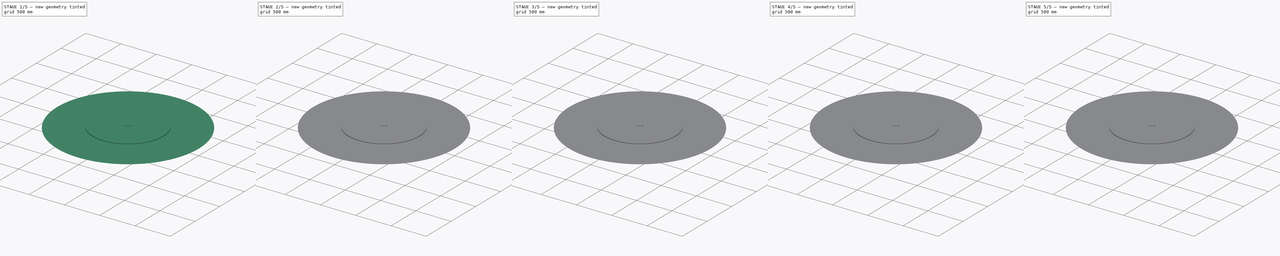
[diagram: build sequence overview — one tinted view per stage of 5, left to right]
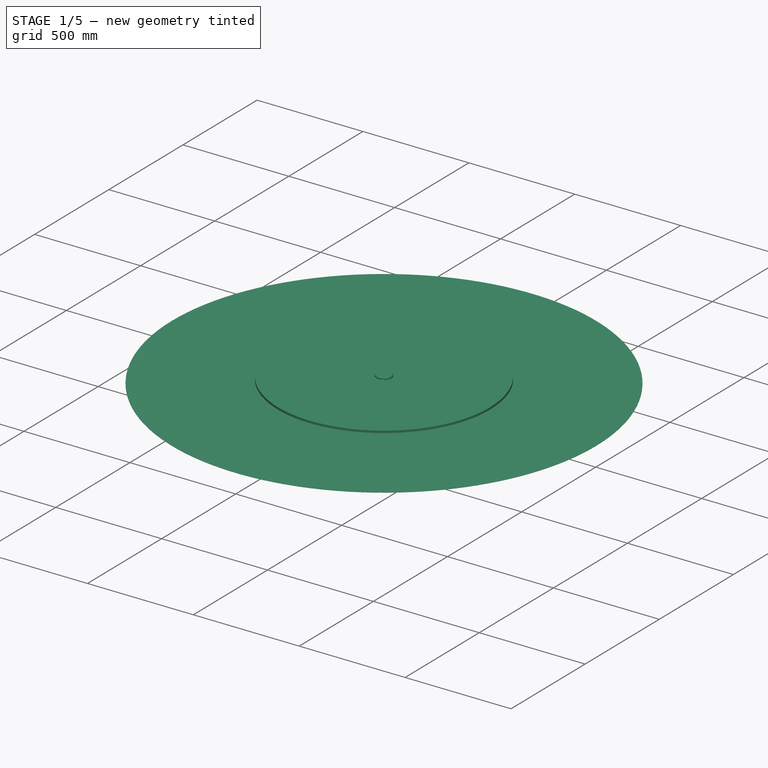
[diagram: stage 1 of 5 — iso view after this stage's code; geometry added in this stage tinted green]
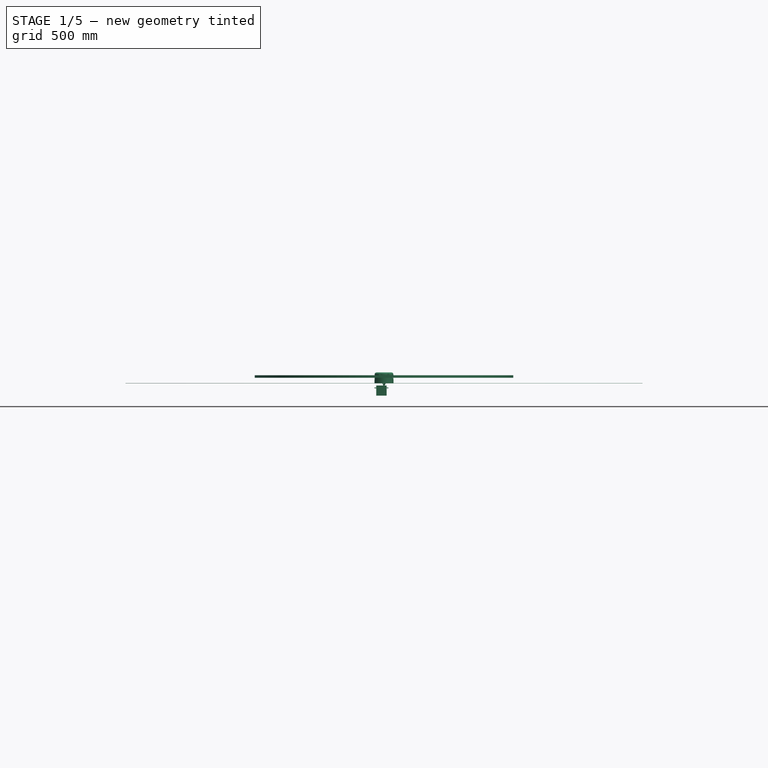
[diagram: stage 1 of 5 — front view after this stage's code; geometry added in this stage tinted green]
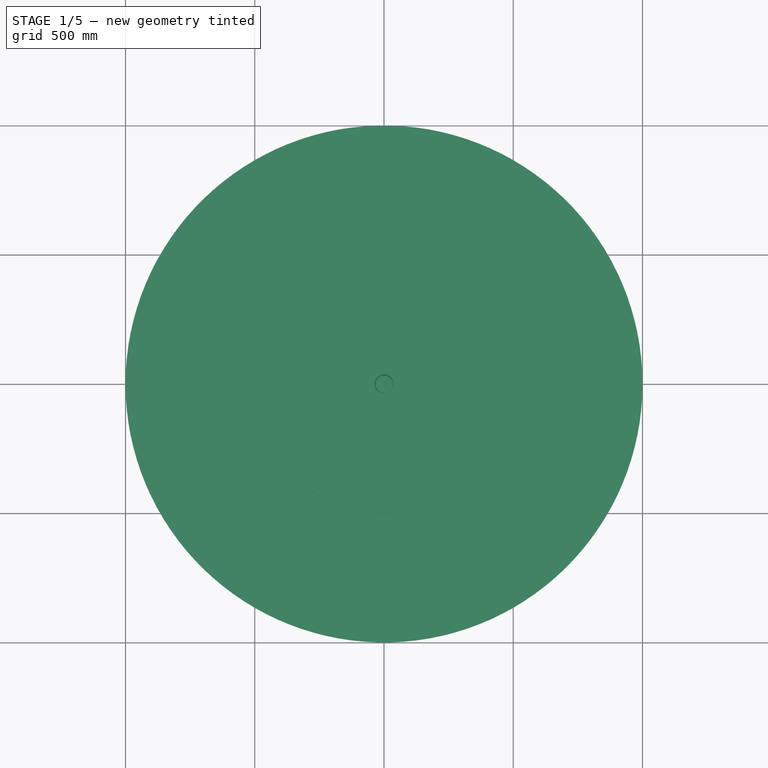
[diagram: stage 1 of 5 — top view after this stage's code; geometry added in this stage tinted green]
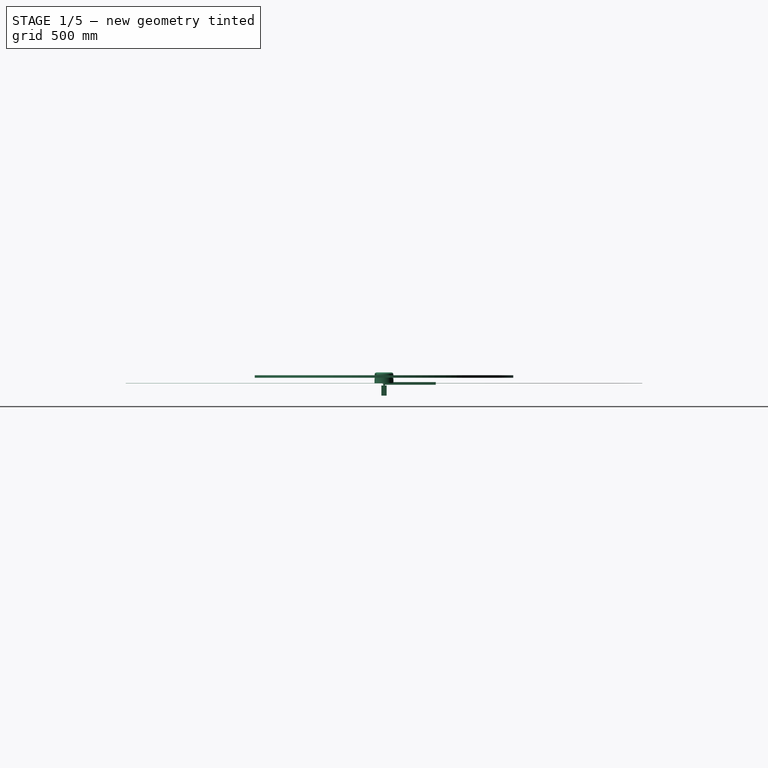
[diagram: stage 1 of 5 — right view after this stage's code; geometry added in this stage tinted green]
FCSTD DOCUMENT  (FreeCAD 2023.731R14555 (Git shallow))
Label: generic-hardware
License: Creative Commons Attribution-NoDerivatives
LicenseURL: http://creativecommons.org/licenses/by-nd/4.0/
objects: Sketcher::SketchObject×80, PartDesign::Body×48, PartDesign::Pad×34, PartDesign::Pocket×26, PartDesign::Revolution×22, App::Part×18, PartDesign::PolarPattern×15, PartDesign::Fillet×15, App::DocumentObjectGroup×10, Part::Feature×9, PartDesign::Chamfer×8, Part::FeaturePython×6, PartDesign::CoordinateSystem×5, PartDesign::ShapeBinder×4, Part::SubShapeBinder×4, PartDesign::MultiTransform×2, App::Link×2, Sketcher::SketchExport×2, PartDesign::Plane×1, PartDesign::Line×1, +4 more types
note: 610 computed .brp shape members not serialized (recipe doc carries the construction recipe); baked Part::Feature solids carry a one-line shape summary decoded from their .brp
EXTERNAL_REF file=../table_2022.FCStd obj=Link005

FEATURE [PartDesign::Body] Body063  label="Ventouse20mm"
  AutoGroupSolids = false
  ClaimAllChildren = false
  ExportMode = 0
  FixShape = 1
  Group = -> [Sketch136,Revolution009,Fillet040]
  InvalidShape = false
  Origin = -> Origin098
  SingleSolid = true
  Tip = -> Fillet040
  TreeRank = 160
  ValidateShape = false
  _ExportChildren = -> [Revolution009,Fillet040]
  _GroupVersion = 1
FEATURE [Sketcher::SketchObject] Sketch086
  ArcFitTolerance = 0
  AttachmentSupport = -> [XZ_Plane049]
  ExternalBSplineMaxDegree = 0
  ExternalBSplineTolerance = 0
  FixShape = 1
  FullyConstrained = true
  InternalTolerance = 1e-06
  InvalidShape = false
  MakeInternals = false
  MapMode = 5
  Placement = pos=(0,0,0) rot=(1,0,0;1.5708rad)
  Support = -> [XZ_Plane049]
  TreeRank = 0
  ValidateShape = false
  sketch-geometry (12):
    g0: LineSegment StartX=-37 StartY=-18.5 StartZ=0 EndX=-37 EndY=-16 EndZ=0
    g1: LineSegment StartX=-37 StartY=-16 StartZ=0 EndX=-30 EndY=-16 EndZ=0
    g2: LineSegment StartX=-30 StartY=-16 StartZ=0 EndX=-30 EndY=-8 EndZ=0
    g3: LineSegment StartX=-30 StartY=-8 StartZ=0 EndX=10 EndY=-8 EndZ=0
    g4: LineSegment StartX=10 StartY=-8 StartZ=0 EndX=10 EndY=-16 EndZ=0
    g5: LineSegment StartX=10 StartY=-16 StartZ=0 EndX=17 EndY=-16 EndZ=0
    g6: LineSegment StartX=17 StartY=-16 StartZ=0 EndX=17 EndY=-18.5 EndZ=0
    g7: LineSegment StartX=17 StartY=-18.5 StartZ=0 EndX=10 EndY=-18.5 EndZ=0
    g8: LineSegment StartX=10 StartY=-18.5 StartZ=0 EndX=10 EndY=-47 EndZ=0
    g9: LineSegment StartX=10 StartY=-47 StartZ=0 EndX=-30 EndY=-47 EndZ=0
    g10: LineSegment StartX=-30 StartY=-47 StartZ=0 EndX=-30 EndY=-18.5 EndZ=0
    g11: LineSegment StartX=-30 StartY=-18.5 StartZ=0 EndX=-37 EndY=-18.5 EndZ=0
  constraints (33):
    c: Vertical(g0)
    c: Coincident(g0,g1)
    c: Horizontal(g1)
    c: Coincident(g1,g2)
    c: Vertical(g2)
    c: Coincident(g2,g3)
    c: Horizontal(g3)
    c: Coincident(g3,g4)
    c: Coincident(g4,g5)
    c: Coincident(g5,g6)
    c: Vertical(g6)
    c: Coincident(g6,g7)
    c: Horizontal(g7)
    c: Coincident(g7,g8)
    c: Vertical(g8)
    c: Coincident(g8,g9)
    c: Horizontal(g9)
    c: Coincident(g9,g10)
    c: Coincident(g10,g11)
    c: Coincident(g11,g0)
    c: Horizontal(g11)
    c: Tangent(g4,g8) = -1.5708
    c: Tangent(g10,g2)
    c: Equal(g1,g5)
    c: Tangent(g1,g5)
    c: Equal(g6,g0)
    c: DistanceX(g-1,g3) = 10
    c: DistanceX(g0,g5) = 54
    c: DistanceX(g10,g7) = 40
    c: DistanceY(g9,g-1) = 47
    c: DistanceY(g3,g-1) = 8
    c: DistanceY(g6,g6) = 2.5
    c: DistanceY(g0,g-1) = 18.5
FEATURE [PartDesign::Pad] Pad050
  AddSubType = 0
  AutoTaperInnerAngle = false
  CheckUpToFaceLimits = true
  ClaimChildren = false
  Direction = (1,1,1)
  Fit = 0
  FitJoin = 0
  FixShape = 1
  InnerFit = 0
  InnerFitJoin = 0
  InvalidShape = false
  Length = 20
  Length2 = 100
  Linearize = true
  Midplane = true
  NewSolid = false
  Placement = pos=(0,0,0) rot=(1,0,0;1.5708rad)
  Profile = -> Sketch086
  Refine = true
  Suppress = false
  TaperInnerAngle = 0
  TaperInnerAngleRev = 0
  TreeRank = 0
  Type = 0
  ValidateShape = false
  _ProfileBasedVersion = 1
FEATURE [Sketcher::SketchObject] Sketch087
  ArcFitTolerance = 0
  AttachmentSupport = -> [XY_Plane049]
  ExternalBSplineMaxDegree = 0
  ExternalBSplineTolerance = 0
  FixShape = 1
  FullyConstrained = true
  InternalTolerance = 1e-06
  InvalidShape = false
  MakeInternals = false
  MapMode = 5
  Support = -> [XY_Plane049]
  TreeRank = 0
  ValidateShape = false
  sketch-geometry (4):
    g0: Circle CenterX=14.5 CenterY=5 CenterZ=0 NormalX=0 NormalY=0 NormalZ=1 AngleXU=0 Radius=2
    g1: Circle CenterX=14.5 CenterY=-5 CenterZ=0 NormalX=0 NormalY=0 NormalZ=1 AngleXU=0 Radius=2
    g2: Circle CenterX=-34.5 CenterY=5 CenterZ=0 NormalX=0 NormalY=0 NormalZ=1 AngleXU=0 Radius=2
    g3: Circle CenterX=-34.5 CenterY=-5 CenterZ=0 NormalX=0 NormalY=0 NormalZ=1 AngleXU=0 Radius=2
  constraints (10):
    c: Equal(g2,g3)
    c: Equal(g3,g1)
    c: Equal(g1,g0)
    c: Symmetric(g0,g1,g-1)
    c: Symmetric(g2,g3,g-1)
    c: Horizontal(g2,g0)
    c: Diameter(g0) = 4
    c: DistanceY(g1,g0) = 10
    c: DistanceX(g2,g0) = 49
    c: DistanceX(g-1,g0) = 14.5
FEATURE [PartDesign::Pocket] Pocket033
  AddSubType = 1
  AutoTaperInnerAngle = false
  BaseFeature = -> Pad050
  CheckUpToFaceLimits = true
  ClaimChildren = false
  Direction = (1,1,1)
  Fit = 0
  FitJoin = 0
  FixShape = 1
  InnerFit = 0
  InnerFitJoin = 0
  InvalidShape = false
  Length = 5
  Length2 = 100
  Linearize = true
  NewSolid = false
  Placement = pos=(0,0,0) rot=(1,0,0;1.5708rad)
  Profile = -> Sketch087
  Refine = true
  Suppress = false
  TaperInnerAngle = 0
  TaperInnerAngleRev = 0
  TreeRank = 0
  Type = 1
  ValidateShape = false
  _ProfileBasedVersion = 1
  _Version = 0
FEATURE [PartDesign::Fillet] Fillet024
  AddSubType = 0
  Base = -> Pocket033 [Edge28,Edge19,Edge4,Edge3]
  BaseFeature = -> Pocket033
  FixShape = 1
  InvalidShape = false
  NewSolid = false
  Placement = pos=(0,0,0) rot=(1,0,0;1.5708rad)
  Radius = 1
  Refine = true
  SupportTransform = false
  Suppress = false
  TreeRank = 0
  UseAllEdges = false
  ValidateShape = false
FEATURE [PartDesign::Body] Body041  label="ServoBody001"
  AutoGroupSolids = false
  ClaimAllChildren = false
  ExportMode = 0
  FixShape = 1
  Group = -> [Sketch086,Pad050,Sketch087,Pocket033,Fillet024]
  InvalidShape = false
  Origin = -> Origin062
  SingleSolid = true
  Tip = -> Fillet024
  TreeRank = 0
  ValidateShape = false
  _ExportChildren = -> [Pad050,Pocket033,Fillet024]
  _GroupVersion = 1
FEATURE [Sketcher::SketchObject] Sketch090
  ArcFitTolerance = 0
  AttachmentOffset = pos=(0,0,-2) rot=(0,0,1;0rad)
  AttachmentSupport = -> [XY_Plane051]
  ExternalBSplineMaxDegree = 0
  ExternalBSplineTolerance = 0
  FixShape = 1
  FullyConstrained = true
  InternalTolerance = 1e-06
  InvalidShape = false
  MakeInternals = false
  MapMode = 5
  Placement = pos=(0,0,-2) rot=(0,0,1;0rad)
  Support = -> [XY_Plane051]
  TreeRank = 0
  ValidateShape = false
  sketch-geometry (1):
    g0: Circle CenterX=0 CenterY=0 CenterZ=0 NormalX=0 NormalY=0 NormalZ=1 AngleXU=0 Radius=3
  constraints (2):
    c: Coincident(g0,g-1)
    c: Diameter(g0) = 6
FEATURE [PartDesign::Pad] Pad053
  AddSubType = 0
  AutoTaperInnerAngle = false
  CheckUpToFaceLimits = true
  ClaimChildren = false
  Direction = (1,1,1)
  Fit = 0
  FitJoin = 0
  FixShape = 1
  InnerFit = 0
  InnerFitJoin = 0
  InvalidShape = false
  Length = 10
  Length2 = 100
  Linearize = true
  NewSolid = false
  Profile = -> Sketch090
  Refine = true
  Reversed = true
  Suppress = false
  TaperInnerAngle = 0
  TaperInnerAngleRev = 0
  TreeRank = 0
  Type = 0
  ValidateShape = false
  _ProfileBasedVersion = 1
FEATURE [PartDesign::Chamfer] Chamfer029
  AddSubType = 0
  Angle = 45
  Base = -> Pad053 [Edge2]
  BaseFeature = -> Pad053
  ChamferType = 0
  FixShape = 1
  FlipDirection = false
  InvalidShape = false
  NewSolid = false
  Refine = true
  Size = 0.5
  Size2 = 1
  SupportTransform = false
  Suppress = false
  TreeRank = 0
  UseAllEdges = false
  ValidateShape = false
FEATURE [PartDesign::Body] Body089  label="ContreRotation001"
  AutoGroupSolids = false
  ClaimAllChildren = false
  ExportMode = 0
  FixShape = 1
  Group = -> [Sketch188,Pad076,Fillet044]
  InvalidShape = false
  Origin = -> Origin175
  Placement = pos=(-26,-2.62261e-06,3.05176e-05) rot=(1,0,0;1.5708rad)
  SingleSolid = true
  Tip = -> Fillet044
  TreeRank = 179
  ValidateShape = false
  _ExportChildren = -> [Pad076,Fillet044]
  _GroupVersion = 1
FEATURE [App::Part] Part038  label="Ensemble-Coulisse"
  ClaimAllChildren = false
  ExportMode = 1
  Group = -> [Body086,Nut]
  Origin = -> Origin177
  TreeRank = 185
  _ExportChildren = -> [Body086,Nut]
  _GroupVersion = 1
FEATURE [Part::Feature] X4  label="Unnamed"
  FixShape = 1
  InvalidShape = false
  TreeRank = 43
  ValidateShape = false
FEATURE [App::Part] Part040  label="YDLidar X4"
  ClaimAllChildren = false
  ExportMode = 1
  Group = -> [X4]
  Origin = -> Origin179
  Placement = pos=(0,0,36.8) rot=(0,0,1;1.5708rad)
  TreeRank = 292
  _ExportChildren = -> [X4]
  _GroupVersion = 1
FEATURE [Image::ImagePlane] ImagePlane
  Placement = pos=(6.5,8e-15,18) rot=(1,0,0;1.5708rad)
  TreeRank = 63
  XSize = 78.8003
  YSize = 45.6564
FEATURE [Sketcher::SketchObject] Sketch189
  ArcFitTolerance = 0
  AttachmentSupport = -> [XY_Plane109]
  ExternalBSplineMaxDegree = 0
  ExternalBSplineTolerance = 0
  FixShape = 1
  FullyConstrained = true
  InternalTolerance = 1e-06
  InvalidShape = false
  MakeInternals = false
  MapMode = 5
  Support = -> [XY_Plane109]
  TreeRank = 58
  ValidateShape = false
  sketch-geometry (10):
    g0: ArcOfCircle CenterX=-14.1 CenterY=14.1 CenterZ=0 NormalX=0 NormalY=0 NormalZ=1 AngleXU=0 Radius=5.195 StartAngle=1.5708 EndAngle=3.14159
    g1: LineSegment StartX=-14.1 StartY=19.295 StartZ=0 EndX=14.1 EndY=19.295 EndZ=0
    g2: ArcOfCircle CenterX=14.1 CenterY=14.1 CenterZ=0 NormalX=0 NormalY=0 NormalZ=1 AngleXU=0 Radius=5.195 StartAngle=6.5809e-12 EndAngle=1.5708
    g3: LineSegment StartX=19.295 StartY=14.1 StartZ=0 EndX=19.295 EndY=-14.1 EndZ=0
    g4: ArcOfCircle CenterX=14.1 CenterY=-14.1 CenterZ=0 NormalX=0 NormalY=0 NormalZ=1 AngleXU=0 Radius=5.195 StartAngle=4.71239 EndAngle=6.28319
    g5: LineSegment StartX=14.1 StartY=-19.295 StartZ=0 EndX=-14.1 EndY=-19.295 EndZ=0
    g6: ArcOfCircle CenterX=-14.1 CenterY=-14.1 CenterZ=0 NormalX=0 NormalY=0 NormalZ=1 AngleXU=0 Radius=5.195 StartAngle=3.14159 EndAngle=4.71239
    g7: LineSegment StartX=-19.295 StartY=-14.1 StartZ=0 EndX=-19.295 EndY=14.1 EndZ=0
    g8: GeomPoint [constr] X=-19.295 Y=19.295 Z=0
    g9: GeomPoint [constr] X=19.295 Y=-19.295 Z=0
  constraints (23):
    c: Tangent(g0,g1) = 1.5708
    c: Tangent(g1,g2) = 1.5708
    c: Tangent(g2,g3) = 1.5708
    c: Tangent(g3,g4) = 1.5708
    c: Tangent(g4,g5) = 1.5708
    c: Tangent(g5,g6) = 1.5708
    c: Tangent(g6,g7) = 1.5708
    c: Tangent(g7,g0) = 1.5708
    c: Horizontal(g1)
    c: Horizontal(g5)
    c: Vertical(g3)
    c: Vertical(g7)
    c: Equal(g0,g2)
    c: Equal(g2,g4)
    c: Equal(g4,g6)
    c: PointOnObject(g8,g1)
    c: PointOnObject(g8,g7)
    c: PointOnObject(g9,g3)
    c: PointOnObject(g9,g5)
    c: Symmetric(g0,g4,g-1)
    c: Equal(g1,g3)
    c: DistanceY(g4,g1) = 38.59
    c: DistanceX(g0,g2) = 28.2
FEATURE [PartDesign::Pad] Pad077
  AddSubType = 0
  AlongSketchNormal = false
  AutoTaperInnerAngle = false
  CheckUpToFaceLimits = true
  ClaimChildren = false
  Direction = (0,0,1)
  Fit = 0
  FitJoin = 0
  FixShape = 1
  InnerFit = 0
  InnerFitJoin = 0
  InvalidShape = false
  Length = 20.7
  Length2 = 100
  Linearize = true
  NewSolid = false
  Profile = -> Sketch189
  Refine = true
  Suppress = false
  TaperAngle = -2
  TaperInnerAngle = 0
  TaperInnerAngleRev = 0
  TreeRank = 59
  Type = 0
  ValidateShape = false
  _ProfileBasedVersion = 1
FEATURE [Sketcher::SketchObject] Sketch190
  ArcFitTolerance = 0
  AttachmentSupport = -> [Pad077]
  ExternalBSplineMaxDegree = 0
  ExternalBSplineTolerance = 0
  FixShape = 1
  FullyConstrained = true
  InternalTolerance = 1e-06
  InvalidShape = false
  MakeInternals = false
  MapMode = 5
  Placement = pos=(0,0,20.7) rot=(0,0,1;0rad)
  Support = -> [Pad077]
  TreeRank = 60
  ValidateShape = false
  sketch-geometry (1):
    g0: Circle CenterX=0 CenterY=0 CenterZ=0 NormalX=0 NormalY=0 NormalZ=1 AngleXU=0 Radius=17.645
  constraints (2):
    c: Coincident(g0,g-1)
    c: Diameter(g0) = 35.29
FEATURE [PartDesign::Pad] Pad078
  AddSubType = 0
  AlongSketchNormal = false
  AutoTaperInnerAngle = false
  BaseFeature = -> Pad077
  CheckUpToFaceLimits = true
  ClaimChildren = false
  Direction = (0,0,1)
  Fit = 0
  FitJoin = 0
  FixShape = 1
  InnerFit = 0
  InnerFitJoin = 0
  InvalidShape = false
  Length = 12.8
  Length2 = 100
  Linearize = true
  NewSolid = false
  Profile = -> Sketch190
  Refine = true
  Suppress = false
  TaperAngle = -1.5
  TaperInnerAngle = 0
  TaperInnerAngleRev = 0
  TreeRank = 61
  Type = 0
  ValidateShape = false
  _ProfileBasedVersion = 1
FEATURE [Sketcher::SketchObject] Sketch191
  ArcFitTolerance = 0
  AttachmentOffset = pos=(0,0,17) rot=(0,0,1;0rad)
  AttachmentSupport = -> [XZ_Plane109]
  ExternalBSplineMaxDegree = 0
  ExternalBSplineTolerance = 0
  FixShape = 1
  FullyConstrained = true
  InternalTolerance = 1e-06
  InvalidShape = false
  MakeInternals = false
  MapMode = 5
  Placement = pos=(0,-17,-3.8e-15) rot=(1,0,0;1.5708rad)
  Support = -> [XZ_Plane109]
  TreeRank = 62
  ValidateShape = false
  sketch-geometry (5):
    g0: LineSegment StartX=-5 StartY=6.3 StartZ=0 EndX=-5 EndY=1.3 EndZ=0
    g1: LineSegment StartX=-5 StartY=1.3 StartZ=0 EndX=5 EndY=1.3 EndZ=0
    g2: LineSegment StartX=5 StartY=1.3 StartZ=0 EndX=5 EndY=6.3 EndZ=0
    g3: LineSegment StartX=5 StartY=6.3 StartZ=0 EndX=-5 EndY=6.3 EndZ=0
    g4: GeomPoint [constr] X=1.3758e-12 Y=3.8 Z=0
  constraints (13):
    c: Coincident(g0,g1)
    c: Coincident(g1,g2)
    c: Coincident(g2,g3)
    c: Coincident(g3,g0)
    c: Horizontal(g1)
    c: Horizontal(g3)
    c: Vertical(g0)
    c: Vertical(g2)
    c: Symmetric(g1,g0,g4)
    c: PointOnObject(g4,g-2)
    c: DistanceX(g3,g3) = 10
    c: DistanceY(g2,g2) = 5
    c: DistanceY(g-1,g4) = 3.8
FEATURE [PartDesign::Pocket] Pocket061
  AddSubType = 1
  AutoTaperInnerAngle = false
  BaseFeature = -> Pad078
  CheckUpToFaceLimits = true
  ClaimChildren = false
  Direction = (1,1,1)
  Fit = 0
  FitJoin = 0
  FixShape = 1
  InnerFit = 0
  InnerFitJoin = 0
  InvalidShape = false
  Length = 5
  Length2 = 100
  Linearize = true
  NewSolid = false
  Profile = -> Sketch191
  Refine = true
  Reversed = true
  Suppress = false
  TaperInnerAngle = 0
  TaperInnerAngleRev = 0
  TreeRank = 64
  Type = 1
  ValidateShape = false
  _ProfileBasedVersion = 1
  _Version = 1
FEATURE [Sketcher::SketchObject] Sketch192
  ArcFitTolerance = 0
  AttachmentSupport = -> [Pocket061]
  ExternalBSplineMaxDegree = 0
  ExternalBSplineTolerance = 0
  FixShape = 1
  FullyConstrained = false
  InternalTolerance = 1e-06
  InvalidShape = false
  MakeInternals = false
  MapMode = 5
  Placement = pos=(0,-17,0) rot=(1,0,0;1.5708rad)
  Support = -> [Pocket061]
  TreeRank = 65
  ValidateShape = false
  sketch-geometry (8):
    g0: Circle CenterX=-2.295 CenterY=3.8 CenterZ=0 NormalX=0 NormalY=0 NormalZ=1 AngleXU=0 Radius=0.765
    g1: Circle CenterX=-0.765 CenterY=3.8 CenterZ=0 NormalX=0 NormalY=0 NormalZ=1 AngleXU=0 Radius=0.765
    g2: Circle CenterX=0.765 CenterY=3.8 CenterZ=0 NormalX=0 NormalY=0 NormalZ=1 AngleXU=0 Radius=0.765
    g3: Circle CenterX=2.295 CenterY=3.8 CenterZ=0 NormalX=0 NormalY=0 NormalZ=1 AngleXU=0 Radius=0.765
    g4: LineSegment [constr] StartX=-2.295 StartY=3.8 StartZ=0 EndX=-0.765 EndY=3.8 EndZ=0
    g5: LineSegment [constr] StartX=-0.765 StartY=3.8 StartZ=0 EndX=0.765 EndY=3.8 EndZ=0
    g6: LineSegment [constr] StartX=0.765 StartY=3.8 StartZ=0 EndX=2.295 EndY=3.8 EndZ=0
    g7: GeomPoint [constr] X=1.8986e-12 Y=3.8 Z=0
  constraints (16):
    c: Horizontal(g3,g2)
    c: Symmetric(g1,g2,g-2)
    c: Symmetric(g0,g3,g-2)
    c: Coincident(g4,g0)
    c: Coincident(g4,g1)
    c: Coincident(g5,g1)
    c: Coincident(g5,g2)
    c: Coincident(g6,g2)
    c: Coincident(g6,g3)
    c: Equal(g6,g5)
    c: PointOnObject(g7,g5)
    c: Equal(g0,g1)
    c: Equal(g1,g2)
    c: Equal(g2,g3)
    c: Tangent(g3,g2)
    c: DistanceX(g4,g4) = 1.53
FEATURE [PartDesign::Pad] Pad079
  AddSubType = 0
  AlongSketchNormal = false
  AutoTaperInnerAngle = false
  BaseFeature = -> Pocket061
  CheckUpToFaceLimits = true
  ClaimChildren = false
  Direction = (0,-1,2e-16)
  Fit = 0
  FitJoin = 0
  FixShape = 1
  InnerFit = 0
  InnerFitJoin = 0
  InvalidShape = false
  Length = 10
  Length2 = 100
  Linearize = true
  NewSolid = false
  Profile = -> Sketch192
  Refine = true
  Suppress = false
  TaperInnerAngle = 0
  TaperInnerAngleRev = 0
  TreeRank = 66
  Type = 0
  ValidateShape = false
  _ProfileBasedVersion = 1
FEATURE [PartDesign::Fillet] Fillet045
  AddSubType = 0
  Base = -> Pad079 [Edge36]
  BaseFeature = -> Pad079
  FixShape = 1
  InvalidShape = false
  NewSolid = false
  Radius = 1
  Refine = true
  SupportTransform = false
  Suppress = false
  TreeRank = 67
  UseAllEdges = false
  ValidateShape = false
FEATURE [PartDesign::Fillet] Fillet046
  AddSubType = 0
  Base = -> Fillet045 [Edge13]
  BaseFeature = -> Fillet045
  FixShape = 1
  InvalidShape = false
  NewSolid = false
  Radius = 1
  Refine = true
  SupportTransform = false
  Suppress = false
  TreeRank = 68
  UseAllEdges = false
  ValidateShape = false
FEATURE [Sketcher::SketchObject] Sketch195
  ArcFitTolerance = 0
  AttachmentOffset = pos=(0,0,21.7) rot=(0,0,1;0rad)
  AttachmentSupport = -> [XY_Plane110]
  ExternalBSplineMaxDegree = 0
  ExternalBSplineTolerance = 0
  FixShape = 1
  FullyConstrained = true
  InternalTolerance = 1e-06
  InvalidShape = false
  MakeInternals = false
  MapMode = 5
  Placement = pos=(0,0,21.7) rot=(0,0,1;0rad)
  Support = -> [XY_Plane110]
  TreeRank = 81
  ValidateShape = false
  sketch-geometry (2):
    g0: Circle CenterX=0 CenterY=0 CenterZ=0 NormalX=0 NormalY=0 NormalZ=1 AngleXU=0 Radius=20
    g1: Circle CenterX=0 CenterY=0 CenterZ=0 NormalX=0 NormalY=0 NormalZ=1 AngleXU=0 Radius=500
  constraints (4):
    c: Coincident(g0,g-1)
    c: Coincident(g1,g0)
    c: Diameter(g1) = 1000
    c: Diameter(g0) = 40
FEATURE [PartDesign::Pad] Pad013
  AddSubType = 0
  AlongSketchNormal = false
  AutoTaperInnerAngle = false
  CheckUpToFaceLimits = true
  ClaimChildren = false
  Direction = (0,0,1)
  Fit = 0
  FitJoin = 0
  FixShape = 1
  InnerFit = 0
  InnerFitJoin = 0
  InvalidShape = false
  Length = 10
  Length2 = 100
  Linearize = true
  NewSolid = false
  Profile = -> Sketch195
  Refine = true
  Suppress = false
  TaperInnerAngle = 0
  TaperInnerAngleRev = 0
  TreeRank = 82
  Type = 0
  ValidateShape = false
  _ProfileBasedVersion = 1
FEATURE [PartDesign::Body] Body091  label="OpticalWindow"
  AutoGroupSolids = false
  ClaimAllChildren = false
  ExportMode = 0
  FixShape = 1
  Group = -> [Sketch195,Pad013]
  InvalidShape = false
  Origin = -> Origin182
  SingleSolid = true
  Tip = -> Pad013
  TreeRank = 80
  ValidateShape = false
  _ExportChildren = -> [Pad013]
  _GroupVersion = 1
FEATURE [Sketcher::SketchObject] Sketch196
  ArcFitTolerance = 0
  AttachmentSupport = -> [XZ_Plane111]
  ExternalBSplineMaxDegree = 0
  ExternalBSplineTolerance = 0
  FixShape = 1
  FullyConstrained = true
  InternalTolerance = 1e-06
  InvalidShape = false
  MakeInternals = false
  MapMode = 5
  Placement = pos=(0,0,0) rot=(1,0,0;1.5708rad)
  Support = -> [XZ_Plane111]
  TreeRank = 121
  ValidateShape = false
  sketch-geometry (8):
    g0: LineSegment StartX=0 StartY=0 StartZ=0 EndX=36.85 EndY=0 EndZ=0
    g1: LineSegment StartX=36.85 StartY=0 StartZ=0 EndX=36.3694 EndY=21.5 EndZ=0
    g2: LineSegment StartX=36.3694 StartY=21.5 StartZ=0 EndX=34.3694 EndY=21.5 EndZ=0
    g3: LineSegment StartX=34.3694 StartY=21.5 StartZ=0 EndX=34.3694 EndY=22.5 EndZ=0
    g4: LineSegment StartX=34.3694 StartY=22.5 StartZ=0 EndX=0 EndY=22.5 EndZ=0
    g5: LineSegment StartX=0 StartY=22.5 StartZ=0 EndX=0 EndY=0 EndZ=0
    g6: LineSegment [constr] StartX=36.3694 StartY=21.5 StartZ=0 EndX=35.9 EndY=42.5 EndZ=0
    g7: LineSegment [constr] StartX=35.9 StartY=42.5 StartZ=0 EndX=0 EndY=42.5 EndZ=0
  constraints (23):
    c: Coincident(g-1,g0)
    c: PointOnObject(g0,g-1)
    c: Coincident(g0,g1)
    c: Coincident(g1,g2)
    c: Horizontal(g2)
    c: Coincident(g2,g3)
    c: Vertical(g3)
    c: Coincident(g3,g4)
    c: Horizontal(g4)
    c: Coincident(g4,g5)
    c: Coincident(g5,g0)
    c: Vertical(g5)
    c: DistanceX(g0,g0) = 36.85
    c: Coincident(g6,g1)
    c: Coincident(g7,g6)
    c: Horizontal(g7)
    c: DistanceY(g7) = 42.5
    c: Parallel(g6,g1)
    c: DistanceX(g7,g7) = 35.9
    c: DistanceY(g1) = 21.5
    c: DistanceY(g3,g3) = 1
    c: DistanceX(g2,g2) = 2
    c: PointOnObject(g7,g-2)
FEATURE [PartDesign::Revolution] Revolution017
  AddSubType = 0
  Angle = 360
  Axis = (0,-2e-16,1)
  Base = (0,0,0)
  ClaimChildren = false
  Fit = 0
  FitJoin = 0
  FixShape = 1
  InnerFit = 0
  InnerFitJoin = 0
  InvalidShape = false
  NewSolid = false
  Placement = pos=(0,0,0) rot=(1,0,0;1.5708rad)
  Profile = -> Sketch196
  ReferenceAxis = -> Sketch196 [V_Axis]
  Refine = true
  Reversed = true
  Suppress = false
  TreeRank = 0
  ValidateShape = false
  _ProfileBasedVersion = 1
FEATURE [PartDesign::Body] Body092  label="Base G2"
  AutoGroupSolids = false
  ClaimAllChildren = false
  ExportMode = 0
  FixShape = 1
  Group = -> [Sketch196,Revolution017]
  InvalidShape = false
  Origin = -> Origin183
  SingleSolid = true
  Tip = -> Revolution017
  TreeRank = 0
  ValidateShape = false
  _ExportChildren = -> [Revolution017]
  _GroupVersion = 1
FEATURE [PartDesign::SubShapeBinder] Binder  label="Binder(Sketch004)"
  BindCopyOnChange = 0
  BindMode = 0
  ClaimChildren = false
  Context = -> Group011 [Part002.Body093.Binder.]
  EdgeTolerance = 1e-06
  FillStyle = 0
  FixShape = 1
  Fuse = false
  InvalidShape = false
  MakeFace = true
  MergeEdges = true
  OffsetFill = false
  OffsetIntersection = false
  OffsetJoinType = 0
  OffsetOpenResult = false
  Outline = false
  PartialLoad = false
  Refine = true
  Relative = true
  SplitEdges = false
  Support = -> [Body092[Sketch196.]]
  TightBound = false
  TreeRank = 0
  ValidateShape = false
  _Version = 8
FEATURE [Sketcher::SketchObject] Sketch197
  ArcFitTolerance = 0
  AttachmentSupport = -> [XZ_Plane112]
  ExternalBSplineMaxDegree = 0
  ExternalBSplineTolerance = 0
  FixShape = 1
  FullyConstrained = false
  InternalTolerance = 1e-06
  InvalidShape = false
  MakeInternals = false
  MapMode = 5
  Placement = pos=(0,0,0) rot=(1,0,0;1.5708rad)
  Support = -> [XZ_Plane112]
  TreeRank = 128
  ValidateShape = false
  sketch-geometry (4):
    g0: LineSegment StartX=0 StartY=22.5 StartZ=0 EndX=36.3471 EndY=22.5 EndZ=0
    g1: LineSegment StartX=36.3471 StartY=22.5 StartZ=0 EndX=35.9 EndY=42.5 EndZ=0
    g2: LineSegment StartX=35.9 StartY=42.5 StartZ=0 EndX=0 EndY=42.5 EndZ=0
    g3: LineSegment StartX=0 StartY=42.5 StartZ=0 EndX=0 EndY=22.5 EndZ=0
  constraints (8):
    c: Horizontal(g0)
    c: Coincident(g0,g1)
    c: Coincident(g1,g2)
    c: PointOnObject(g2,g-2)
    c: Horizontal(g2)
    c: Coincident(g2,g3)
    c: Coincident(g3,g0)
    c: DistanceY(g2) = 42.5
FEATURE [PartDesign::Revolution] Revolution001
  AddSubType = 0
  Angle = 360
  Axis = (0,-2e-16,1)
  Base = (0,0,0)
  ClaimChildren = false
  Fit = 0
  FitJoin = 0
  FixShape = 1
  InnerFit = 0
  InnerFitJoin = 0
  InvalidShape = false
  NewSolid = false
  Placement = pos=(0,0,0) rot=(1,0,0;1.5708rad)
  Profile = -> Sketch197
  ReferenceAxis = -> Sketch197 [V_Axis]
  Refine = true
  Reversed = true
  Suppress = false
  TreeRank = 0
  ValidateShape = false
  _ProfileBasedVersion = 1
FEATURE [PartDesign::Fillet] Fillet047
  AddSubType = 0
  Base = -> Revolution001 [Edge2]
  BaseFeature = -> Revolution001
  FixShape = 1
  InvalidShape = false
  NewSolid = false
  Placement = pos=(0,0,0) rot=(1,0,0;1.5708rad)
  Radius = 7
  Refine = true
  SupportTransform = false
  Suppress = false
  TreeRank = 0
  UseAllEdges = false
  ValidateShape = false
FEATURE [Sketcher::SketchObject] Sketch198
  ArcFitTolerance = 0
  AttachmentOffset = pos=(0,0,25) rot=(0,0,1;0rad)
  AttachmentSupport = -> [XZ_Plane112]
  ExternalBSplineMaxDegree = 0
  ExternalBSplineTolerance = 0
  FixShape = 1
  FullyConstrained = false
  InternalTolerance = 1e-06
  InvalidShape = false
  MakeInternals = false
  MapMode = 5
  Placement = pos=(0,-25,-5.6e-15) rot=(1,0,0;1.5708rad)
  Support = -> [XZ_Plane112]
  TreeRank = 129
  ValidateShape = false
  sketch-geometry (2):
    g0: Circle CenterX=-16.1575 CenterY=33.1 CenterZ=0 NormalX=0 NormalY=0 NormalZ=1 AngleXU=0 Radius=4.03782
    g1: Circle CenterX=16.1575 CenterY=33.1 CenterZ=0 NormalX=0 NormalY=0 NormalZ=1 AngleXU=0 Radius=4.91935
  constraints (2):
    c: DistanceY(g0) = 33.1
    c: Symmetric(g1,g0,g-2)
FEATURE [PartDesign::Pocket] Pocket063
  AddSubType = 1
  AutoTaperInnerAngle = false
  BaseFeature = -> Fillet047
  CheckUpToFaceLimits = true
  ClaimChildren = false
  Direction = (1,1,1)
  Fit = 0
  FitJoin = 0
  FixShape = 1
  InnerFit = 0
  InnerFitJoin = 0
  InvalidShape = false
  Length = 5
  Length2 = 100
  Linearize = true
  NewSolid = false
  Placement = pos=(0,0,0) rot=(1,0,0;1.5708rad)
  Profile = -> Sketch198
  Refine = true
  Reversed = true
  Suppress = false
  TaperInnerAngle = 0
  TaperInnerAngleRev = 0
  TreeRank = 0
  Type = 1
  ValidateShape = false
  _ProfileBasedVersion = 1
  _Version = 1
FEATURE [PartDesign::Body] Body093  label="Head G2"
  AutoGroupSolids = false
  ClaimAllChildren = false
  ExportMode = 0
  FixShape = 1
  Group = -> [Binder,Sketch197,Revolution001,Fillet047,Sketch198,Pocket063]
  InvalidShape = false
  Origin = -> Origin007
  SingleSolid = true
  Tip = -> Pocket063
  TreeRank = 0
  ValidateShape = false
  _ExportChildren = -> [Binder,Revolution001,Fillet047,Pocket063]
  _GroupVersion = 1
FEATURE [Sketcher::SketchObject] Sketch199
  ArcFitTolerance = 0
  AttachmentSupport = -> [XY_Plane113]
  ExternalBSplineMaxDegree = 0
  ExternalBSplineTolerance = 0
  FixShape = 1
  FullyConstrained = true
  InternalTolerance = 1e-06
  InvalidShape = false
  MakeInternals = false
  MapMode = 5
  Support = -> [XY_Plane113]
  TreeRank = 136
  ValidateShape = false
  sketch-geometry (1):
    g0: Circle CenterX=0 CenterY=0 CenterZ=0 NormalX=0 NormalY=0 NormalZ=1 AngleXU=0 Radius=1000
  constraints (2):
    c: Coincident(g0,g-1)
    c: Diameter(g0) = 2000
FEATURE [PartDesign::Pad] Pad080
  AddSubType = 0
  AlongSketchNormal = false
  AutoTaperInnerAngle = false
  CheckUpToFaceLimits = true
  ClaimChildren = false
  Direction = (0,0,1)
  Fit = 0
  FitJoin = 0
  FixShape = 1
  InnerFit = 0
  InnerFitJoin = 0
  InvalidShape = false
  Length = 1
  Length2 = 100
  Linearize = true
  NewSolid = false
  Profile = -> Sketch199
  Refine = true
  Suppress = false
  TaperInnerAngle = 0
  TaperInnerAngleRev = 0
  TreeRank = 12
  Type = 0
  ValidateShape = false
  _ProfileBasedVersion = 1
FEATURE [PartDesign::Body] Body094  label="Field"
  AutoGroupSolids = false
  ClaimAllChildren = false
  ExportMode = 0
  FixShape = 1
  Group = -> [Sketch199,Pad080]
  InvalidShape = false
  Origin = -> Origin184
  Placement = pos=(0,0,32.5) rot=(0,0,1;0rad)
  SingleSolid = true
  Tip = -> Pad080
  TreeRank = 10
  ValidateShape = false
  _ExportChildren = -> [Pad080]
  _GroupVersion = 1
FEATURE [App::Part] Part002  label="YDLidar G2"
  ClaimAllChildren = false
  ExportMode = 1
  Group = -> [Body092,Body093,Body094]
  Origin = -> Origin005
  Placement = pos=(0,-3.57628e-07,3) rot=(0,0,1;0rad)
  TreeRank = 294
  _ExportChildren = -> [Body092,Body093,Body094]
  _GroupVersion = 1
FEATURE [Part::Feature] Part__Feature  label="Lidar Head v1"
  FixShape = 1
  InvalidShape = false
  Placement = pos=(-1.3e-15,0,12) rot=(0,0,1;0rad)
  TreeRank = 282
  ValidateShape = false
  shape: bbox 73.68 x 73.68 x 22 mm, 52 faces, 5 solids (baked)
FEATURE [Part::Feature] Part__Feature001  label="LidarBody v5"
  FixShape = 1
  InvalidShape = false
  TreeRank = 283
  ValidateShape = false
  shape: bbox 100 x 73 x 10 mm, 56 faces (baked)
FEATURE [Part::Feature] Part__Feature002  label="Lidar motor v4"
  FixShape = 1
  InvalidShape = false
  Placement = pos=(50,0,-16) rot=(0,0,1;0rad)
  TreeRank = 284
  ValidateShape = false
  shape: bbox 35.72 x 35.72 x 29.5 mm, 39 faces, 3 solids (baked)
FEATURE [Part::Feature] Part__Feature003  label="Entretoise v2"
  FixShape = 1
  InvalidShape = false
  Placement = pos=(-20.1616,-31.3894,4) rot=(1,0,0;3.14159rad)
  TreeRank = 285
  ValidateShape = false
  shape: bbox 5 x 5.774 x 40.33 mm, 99 faces (baked)
FEATURE [Part::Feature] Part__Feature004  label="Entretoise v003"
  FixShape = 1
  InvalidShape = false
  Placement = pos=(37.383,-24.1355,4) rot=(1,0,0;3.14159rad)
  TreeRank = 286
  ValidateShape = false
  shape: bbox 5 x 5.774 x 40.33 mm, 99 faces (baked)
FEATURE [Part::Feature] Part__Feature005  label="Entretoise v004"
  FixShape = 1
  InvalidShape = false
  Placement = pos=(-20.1616,31.6106,4) rot=(1,0,0;3.14159rad)
  TreeRank = 287
  ValidateShape = false
  shape: bbox 5 x 5.774 x 40.33 mm, 99 faces (baked)
FEATURE [Part::Feature] Part__Feature006  label="Entretoise v005"
  FixShape = 1
  InvalidShape = false
  Placement = pos=(37.383,24.3568,4) rot=(1,0,0;3.14159rad)
  TreeRank = 288
  ValidateShape = false
  shape: bbox 5 x 5.774 x 40.33 mm, 99 faces (baked)
FEATURE [App::Part] Lidar_MB1r2t_v5  label="MB1r2t"
  ClaimAllChildren = false
  ExportMode = 1
  Group = -> [Part__Feature,Part__Feature001,Part__Feature002,Part__Feature003,Part__Feature004,Part__Feature005,Part__Feature006]
  Origin = -> Origin026
  Placement = pos=(-11.2583,-6.5,29) rot=(0,0,1;0.523599rad)
  TreeRank = 295
  _ExportChildren = -> [Part__Feature,Part__Feature001,Part__Feature002,Part__Feature003,Part__Feature004,Part__Feature005,Part__Feature006]
  _GroupVersion = 1
FEATURE [App::Link] Link  label="Link(ServoMG996R001)"
  AutoLinkLabel = true
  AutoPlacement = true
  LinkPlacement = pos=(0,0,0) rot=(1,0,0;1.5708rad)
  LinkedObject = -> Part015
  Placement = pos=(0,0,0) rot=(1,0,0;1.5708rad)
  ShowElement = false
  SyncGroupVisibility = false
  TreeRank = 302
  _LinkVersion = 1
FEATURE [Sketcher::SketchObject] Sketch200
  ArcFitTolerance = 0
  AttachmentSupport = -> [XZ_Plane115]
  ExternalBSplineMaxDegree = 0
  ExternalBSplineTolerance = 0
  FixShape = 1
  FullyConstrained = true
  InternalTolerance = 1e-06
  InvalidShape = false
  MakeInternals = false
  MapMode = 5
  Placement = pos=(0,0,0) rot=(1,0,0;1.5708rad)
  Support = -> [XZ_Plane115]
  TreeRank = 0
  ValidateShape = false
  sketch-geometry (14):
    g0: ArcOfCircle CenterX=0 CenterY=0 CenterZ=0 NormalX=0 NormalY=0 NormalZ=1 AngleXU=0 Radius=1.25 StartAngle=0 EndAngle=1.5708
    g1: LineSegment StartX=1e-16 StartY=1.25 StartZ=0 EndX=0 EndY=2 EndZ=0
    g2: LineSegment StartX=0 StartY=2 StartZ=0 EndX=1 EndY=2 EndZ=0
    g3: LineSegment [constr] StartX=0 StartY=0 StartZ=0 EndX=5 EndY=5 EndZ=0
    g4: LineSegment StartX=1 StartY=2 StartZ=0 EndX=3.3 EndY=4 EndZ=0
    g5: LineSegment StartX=3.3 StartY=4 StartZ=0 EndX=1.5 EndY=4 EndZ=0
    g6: LineSegment StartX=1.5 StartY=4 StartZ=0 EndX=1.5 EndY=5 EndZ=0
    g7: LineSegment StartX=1.5 StartY=5 StartZ=0 EndX=5 EndY=5 EndZ=0
    g8: LineSegment StartX=5 StartY=5 StartZ=0 EndX=5 EndY=1.5 EndZ=0
    g9: LineSegment StartX=5 StartY=1.5 StartZ=0 EndX=4 EndY=1.5 EndZ=0
    g10: LineSegment StartX=4 StartY=1.5 StartZ=0 EndX=4 EndY=3.3 EndZ=0
    g11: LineSegment StartX=4 StartY=3.3 StartZ=0 EndX=2 EndY=1 EndZ=0
    g12: LineSegment StartX=2 StartY=1 StartZ=0 EndX=2 EndY=0 EndZ=0
    g13: LineSegment StartX=2 StartY=0 StartZ=0 EndX=1.25 EndY=0 EndZ=0
  constraints (41):
    c: Coincident(g0,g-1)
    c: PointOnObject(g0,g-1)
    c: PointOnObject(g0,g-2)
    c: Coincident(g1,g0)
    c: PointOnObject(g1,g-2)
    c: Coincident(g2,g1)
    c: Horizontal(g2)
    c: Coincident(g3,g0)
    c: Angle(g-1,g3) = 0.785398
    c: DistanceX(g3) = 5
    c: Diameter(g0) = 2.5
    c: DistanceX(g2) = 1
    c: Coincident(g4,g2)
    c: Coincident(g5,g4)
    c: Horizontal(g5)
    c: Coincident(g6,g5)
    c: Vertical(g6)
    c: Coincident(g7,g6)
    c: Coincident(g7,g3)
    c: Coincident(g8,g7)
    c: Vertical(g8)
    c: Coincident(g9,g8)
    c: Coincident(g10,g9)
    c: Vertical(g10)
    c: Coincident(g11,g10)
    c: Coincident(g12,g11)
    c: PointOnObject(g12,g-1)
    c: Vertical(g12)
    c: Coincident(g13,g12)
    c: Coincident(g13,g0)
    c: Equal(g12,g2)
    c: Equal(g13,g1)
    c: Horizontal(g7)
    c: Horizontal(g9)
    c: Equal(g6,g9)
    c: Equal(g11,g4)
    c: Equal(g5,g10)
    c: DistanceY(g2,g6) = 3
    c: DistanceX(g6) = 1.5
    c: DistanceY(g6,g6) = 1
    c: DistanceX(g5,g5) = 1.8
FEATURE [PartDesign::Pad] Pad081
  AddSubType = 0
  AlongSketchNormal = false
  AutoTaperInnerAngle = false
  CheckUpToFaceLimits = true
  ClaimChildren = false
  Direction = (0,-1,-2e-16)
  Fit = 0
  FitJoin = 0
  FixShape = 1
  InnerFit = 0
  InnerFitJoin = 0
  InvalidShape = false
  Length = 150
  Length2 = 100
  NewSolid = false
  Profile = -> Sketch200
  Refine = true
  Reversed = true
  Suppress = false
  TaperInnerAngle = 0
  TaperInnerAngleRev = 0
  TreeRank = 0
  Type = 0
  ValidateShape = false
  _ProfileBasedVersion = 0
FEATURE [PartDesign::PolarPattern] PolarPattern013
  AddSubType = 0
  Angle = 360
  Axis = -> Y_Axis115
  BaseFeature = -> Pad081
  CopyShape = false
  FixShape = 1
  InvalidShape = false
  NewSolid = false
  Occurrences = 4
  OriginalSubs = -> [Pad081]
  Originals = -> [Pad081]
  ParallelTransform = true
  Refine = true
  SubTransform = true
  Suppress = false
  TreeRank = 0
  ValidateShape = false
  _Version = 0
FEATURE [PartDesign::CoordinateSystem] Local_CS003
  AttacherType = Attacher::AttachEngine3D
  AttachmentSupport = -> [PolarPattern013]
  FixShape = 1
  InvalidShape = false
  MapMode = 11
  Placement = pos=(3.33e-14,150,-6.66e-14) rot=(0.57735,0.57735,-0.57735;2.0944rad)
  Support = -> [PolarPattern013]
  TreeRank = 0
  ValidateShape = false
FEATURE [PartDesign::Body] Body095  label="MB_150"
  AutoGroupSolids = false
  ClaimAllChildren = false
  ExportMode = 0
  FixShape = 1
  Group = -> [Sketch200,Pad081,PolarPattern013,Local_CS003]
  InvalidShape = false
  Origin = -> Origin185
  SingleSolid = true
  Tip = -> PolarPattern013
  TreeRank = 315
  ValidateShape = false
  _ExportChildren = -> [Pad081,PolarPattern013,Local_CS003]
  _GroupVersion = 1
FEATURE [Sketcher::SketchObject] Sketch201
  ArcFitTolerance = 0
  AttachmentSupport = -> [XZ_Plane116]
  ExternalBSplineMaxDegree = 0
  ExternalBSplineTolerance = 0
  FixShape = 1
  FullyConstrained = true
  InternalTolerance = 1e-06
  InvalidShape = false
  MakeInternals = false
  MapMode = 5
  Placement = pos=(0,0,0) rot=(1,0,0;1.5708rad)
  Support = -> [XZ_Plane116]
  TreeRank = 0
  ValidateShape = false
  sketch-geometry (14):
    g0: ArcOfCircle CenterX=0 CenterY=0 CenterZ=0 NormalX=0 NormalY=0 NormalZ=1 AngleXU=0 Radius=1.25 StartAngle=0 EndAngle=1.5708
    g1: LineSegment StartX=1e-16 StartY=1.25 StartZ=0 EndX=0 EndY=2 EndZ=0
    g2: LineSegment StartX=0 StartY=2 StartZ=0 EndX=1 EndY=2 EndZ=0
    g3: LineSegment [constr] StartX=0 StartY=0 StartZ=0 EndX=5 EndY=5 EndZ=0
    g4: LineSegment StartX=1 StartY=2 StartZ=0 EndX=3.3 EndY=4 EndZ=0
    g5: LineSegment StartX=3.3 StartY=4 StartZ=0 EndX=1.5 EndY=4 EndZ=0
    g6: LineSegment StartX=1.5 StartY=4 StartZ=0 EndX=1.5 EndY=5 EndZ=0
    g7: LineSegment StartX=1.5 StartY=5 StartZ=0 EndX=5 EndY=5 EndZ=0
    g8: LineSegment StartX=5 StartY=5 StartZ=0 EndX=5 EndY=1.5 EndZ=0
    g9: LineSegment StartX=5 StartY=1.5 StartZ=0 EndX=4 EndY=1.5 EndZ=0
    g10: LineSegment StartX=4 StartY=1.5 StartZ=0 EndX=4 EndY=3.3 EndZ=0
    g11: LineSegment StartX=4 StartY=3.3 StartZ=0 EndX=2 EndY=1 EndZ=0
    g12: LineSegment StartX=2 StartY=1 StartZ=0 EndX=2 EndY=0 EndZ=0
    g13: LineSegment StartX=2 StartY=0 StartZ=0 EndX=1.25 EndY=0 EndZ=0
  constraints (41):
    c: Coincident(g0,g-1)
    c: PointOnObject(g0,g-1)
    c: PointOnObject(g0,g-2)
    c: Coincident(g1,g0)
    c: PointOnObject(g1,g-2)
    c: Coincident(g2,g1)
    c: Horizontal(g2)
    c: Coincident(g3,g0)
    c: Angle(g-1,g3) = 0.785398
    c: DistanceX(g3) = 5
    c: Diameter(g0) = 2.5
    c: DistanceX(g2) = 1
    c: Coincident(g4,g2)
    c: Coincident(g5,g4)
    c: Horizontal(g5)
    c: Coincident(g6,g5)
    c: Vertical(g6)
    c: Coincident(g7,g6)
    c: Coincident(g7,g3)
    c: Coincident(g8,g7)
    c: Vertical(g8)
    c: Coincident(g9,g8)
    c: Coincident(g10,g9)
    c: Vertical(g10)
    c: Coincident(g11,g10)
    c: Coincident(g12,g11)
    c: PointOnObject(g12,g-1)
    c: Vertical(g12)
    c: Coincident(g13,g12)
    c: Coincident(g13,g0)
    c: Equal(g12,g2)
    c: Equal(g13,g1)
    c: Horizontal(g7)
    c: Horizontal(g9)
    c: Equal(g6,g9)
    c: Equal(g11,g4)
    c: Equal(g5,g10)
    c: DistanceY(g2,g6) = 3
    c: DistanceX(g6) = 1.5
    c: DistanceY(g6,g6) = 1
    c: DistanceX(g5,g5) = 1.8
FEATURE [PartDesign::Pad] Pad082
  AddSubType = 0
  AlongSketchNormal = false
  AutoTaperInnerAngle = false
  CheckUpToFaceLimits = true
  ClaimChildren = false
  Direction = (0,-1,-2e-16)
  Fit = 0
  FitJoin = 0
  FixShape = 1
  InnerFit = 0
  InnerFitJoin = 0
  InvalidShape = false
  Length = 200
  Length2 = 100
  NewSolid = false
  Profile = -> Sketch201
  Refine = true
  Reversed = true
  Suppress = false
  TaperInnerAngle = 0
  TaperInnerAngleRev = 0
  TreeRank = 0
  Type = 0
  ValidateShape = false
  _ProfileBasedVersion = 0
FEATURE [PartDesign::PolarPattern] PolarPattern014
  AddSubType = 0
  Angle = 360
  Axis = -> Y_Axis116
  BaseFeature = -> Pad082
  CopyShape = false
  FixShape = 1
  InvalidShape = false
  NewSolid = false
  Occurrences = 4
  OriginalSubs = -> [Pad082]
  Originals = -> [Pad082]
  ParallelTransform = true
  Refine = true
  SubTransform = true
  Suppress = false
  TreeRank = 0
  ValidateShape = false
  _Version = 0
FEATURE [PartDesign::CoordinateSystem] Local_CS004
  AttacherType = Attacher::AttachEngine3D
  AttachmentSupport = -> [PolarPattern014]
  FixShape = 1
  InvalidShape = false
  MapMode = 11
  Placement = pos=(4.44e-14,200,-8.88e-14) rot=(0.57735,0.57735,-0.57735;2.0944rad)
  Support = -> [PolarPattern014]
  TreeRank = 0
  ValidateShape = false
FEATURE [PartDesign::Body] Body096  label="MB_200"
  AutoGroupSolids = false
  ClaimAllChildren = false
  ExportMode = 0
  FixShape = 1
  Group = -> [Sketch201,Pad082,PolarPattern014,Local_CS004]
  InvalidShape = false
  Origin = -> Origin186
  SingleSolid = true
  Tip = -> PolarPattern014
  TreeRank = 316
  ValidateShape = false
  _ExportChildren = -> [Pad082,PolarPattern014,Local_CS004]
  _GroupVersion = 1
FEATURE [App::DocumentObjectGroup] Group  label="MakerBeam"
  ClaimAllChildren = true
  ExportMode = 1
  Group = -> [Body004,Body096,Body095,Body002,Body003,Body001]
  TreeRank = 0
  _GroupVersion = 1
FEATURE [Part::Feature] Solid002  label="PanelUsb (GrabCAD)"
  FixShape = 1
  InvalidShape = false
  TreeRank = 331
  ValidateShape = false
  shape: bbox 83.5 x 40.24 x 16.24 mm, 159 faces (baked)
FEATURE [App::DocumentObjectGroup] Connecteurs
  ClaimAllChildren = true
  ExportMode = 1
  Group = -> [Solid002]
  TreeRank = 317
  _GroupVersion = 1
FEATURE [Sketcher::SketchObject] Sketch202
  ArcFitTolerance = 1e-06
  AttachmentSupport = -> [XY_Plane117]
  ExternalBSplineMaxDegree = 5
  ExternalBSplineTolerance = 0.0001
  FixShape = 1
  FullyConstrained = true
  InternalTolerance = 1e-06
  InvalidShape = false
  MakeInternals = false
  MapMode = 5
  Support = -> [XY_Plane117]
  TreeRank = 345
  ValidateShape = false
  sketch-geometry (12):
    g0: LineSegment StartX=0 StartY=1.5 StartZ=0 EndX=4 EndY=1.5 EndZ=0
    g1: LineSegment StartX=4 StartY=1.5 StartZ=0 EndX=4 EndY=2.5 EndZ=0
    g2: LineSegment StartX=4 StartY=2.5 StartZ=0 EndX=3.5 EndY=2.5 EndZ=0
    g3: LineSegment StartX=3.5 StartY=2.5 StartZ=0 EndX=3.5 EndY=4 EndZ=0
    g4: LineSegment StartX=3.5 StartY=4 StartZ=0 EndX=4 EndY=4 EndZ=0
    g5: LineSegment StartX=4 StartY=4 StartZ=0 EndX=4 EndY=5 EndZ=0
    g6: LineSegment StartX=4 StartY=5 StartZ=0 EndX=0 EndY=5 EndZ=0
    g7: LineSegment StartX=0 StartY=5 StartZ=0 EndX=0 EndY=4 EndZ=0
    g8: LineSegment StartX=0 StartY=4 StartZ=0 EndX=0.5 EndY=4 EndZ=0
    g9: LineSegment StartX=0.5 StartY=4 StartZ=0 EndX=0.5 EndY=2.5 EndZ=0
    g10: LineSegment StartX=0.5 StartY=2.5 StartZ=0 EndX=0 EndY=2.5 EndZ=0
    g11: LineSegment StartX=0 StartY=2.5 StartZ=0 EndX=0 EndY=1.5 EndZ=0
  constraints (36):
    c: PointOnObject(g0,g-2)
    c: Horizontal(g0)
    c: Coincident(g1,g0)
    c: Vertical(g1)
    c: Coincident(g1,g2)
    c: Horizontal(g2)
    c: Coincident(g2,g3)
    c: Vertical(g3)
    c: Coincident(g3,g4)
    c: Horizontal(g4)
    c: Coincident(g4,g5)
    c: Vertical(g5)
    c: Coincident(g5,g6)
    c: PointOnObject(g6,g-2)
    c: Horizontal(g6)
    c: Coincident(g6,g7)
    c: PointOnObject(g7,g-2)
    c: Coincident(g7,g8)
    c: Horizontal(g8)
    c: Coincident(g8,g9)
    c: Vertical(g9)
    c: Coincident(g9,g10)
    c: PointOnObject(g10,g-2)
    c: Horizontal(g10)
    c: Coincident(g10,g11)
    c: Coincident(g11,g0)
    c: Equal(g4,g8)
    c: Equal(g10,g2)
    c: DistanceY(g-1,g0) = 1.5
    c: PointOnObject(g9,g2)
    c: PointOnObject(g8,g4)
    c: DistanceY(g-1,g6) = 5
    c: DistanceY(g-1,g10) = 2.5
    c: DistanceY(g-1,g7) = 4
    c: DistanceX(g6,g6) = 4
    c: DistanceX(g8,g3) = 3
FEATURE [PartDesign::Revolution] Revolution018
  AddSubType = 0
  Angle = 360
  Axis = (1,0,0)
  Base = (0,0,0)
  ClaimChildren = false
  Fit = 0
  FitJoin = 0
  FixShape = 1
  InnerFit = 0
  InnerFitJoin = 0
  InvalidShape = false
  Linearize = true
  NewSolid = false
  Profile = -> Sketch202
  ReferenceAxis = -> Sketch202 [H_Axis]
  Refine = true
  Suppress = false
  TreeRank = 346
  ValidateShape = false
  _ProfileBasedVersion = 1
FEATURE [PartDesign::Body] Body097
  AutoGroupSolids = false
  ClaimAllChildren = false
  ExportMode = 0
  FixShape = 1
  Group = -> [Sketch202,Revolution018]
  InvalidShape = false
  Origin = -> Origin188
  SingleSolid = true
  Tip = -> Revolution018
  TreeRank = 344
  ValidateShape = false
  _ExportChildren = -> [Revolution018]
  _GroupVersion = 1
FEATURE [Sketcher::SketchObject] Sketch203
  ArcFitTolerance = 1e-06
  AttachmentSupport = -> [XY_Plane118]
  ExternalBSplineMaxDegree = 5
  ExternalBSplineTolerance = 0.0001
  FixShape = 1
  FullyConstrained = true
  InternalTolerance = 1e-06
  InvalidShape = false
  MakeInternals = false
  MapMode = 5
  Support = -> [XY_Plane118]
  TreeRank = 357
  ValidateShape = false
  sketch-geometry (4):
    g0: LineSegment StartX=0.1 StartY=4 StartZ=0 EndX=3.9 EndY=4 EndZ=0
    g1: LineSegment StartX=3.9 StartY=4 StartZ=0 EndX=3.9 EndY=2.5 EndZ=0
    g2: LineSegment StartX=3.9 StartY=2.5 StartZ=0 EndX=0.1 EndY=2.5 EndZ=0
    g3: LineSegment StartX=0.1 StartY=2.5 StartZ=0 EndX=0.1 EndY=4 EndZ=0
  constraints (12):
    c: Coincident(g0,g1)
    c: Coincident(g1,g2)
    c: Coincident(g2,g3)
    c: Coincident(g3,g0)
    c: Horizontal(g0)
    c: Horizontal(g2)
    c: Vertical(g1)
    c: Vertical(g3)
    c: DistanceY(g-1,g2) = 2.5
    c: DistanceY(g-1,g0) = 4
    c: DistanceX(g0,g0) = 3.8
    c: DistanceX(g-1,g2) = 0.1
FEATURE [PartDesign::Revolution] Revolution019
  AddSubType = 0
  Angle = 360
  Axis = (1,0,0)
  Base = (0,0,0)
  ClaimChildren = false
  Fit = 0
  FitJoin = 0
  FixShape = 1
  InnerFit = 0
  InnerFitJoin = 0
  InvalidShape = false
  Linearize = true
  NewSolid = false
  Profile = -> Sketch203
  ReferenceAxis = -> Sketch203 [H_Axis]
  Refine = true
  Suppress = false
  TreeRank = 358
  ValidateShape = false
  _ProfileBasedVersion = 1
FEATURE [PartDesign::Body] Body098
  AutoGroupSolids = false
  ClaimAllChildren = false
  ExportMode = 0
  FixShape = 1
  Group = -> [Sketch203,Revolution019]
  InvalidShape = false
  Origin = -> Origin189
  SingleSolid = true
  Tip = -> Revolution019
  TreeRank = 356
  ValidateShape = false
  _ExportChildren = -> [Revolution019]
  _GroupVersion = 1
FEATURE [App::Part] Part041  label="623ZZ"
  ClaimAllChildren = false
  ExportMode = 1
  Group = -> [Body097,Body098]
  Origin = -> Origin187
  TreeRank = 334
  _ExportChildren = -> [Body097,Body098]
  _GroupVersion = 1
FEATURE [PartDesign::Body] Body099
  AutoGroupSolids = false
  ClaimAllChildren = false
  ExportMode = 0
  FixShape = 1
  InvalidShape = false
  Origin = -> Origin191
  SingleSolid = true
  TreeRank = 372
  ValidateShape = false
  _GroupVersion = 1
FEATURE [App::Part] Part042  label="Amortisseur82mm"
  ClaimAllChildren = false
  ExportMode = 1
  Group = -> [Body099]
  Origin = -> Origin190
  TreeRank = 362
  _ExportChildren = -> [Body099]
  _GroupVersion = 1
FEATURE [App::DocumentObjectGroup] Group012  label="Amortisseurs RC"
  ClaimAllChildren = true
  ExportMode = 1
  Group = -> [Part042]
  TreeRank = 359
  _GroupVersion = 1
FEATURE [Sketcher::SketchObject] Sketch204
  ArcFitTolerance = 1e-06
  AttachmentSupport = -> [XY_Plane121]
  ExternalBSplineMaxDegree = 5
  ExternalBSplineTolerance = 0.0001
  FixShape = 1
  FullyConstrained = true
  InternalTolerance = 1e-06
  InvalidShape = false
  MakeInternals = false
  MapMode = 5
  Support = -> [XY_Plane121]
  TreeRank = 396
  ValidateShape = false
  sketch-geometry (7):
    g0: LineSegment StartX=4 StartY=0 StartZ=0 EndX=4 EndY=4 EndZ=0
    g1: LineSegment StartX=4 StartY=4 StartZ=0 EndX=6 EndY=4 EndZ=0
    g2: LineSegment StartX=6 StartY=4 StartZ=0 EndX=6 EndY=3.25 EndZ=0
    g3: LineSegment StartX=6 StartY=3.25 StartZ=0 EndX=4.85 EndY=2 EndZ=0
    g4: LineSegment StartX=4.85 StartY=2 StartZ=0 EndX=6 EndY=0.75 EndZ=0
    g5: LineSegment StartX=6 StartY=0.75 StartZ=0 EndX=6 EndY=0 EndZ=0
    g6: LineSegment StartX=6 StartY=0 StartZ=0 EndX=4 EndY=0 EndZ=0
  constraints (21):
    c: PointOnObject(g0,g-1)
    c: Vertical(g0)
    c: Coincident(g0,g1)
    c: Horizontal(g1)
    c: Coincident(g1,g2)
    c: Vertical(g2)
    c: Coincident(g2,g3)
    c: Coincident(g3,g4)
    c: Coincident(g4,g5)
    c: PointOnObject(g5,g-1)
    c: Vertical(g5)
    c: Coincident(g5,g6)
    c: Coincident(g6,g0)
    c: DistanceX(g-1,g0) = 4
    c: Equal(g3,g4)
    c: Equal(g1,g6)
    c: Equal(g5,g2)
    c: DistanceX(g-1,g5) = 6
    c: DistanceX(g-1,g3) = 4.85
    c: DistanceY(g0,g0) = 4
    c: DistanceY(g4,g2) = 2.5
FEATURE [PartDesign::Revolution] Revolution020
  AddSubType = 0
  Angle = 360
  Axis = (0,1,0)
  Base = (0,0,0)
  ClaimChildren = false
  Fit = 0
  FitJoin = 0
  FixShape = 1
  InnerFit = 0
  InnerFitJoin = 0
  InvalidShape = false
  Linearize = true
  NewSolid = false
  Profile = -> Sketch204
  ReferenceAxis = -> Sketch204 [V_Axis]
  Refine = true
  Reversed = true
  Suppress = false
  TreeRank = 397
  ValidateShape = false
  _ProfileBasedVersion = 1
FEATURE [PartDesign::Body] Body101  label="V623ZZ-extern"
  AutoGroupSolids = false
  ClaimAllChildren = false
  ExportMode = 0
  FixShape = 1
  Group = -> [Sketch204,Revolution020]
  InvalidShape = false
  Origin = -> Origin194
  SingleSolid = true
  Tip = -> Revolution020
  TreeRank = 395
  ValidateShape = false
  _ExportChildren = -> [Revolution020]
  _GroupVersion = 1
FEATURE [Sketcher::SketchObject] Sketch205
  ArcFitTolerance = 1e-06
  AttachmentSupport = -> [YZ_Plane120]
  ExternalBSplineMaxDegree = 5
  ExternalBSplineTolerance = 0.0001
  FixShape = 1
  FullyConstrained = true
  InternalTolerance = 1e-06
  InvalidShape = false
  MakeInternals = false
  MapMode = 5
  Placement = pos=(0,0,0) rot=(0.57735,0.57735,0.57735;2.0944rad)
  Support = -> [YZ_Plane120]
  TreeRank = 398
  ValidateShape = false
  sketch-geometry (8):
    g0: LineSegment StartX=0.2 StartY=4 StartZ=0 EndX=0.2 EndY=2.1 EndZ=0
    g1: LineSegment StartX=0.2 StartY=2.1 StartZ=0 EndX=0 EndY=2.1 EndZ=0
    g2: LineSegment StartX=0 StartY=2.1 StartZ=0 EndX=0 EndY=1.5 EndZ=0
    g3: LineSegment StartX=0 StartY=1.5 StartZ=0 EndX=4 EndY=1.5 EndZ=0
    g4: LineSegment StartX=4 StartY=1.5 StartZ=0 EndX=4 EndY=2.1 EndZ=0
    g5: LineSegment StartX=4 StartY=2.1 StartZ=0 EndX=3.8 EndY=2.1 EndZ=0
    g6: LineSegment StartX=3.8 StartY=2.1 StartZ=0 EndX=3.8 EndY=4 EndZ=0
    g7: LineSegment StartX=3.8 StartY=4 StartZ=0 EndX=0.2 EndY=4 EndZ=0
  constraints (24):
    c: Vertical(g0)
    c: Coincident(g0,g1)
    c: PointOnObject(g1,g-2)
    c: Horizontal(g1)
    c: Coincident(g1,g2)
    c: PointOnObject(g2,g-2)
    c: Coincident(g2,g3)
    c: Horizontal(g3)
    c: Coincident(g3,g4)
    c: Coincident(g4,g5)
    c: Horizontal(g5)
    c: Coincident(g5,g6)
    c: Vertical(g6)
    c: Coincident(g6,g7)
    c: Coincident(g7,g0)
    c: Horizontal(g7)
    c: DistanceY(g-1,g0) = 4
    c: Equal(g1,g5)
    c: Equal(g4,g2)
    c: DistanceX(g3,g3) = 4
    c: Vertical(g4)
    c: DistanceY(g-1,g2) = 1.5
    c: DistanceY(g2,g2) = 0.6
    c: DistanceX(g1,g1) = 0.2
FEATURE [PartDesign::Revolution] Revolution021
  AddSubType = 0
  Angle = 360
  Axis = (1e-16,1,-1e-16)
  Base = (0,0,0)
  ClaimChildren = false
  Fit = 0
  FitJoin = 0
  FixShape = 1
  InnerFit = 0
  InnerFitJoin = 0
  InvalidShape = false
  Linearize = true
  NewSolid = false
  Profile = -> Sketch205
  ReferenceAxis = -> Y_Axis120
  Refine = true
  Suppress = false
  TreeRank = 399
  ValidateShape = false
  _ProfileBasedVersion = 1
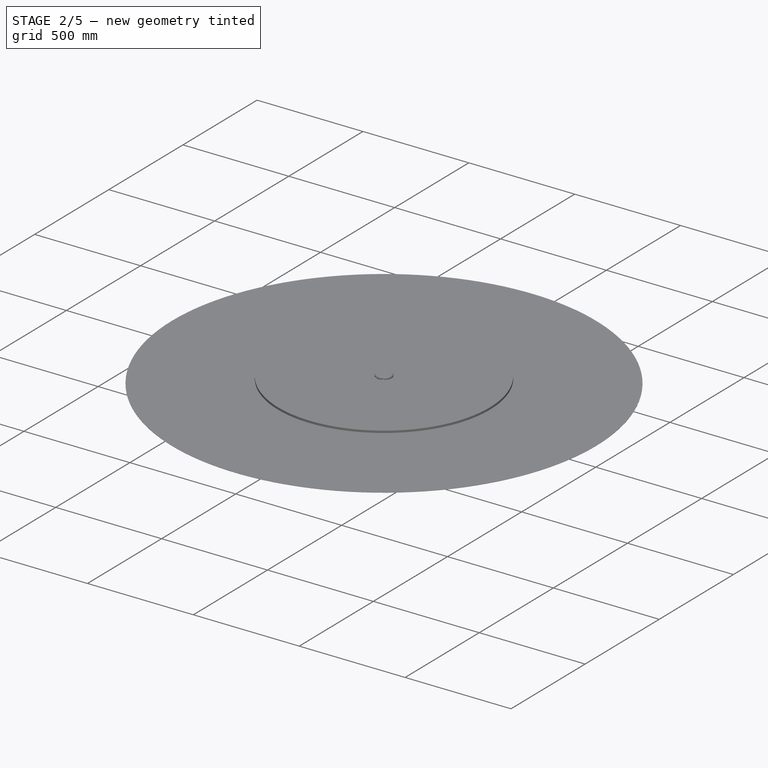
[diagram: stage 2 of 5 — iso view after this stage's code; geometry added in this stage tinted green]
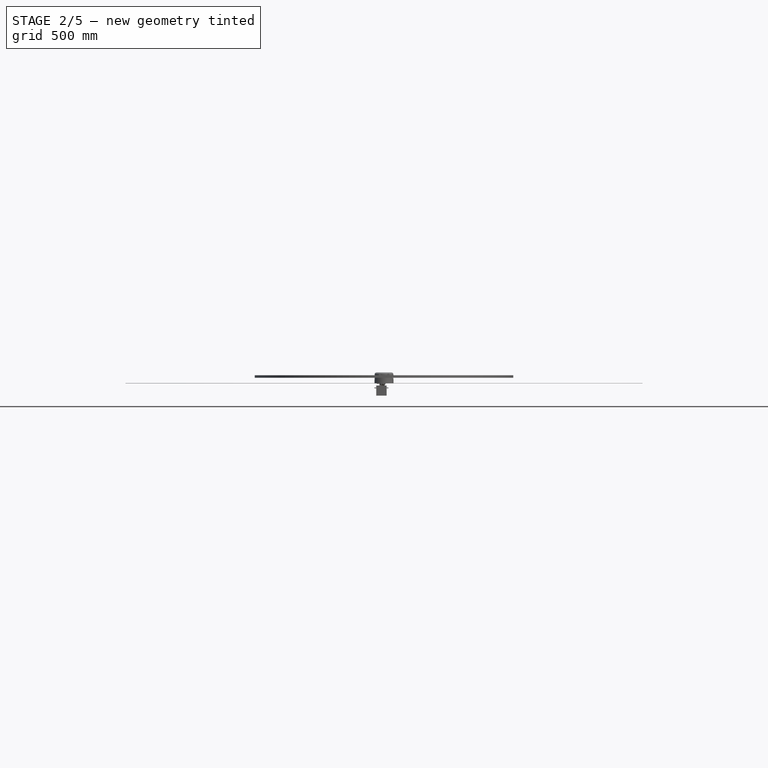
[diagram: stage 2 of 5 — front view after this stage's code; geometry added in this stage tinted green]
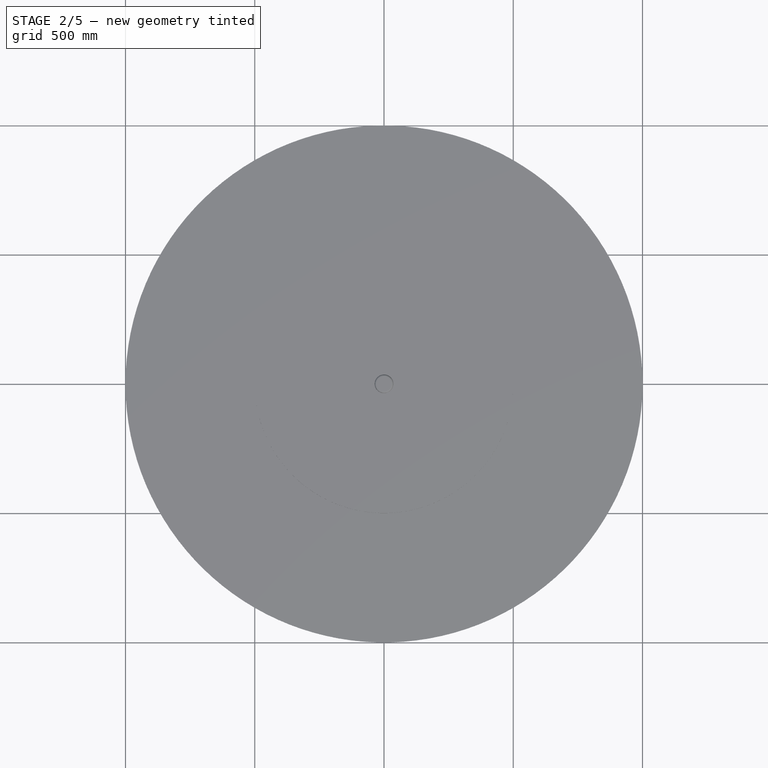
[diagram: stage 2 of 5 — top view after this stage's code; geometry added in this stage tinted green]
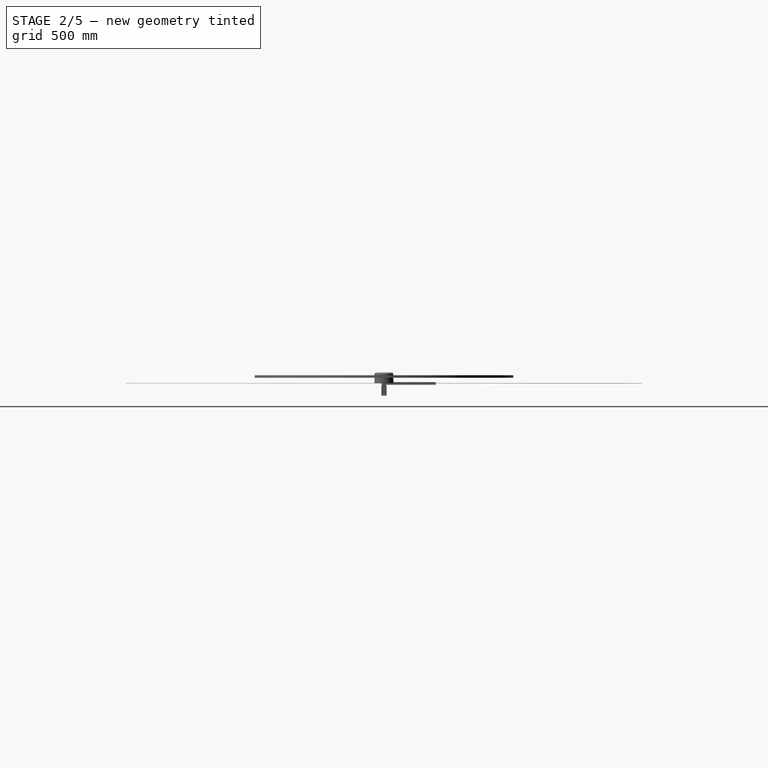
[diagram: stage 2 of 5 — right view after this stage's code; geometry added in this stage tinted green]
FEATURE [PartDesign::Body] Body042  label="ServoPalonnier"
  AutoGroupSolids = false
  ClaimAllChildren = false
  ExportMode = 0
  FixShape = 1
  Group = -> [Sketch088,Pad052,Sketch089,Pad051]
  InvalidShape = false
  Origin = -> Origin063
  Placement = pos=(0,0,0) rot=(1,0,0;1.5708rad)
  SingleSolid = true
  Tip = -> Pad051
  TreeRank = 0
  ValidateShape = false
  _ExportChildren = -> [Pad052,Pad051]
  _GroupVersion = 1
FEATURE [Sketcher::SketchObject] Sketch136
  ArcFitTolerance = 0
  AttachmentSupport = -> [XZ_Plane076]
  ExternalBSplineMaxDegree = 0
  ExternalBSplineTolerance = 0
  FixShape = 1
  FullyConstrained = true
  InternalTolerance = 1e-06
  InvalidShape = false
  MakeInternals = false
  MapMode = 5
  Placement = pos=(0,0,0) rot=(1,0,0;1.5708rad)
  Support = -> [XZ_Plane076]
  TreeRank = 0
  ValidateShape = false
  sketch-geometry (15):
    g0: LineSegment [constr] StartX=0 StartY=0 StartZ=0 EndX=0 EndY=8 EndZ=0
    g1: LineSegment StartX=0 StartY=8 StartZ=0 EndX=-7 EndY=8 EndZ=0
    g2: LineSegment StartX=-7 StartY=8 StartZ=0 EndX=-8.57143 EndY=6 EndZ=0
    g3: LineSegment StartX=-8.57143 StartY=6 StartZ=0 EndX=-11.7143 EndY=10 EndZ=0
    g4: LineSegment StartX=-11.7143 StartY=10 StartZ=0 EndX=-14.8571 EndY=6 EndZ=0
    g5: LineSegment StartX=-14.8571 StartY=6 StartZ=0 EndX=-18 EndY=10 EndZ=0
    g6: LineSegment [constr] StartX=-18 StartY=10 StartZ=0 EndX=-18 EndY=0 EndZ=0
    g7: LineSegment [constr] StartX=-18 StartY=0 StartZ=0 EndX=0 EndY=0 EndZ=0
    g8: LineSegment [constr] StartX=-8.57143 StartY=6 StartZ=0 EndX=-5.42857 EndY=10 EndZ=0
    g9: LineSegment StartX=-15 StartY=4.5 StartZ=0 EndX=-6 EndY=4.5 EndZ=0
    g10: LineSegment StartX=-6 StartY=4.5 StartZ=0 EndX=-6 EndY=2.5 EndZ=0
    g11: LineSegment StartX=-6 StartY=2.5 StartZ=0 EndX=0 EndY=2.5 EndZ=0
    g12: LineSegment StartX=0 StartY=2.5 StartZ=0 EndX=0 EndY=8 EndZ=0
    g13: LineSegment StartX=-18 StartY=10 StartZ=0 EndX=-18 EndY=9.6 EndZ=0
    g14: LineSegment StartX=-15 StartY=4.5 StartZ=0 EndX=-18 EndY=9.6 EndZ=0
  constraints (43):
    c: Coincident(g-1,g0)
    c: PointOnObject(g0,g-2)
    c: Coincident(g0,g1)
    c: Horizontal(g1)
    c: Coincident(g1,g2)
    c: Coincident(g2,g3)
    c: Coincident(g3,g4)
    c: Coincident(g4,g5)
    c: Coincident(g5,g6)
    c: Vertical(g6)
    c: Coincident(g6,g7)
    c: Coincident(g7,g0)
    c: Horizontal(g7)
    c: DistanceY(g0) = 8
    c: DistanceY(g5) = 10
    c: DistanceY(g3) = 10
    c: DistanceX(g5) = -18
    c: Equal(g3,g4)
    c: DistanceY(g2) = 6
    c: Horizontal(g4,g2)
    c: Equal(g4,g5)
    c: DistanceX(g1,g1) = 7
    c: Coincident(g8,g2)
    c: PointOnObject(g1,g8)
    c: Equal(g8,g3)
    c: Horizontal(g8,g3)
    c: Horizontal(g9)
    c: Coincident(g9,g10)
    c: Vertical(g10)
    c: Coincident(g10,g11)
    c: PointOnObject(g11,g0)
    c: Horizontal(g11)
    c: Coincident(g12,g11)
    c: Coincident(g12,g1)
    c: DistanceY(g11) = 2.5
    c: DistanceX(g11,g11) = 6
    c: DistanceY(g9) = 4.5
    c: Coincident(g13,g5)
    c: PointOnObject(g13,g6)
    c: Coincident(g14,g9)
    c: Coincident(g14,g13)
    c: DistanceY(g13,g5) = 0.4
    c: DistanceX(g9,g9) = 9
FEATURE [PartDesign::Revolution] Revolution009
  AddSubType = 0
  Angle = 360
  Axis = (1,0,0)
  Base = (0,0,0)
  ClaimChildren = false
  Fit = 0
  FitJoin = 0
  FixShape = 1
  InnerFit = 0
  InnerFitJoin = 0
  InvalidShape = false
  NewSolid = false
  Placement = pos=(0,0,0) rot=(1,0,0;1.5708rad)
  Profile = -> Sketch136
  ReferenceAxis = -> Sketch136 [H_Axis]
  Refine = true
  Suppress = false
  TreeRank = 0
  ValidateShape = false
  _ProfileBasedVersion = 1
FEATURE [PartDesign::Fillet] Fillet040
  AddSubType = 0
  Base = -> Revolution009 [Edge7,Edge8]
  BaseFeature = -> Revolution009
  FixShape = 1
  InvalidShape = false
  NewSolid = false
  Placement = pos=(0,0,0) rot=(1,0,0;1.5708rad)
  Radius = 0.4
  Refine = true
  SupportTransform = false
  Suppress = false
  TreeRank = 0
  UseAllEdges = false
  ValidateShape = false
FEATURE [PartDesign::Body] Body084  label="ElectronicPins"
  AutoGroupSolids = false
  ClaimAllChildren = false
  ExportMode = 0
  FixShape = 1
  Group = -> [Sketch174,Import003,Pad075,Chamfer045,Sketch175,Pocket054]
  InvalidShape = false
  Origin = -> Origin171
  Tip = -> Pocket054
  TreeRank = 139
  ValidateShape = false
  _ExportChildren = -> [Import003,Pad075,Chamfer045,Pocket054]
  _GroupVersion = 1
FEATURE [Sketcher::SketchObject] Sketch176
  ArcFitTolerance = 0
  AttachmentSupport = -> [YZ_Plane105]
  ExternalBSplineMaxDegree = 0
  ExternalBSplineTolerance = 0
  FixShape = 1
  FullyConstrained = true
  InternalTolerance = 1e-06
  InvalidShape = false
  MakeInternals = false
  MapMode = 5
  Placement = pos=(0,0,0) rot=(0.57735,0.57735,0.57735;2.0944rad)
  Support = -> [YZ_Plane105]
  TreeRank = 156
  ValidateShape = false
  sketch-geometry (12):
    g0: LineSegment StartX=-7.5 StartY=0 StartZ=0 EndX=-7.5 EndY=17 EndZ=0
    g1: LineSegment StartX=-7.5 StartY=17 StartZ=0 EndX=-12 EndY=17 EndZ=0
    g2: LineSegment StartX=-12 StartY=17 StartZ=0 EndX=-12 EndY=20 EndZ=0
    g3: LineSegment [constr] StartX=-7.5 StartY=0 StartZ=0 EndX=7.5 EndY=0 EndZ=0
    g4: LineSegment [constr] StartX=7.5 StartY=0 StartZ=0 EndX=7.5 EndY=17 EndZ=0
    g5: LineSegment [constr] StartX=7.5 StartY=17 StartZ=0 EndX=12 EndY=17 EndZ=0
    g6: LineSegment [constr] StartX=12 StartY=17 StartZ=0 EndX=12 EndY=20 EndZ=0
    g7: ArcOfCircle [constr] CenterX=-1.51e-14 CenterY=-51.5 CenterZ=0 NormalX=0 NormalY=0 NormalZ=1 AngleXU=0 Radius=72.5 StartAngle=1.40451 EndAngle=1.73708
    g8: GeomPoint [constr] X=4.5e-15 Y=21 Z=0
    g9: LineSegment StartX=0 StartY=0 StartZ=0 EndX=4.5e-15 EndY=21 EndZ=0
    g10: LineSegment StartX=-7.5 StartY=0 StartZ=0 EndX=0 EndY=0 EndZ=0
    g11: ArcOfCircle CenterX=-1.51e-14 CenterY=-51.5 CenterZ=0 NormalX=0 NormalY=0 NormalZ=1 AngleXU=0 Radius=72.5 StartAngle=1.5708 EndAngle=1.73708
  constraints (31):
    c: PointOnObject(g0,g-1)
    c: Vertical(g0)
    c: Coincident(g0,g1)
    c: Horizontal(g1)
    c: Coincident(g1,g2)
    c: Coincident(g0,g3)
    c: Coincident(g3,g4)
    c: Vertical(g4)
    c: Coincident(g4,g5)
    c: Horizontal(g5)
    c: Coincident(g5,g6)
    c: Vertical(g6)
    c: Vertical(g2)
    c: Equal(g6,g2)
    c: Symmetric(g0,g3,g-1)
    c: Symmetric(g6,g2,g-2)
    c: DistanceX(g0,g4) = 15
    c: DistanceY(g4) = 17
    c: DistanceY(g2,g2) = 3
    c: DistanceX(g1,g5) = 24
    c: Coincident(g7,g2)
    c: Coincident(g7,g6)
    c: PointOnObject(g8,g-2)
    c: Coincident(g9,g-1)
    c: Coincident(g9,g8)
    c: Coincident(g10,g0)
    c: Coincident(g10,g9)
    c: Coincident(g11,g7)
    c: Coincident(g11,g9)
    c: Coincident(g11,g2)
    c: DistanceY(g9) = 21
FEATURE [PartDesign::Revolution] Revolution015
  AddSubType = 0
  Angle = 360
  Axis = (-2e-16,3e-16,1)
  Base = (0,0,0)
  ClaimChildren = false
  Fit = 0
  FitJoin = 0
  FixShape = 1
  InnerFit = 0
  InnerFitJoin = 0
  InvalidShape = false
  Linearize = true
  NewSolid = false
  Placement = pos=(0,0,0) rot=(0.57735,0.57735,0.57735;2.0944rad)
  Profile = -> Sketch176
  ReferenceAxis = -> Sketch176 [V_Axis]
  Refine = true
  Suppress = false
  TreeRank = 157
  ValidateShape = false
  _ProfileBasedVersion = 1
FEATURE [PartDesign::Fillet] Fillet043
  AddSubType = 0
  Base = -> Revolution015 [Edge5]
  BaseFeature = -> Revolution015
  FixShape = 1
  InvalidShape = false
  NewSolid = false
  Placement = pos=(0,0,0) rot=(0.57735,0.57735,0.57735;2.0944rad)
  Radius = 1
  Refine = true
  SupportTransform = false
  Suppress = false
  TreeRank = 158
  UseAllEdges = false
  ValidateShape = false
FEATURE [PartDesign::Body] Body085  label="ButtonCaps"
  AutoGroupSolids = false
  ClaimAllChildren = false
  ExportMode = 0
  FixShape = 1
  Group = -> [Sketch176,Revolution015,Fillet043]
  InvalidShape = false
  Origin = -> Origin172
  SingleSolid = true
  Tip = -> Fillet043
  TreeRank = 155
  ValidateShape = false
  _ExportChildren = -> [Revolution015,Fillet043]
  _GroupVersion = 1
FEATURE [App::Part] Part036  label="BAU-2195813"
  ClaimAllChildren = false
  ExportMode = 1
  Group = -> [Body082,Body083,Body084,Body085]
  Origin = -> Origin168
  TreeRank = 100
  _ExportChildren = -> [Body082,Body083,Body084,Body085]
  _GroupVersion = 1
FEATURE [App::DocumentObjectGroup] Group008  label="Electro-Mecanique"
  ClaimAllChildren = true
  ExportMode = 1
  Group = -> [Part036]
  TreeRank = 159
  _GroupVersion = 1
FEATURE [Sketcher::SketchObject] Sketch177
  ArcFitTolerance = 0
  AttachmentSupport = -> [XY_Plane106]
  ExternalBSplineMaxDegree = 0
  ExternalBSplineTolerance = 0
  FixShape = 1
  FullyConstrained = true
  InternalTolerance = 1e-06
  InvalidShape = false
  MakeInternals = false
  MapMode = 5
  Support = -> [XY_Plane106]
  TreeRank = 0
  ValidateShape = false
  sketch-geometry (10):
    g0: LineSegment StartX=-12 StartY=2.5 StartZ=0 EndX=-12 EndY=4 EndZ=0
    g1: LineSegment StartX=-12 StartY=4 StartZ=0 EndX=-2 EndY=4 EndZ=0
    g2: LineSegment StartX=-2 StartY=4 StartZ=0 EndX=-2 EndY=3.25 EndZ=0
    g3: LineSegment StartX=-2 StartY=3.25 StartZ=0 EndX=0 EndY=3.25 EndZ=0
    g4: LineSegment StartX=0 StartY=3.25 StartZ=0 EndX=0 EndY=7.5 EndZ=0
    g5: LineSegment StartX=0 StartY=7.5 StartZ=0 EndX=3 EndY=7.5 EndZ=0
    g6: LineSegment StartX=3 StartY=7.5 StartZ=0 EndX=3 EndY=4 EndZ=0
    g7: LineSegment StartX=-12 StartY=2.5 StartZ=0 EndX=3.5 EndY=2.5 EndZ=0
    g8: LineSegment StartX=3.5 StartY=2.5 StartZ=0 EndX=3.5 EndY=4 EndZ=0
    g9: LineSegment StartX=3.5 StartY=4 StartZ=0 EndX=3 EndY=4 EndZ=0
  constraints (30):
    c: Vertical(g0)
    c: Coincident(g0,g1)
    c: Horizontal(g1)
    c: Coincident(g1,g2)
    c: Coincident(g2,g3)
    c: Horizontal(g3)
    c: Coincident(g3,g4)
    c: Vertical(g4)
    c: Coincident(g4,g5)
    c: Horizontal(g5)
    c: Coincident(g5,g6)
    c: Vertical(g6)
    c: Vertical(g2)
    c: DistanceY(g5) = 7.5
    c: DistanceX(g5,g5) = 3
    c: DistanceX(g1,g1) = 10
    c: DistanceY(g3) = 3.25
    c: DistanceY(g1) = 4
    c: Coincident(g0,g7)
    c: Horizontal(g7)
    c: Coincident(g7,g8)
    c: Vertical(g8)
    c: Coincident(g8,g9)
    c: Coincident(g9,g6)
    c: Horizontal(g9)
    c: DistanceY(g7) = 2.5
    c: PointOnObject(g3,g-2)
    c: DistanceX(g0,g7) = 15.5
    c: DistanceX(g6,g8) = 0.5
    c: DistanceY(g8) = 4
FEATURE [PartDesign::Revolution] Revolution002
  AddSubType = 0
  Angle = 360
  Axis = (1,0,0)
  Base = (0,0,0)
  ClaimChildren = false
  Fit = 0
  FitJoin = 0
  FixShape = 1
  InnerFit = 0
  InnerFitJoin = 0
  InvalidShape = false
  NewSolid = false
  Profile = -> Sketch177
  ReferenceAxis = -> X_Axis106
  Refine = true
  Suppress = false
  TreeRank = 0
  ValidateShape = false
  _ProfileBasedVersion = 1
FEATURE [Sketcher::SketchObject] Sketch178
  ArcFitTolerance = 0
  AttachmentSupport = -> [YZ_Plane106]
  ExternalBSplineMaxDegree = 0
  ExternalBSplineTolerance = 0
  ExternalGeometry = -> [Revolution002]
  FixShape = 1
  FullyConstrained = true
  InternalTolerance = 1e-06
  InvalidShape = false
  MakeInternals = false
  MapMode = 5
  Placement = pos=(0,0,0) rot=(0.57735,0.57735,0.57735;2.0944rad)
  Support = -> [YZ_Plane106]
  TreeRank = 0
  ValidateShape = false
  sketch-geometry (7):
    g0: LineSegment StartX=0 StartY=6.9282 StartZ=0 EndX=-6 EndY=3.4641 EndZ=0
    g1: LineSegment StartX=-6 StartY=3.4641 StartZ=0 EndX=-6 EndY=-3.4641 EndZ=0
    g2: LineSegment StartX=-6 StartY=-3.4641 StartZ=0 EndX=0 EndY=-6.9282 EndZ=0
    g3: LineSegment StartX=4e-16 StartY=-6.9282 StartZ=0 EndX=6 EndY=-3.4641 EndZ=0
    g4: LineSegment StartX=6 StartY=-3.4641 StartZ=0 EndX=6 EndY=3.4641 EndZ=0
    g5: LineSegment StartX=6 StartY=3.4641 StartZ=0 EndX=0 EndY=6.9282 EndZ=0
    g6: Circle [constr] CenterX=0 CenterY=0 CenterZ=0 NormalX=0 NormalY=0 NormalZ=1 AngleXU=0 Radius=6.9282
  constraints (16):
    c: Coincident(g0,g1)
    c: Coincident(g1,g2)
    c: Coincident(g2,g3)
    c: Coincident(g3,g4)
    c: Coincident(g4,g5)
    c: Coincident(g5,g0)
    c: Equal(g0, g1-g5) x5
    c: PointOnObject(g0,g6)
    c: PointOnObject(g1,g6)
    c: PointOnObject(g2,g6)
    c: PointOnObject(g3,g6)
    c: PointOnObject(g4,g6)
    c: PointOnObject(g5,g6)
    c: Coincident(g6,g-1)
    c: PointOnObject(g5,g-2)
    c: DistanceX(g0,g4) = 12
FEATURE [PartDesign::Pocket] Pocket055
  AddSubType = 1
  AutoTaperInnerAngle = false
  BaseFeature = -> Revolution002
  CheckUpToFaceLimits = true
  ClaimChildren = false
  Direction = (1,1,1)
  Fit = 0
  FitJoin = 0
  FixShape = 1
  InnerFit = 0
  InnerFitJoin = 0
  InvalidShape = false
  Length = 5
  Length2 = 100
  Linearize = true
  NewSolid = false
  Profile = -> Sketch178
  Refine = true
  Reversed = true
  Suppress = false
  TaperInnerAngle = 0
  TaperInnerAngleRev = 0
  TreeRank = 0
  Type = 1
  ValidateShape = false
  _ProfileBasedVersion = 1
  _Version = 1
FEATURE [PartDesign::Chamfer] Chamfer001
  AddSubType = 0
  Angle = 45
  Base = -> Pocket055 [Edge2,Edge5]
  BaseFeature = -> Pocket055
  ChamferType = 0
  FixShape = 1
  FlipDirection = false
  InvalidShape = false
  NewSolid = false
  Refine = true
  Size = 0.3
  Size2 = 1
  SupportTransform = false
  Suppress = false
  TreeRank = 0
  UseAllEdges = false
  ValidateShape = false
FEATURE [PartDesign::Body] Body086  label="Coulisse001"
  AutoGroupSolids = false
  ClaimAllChildren = false
  ExportMode = 0
  FixShape = 1
  Group = -> [Sketch177,Revolution002,Sketch178,Pocket055,Chamfer001]
  InvalidShape = false
  Origin = -> Origin173
  Placement = pos=(-3.8147e-06,9.095e-13,0) rot=(0,0,1;0rad)
  SingleSolid = true
  Tip = -> Chamfer001
  TreeRank = 174
  ValidateShape = false
  _ExportChildren = -> [Revolution002,Pocket055,Chamfer001]
  _GroupVersion = 1
FEATURE [Sketcher::SketchObject] Sketch179
  ArcFitTolerance = 0
  AttachmentSupport = -> [XZ_Plane107]
  ExternalBSplineMaxDegree = 0
  ExternalBSplineTolerance = 0
  FixShape = 1
  FullyConstrained = true
  InternalTolerance = 1e-06
  InvalidShape = false
  MakeInternals = false
  MapMode = 5
  Placement = pos=(0,0,0) rot=(1,0,0;1.5708rad)
  Support = -> [XZ_Plane107]
  TreeRank = 0
  ValidateShape = false
  sketch-geometry (14):
    g0: LineSegment StartX=0 StartY=2.5 StartZ=0 EndX=3 EndY=2.5 EndZ=0
    g1: LineSegment StartX=3 StartY=2.5 StartZ=0 EndX=3 EndY=3.5 EndZ=0
    g2: LineSegment StartX=3 StartY=3.5 StartZ=0 EndX=5 EndY=3.5 EndZ=0
    g3: LineSegment StartX=5 StartY=3.5 StartZ=0 EndX=5 EndY=1.5 EndZ=0
    g4: LineSegment StartX=5 StartY=1.5 StartZ=0 EndX=-9 EndY=1.5 EndZ=0
    g5: LineSegment StartX=-9 StartY=1.5 StartZ=0 EndX=-9 EndY=0 EndZ=0
    g6: LineSegment StartX=-9 StartY=0 StartZ=0 EndX=-37.5 EndY=0 EndZ=0
    g7: LineSegment StartX=-37.5 StartY=0 StartZ=0 EndX=-37.5 EndY=2.5 EndZ=0
    g8: LineSegment StartX=-37.5 StartY=2.5 StartZ=0 EndX=-11 EndY=2.5 EndZ=0
    g9: LineSegment StartX=-11 StartY=2.5 StartZ=0 EndX=-11 EndY=4 EndZ=0
    g10: LineSegment StartX=-11 StartY=4 StartZ=0 EndX=-7 EndY=4 EndZ=0
    g11: LineSegment StartX=-7 StartY=4 StartZ=0 EndX=-7 EndY=7.5 EndZ=0
    g12: LineSegment StartX=-7 StartY=7.5 StartZ=0 EndX=0 EndY=7.5 EndZ=0
    g13: LineSegment StartX=0 StartY=7.5 StartZ=0 EndX=0 EndY=2.5 EndZ=0
  constraints (42):
    c: PointOnObject(g0,g-2)
    c: Horizontal(g0)
    c: Coincident(g0,g1)
    c: Coincident(g1,g2)
    c: Horizontal(g2)
    c: Coincident(g2,g3)
    c: Vertical(g3)
    c: Coincident(g3,g4)
    c: Horizontal(g4)
    c: Coincident(g4,g5)
    c: Vertical(g5)
    c: Coincident(g5,g6)
    c: PointOnObject(g6,g-1)
    c: Horizontal(g6)
    c: Coincident(g6,g7)
    c: Vertical(g7)
    c: Coincident(g7,g8)
    c: Horizontal(g8)
    c: Coincident(g8,g9)
    c: Coincident(g9,g10)
    c: Horizontal(g10)
    c: Coincident(g10,g11)
    c: Vertical(g11)
    c: Coincident(g11,g12)
    c: Horizontal(g12)
    c: Coincident(g12,g13)
    c: Coincident(g13,g0)
    c: Vertical(g13)
    c: Vertical(g9)
    c: Vertical(g1)
    c: DistanceY(g2) = 3.5
    c: DistanceX(g2,g2) = 2
    c: DistanceX(g-1,g0) = 3
    c: DistanceY(g0) = 2.5
    c: DistanceX(g4,g4) = 14
    c: DistanceY(g3) = 1.5
    c: DistanceY(g10) = 4
    c: DistanceY(g12) = 7.5
    c: DistanceX(g12,g12) = 7
    c: DistanceX(g10,g10) = 4
    c: DistanceY(g8) = 2.5
    c: DistanceX(g6,g3) = 42.5
FEATURE [PartDesign::Revolution] Revolution016
  AddSubType = 0
  Angle = 360
  Axis = (1,0,0)
  Base = (0,0,0)
  ClaimChildren = false
  Fit = 0
  FitJoin = 0
  FixShape = 1
  InnerFit = 0
  InnerFitJoin = 0
  InvalidShape = false
  NewSolid = false
  Placement = pos=(0,0,0) rot=(1,0,0;1.5708rad)
  Profile = -> Sketch179
  ReferenceAxis = -> X_Axis107
  Refine = true
  Suppress = false
  TreeRank = 0
  ValidateShape = false
  _ProfileBasedVersion = 1
FEATURE [Sketcher::SketchObject] Sketch180
  ArcFitTolerance = 0
  AttachmentSupport = -> [YZ_Plane107]
  ExternalBSplineMaxDegree = 0
  ExternalBSplineTolerance = 0
  ExternalGeometry = -> [Revolution016]
  FixShape = 1
  FullyConstrained = true
  InternalTolerance = 1e-06
  InvalidShape = false
  MakeInternals = false
  MapMode = 5
  Placement = pos=(0,0,0) rot=(0.57735,0.57735,0.57735;2.0944rad)
  Support = -> [YZ_Plane107]
  TreeRank = 0
  ValidateShape = false
  sketch-geometry (7):
    g0: LineSegment StartX=6 StartY=3.4641 StartZ=0 EndX=0 EndY=6.9282 EndZ=0
    g1: LineSegment StartX=0 StartY=6.9282 StartZ=0 EndX=-6 EndY=3.4641 EndZ=0
    g2: LineSegment StartX=-6 StartY=3.4641 StartZ=0 EndX=-6 EndY=-3.4641 EndZ=0
    g3: LineSegment StartX=-6 StartY=-3.4641 StartZ=0 EndX=1.8723e-12 EndY=-6.9282 EndZ=0
    g4: LineSegment StartX=1.8721e-12 StartY=-6.9282 StartZ=0 EndX=6 EndY=-3.4641 EndZ=0
    g5: LineSegment StartX=6 StartY=-3.4641 StartZ=0 EndX=6 EndY=3.4641 EndZ=0
    g6: Circle [constr] CenterX=0 CenterY=0 CenterZ=0 NormalX=0 NormalY=0 NormalZ=1 AngleXU=0 Radius=6.9282
  constraints (16):
    c: Coincident(g0,g1)
    c: Coincident(g1,g2)
    c: Coincident(g2,g3)
    c: Coincident(g3,g4)
    c: Coincident(g4,g5)
    c: Coincident(g5,g0)
    c: Equal(g0, g1-g5) x5
    c: PointOnObject(g0,g6)
    c: PointOnObject(g1,g6)
    c: PointOnObject(g2,g6)
    c: PointOnObject(g3,g6)
    c: PointOnObject(g4,g6)
    c: PointOnObject(g5,g6)
    c: Coincident(g6,g-1)
    c: PointOnObject(g0,g-2)
    c: DistanceX(g1,g0) = 12
FEATURE [PartDesign::Pocket] Pocket057
  AddSubType = 1
  AutoTaperInnerAngle = false
  BaseFeature = -> Revolution016
  CheckUpToFaceLimits = true
  ClaimChildren = false
  Direction = (1,1,1)
  Fit = 0
  FitJoin = 0
  FixShape = 1
  InnerFit = 0
  InnerFitJoin = 0
  InvalidShape = false
  Length = 5
  Length2 = 100
  Linearize = true
  NewSolid = false
  Placement = pos=(0,0,0) rot=(1,0,0;1.5708rad)
  Profile = -> Sketch180
  Refine = true
  Suppress = false
  TaperInnerAngle = 0
  TaperInnerAngleRev = 0
  TreeRank = 0
  Type = 1
  ValidateShape = false
  _ProfileBasedVersion = 1
  _Version = 1
FEATURE [Sketcher::SketchObject] Sketch181
  ArcFitTolerance = 0
  AttachmentSupport = -> [XZ_Plane107]
  ExternalBSplineMaxDegree = 0
  ExternalBSplineTolerance = 0
  ExternalGeometry = -> [Pocket057]
  FixShape = 1
  FullyConstrained = true
  InternalTolerance = 1e-06
  InvalidShape = false
  MakeInternals = false
  MapMode = 5
  Placement = pos=(0,0,0) rot=(1,0,0;1.5708rad)
  Support = -> [XZ_Plane107]
  TreeRank = 0
  ValidateShape = false
  sketch-geometry (2):
    g0: Circle CenterX=-3.5 CenterY=0 CenterZ=0 NormalX=0 NormalY=0 NormalZ=1 AngleXU=0 Radius=2.5
    g1: LineSegment [constr] StartX=-6e-16 StartY=-3.4641 StartZ=0 EndX=-7 EndY=3.4641 EndZ=0
  constraints (5):
    c: PointOnObject(g0,g-1)
    c: Diameter(g0) = 5
    c: Coincident(g1,g-4)
    c: Coincident(g1,g-3)
    c: PointOnObject(g0,g1)
FEATURE [PartDesign::Pocket] Pocket058
  AddSubType = 1
  AutoTaperInnerAngle = false
  BaseFeature = -> Pocket057
  CheckUpToFaceLimits = true
  ClaimChildren = false
  Direction = (1,1,1)
  Fit = 0
  FitJoin = 0
  FixShape = 1
  InnerFit = 0
  InnerFitJoin = 0
  InvalidShape = false
  Length = 5
  Length2 = 100
  Linearize = true
  Midplane = true
  NewSolid = false
  Placement = pos=(0,0,0) rot=(1,0,0;1.5708rad)
  Profile = -> Sketch181
  Refine = true
  Suppress = false
  TaperInnerAngle = 0
  TaperInnerAngleRev = 0
  TreeRank = 0
  Type = 1
  ValidateShape = false
  _ProfileBasedVersion = 1
  _Version = 1
FEATURE [PartDesign::Chamfer] Chamfer046
  AddSubType = 0
  Angle = 45
  Base = -> Pocket058 [Edge14,Edge21]
  BaseFeature = -> Pocket058
  ChamferType = 0
  FixShape = 1
  FlipDirection = false
  InvalidShape = false
  NewSolid = false
  Placement = pos=(0,0,0) rot=(1,0,0;1.5708rad)
  Refine = true
  Size = 0.2
  Size2 = 1
  SupportTransform = false
  Suppress = false
  TreeRank = 0
  UseAllEdges = false
  ValidateShape = false
FEATURE [Sketcher::SketchObject] Sketch182
  ArcFitTolerance = 0
  AttachmentSupport = -> [Chamfer046]
  ExternalBSplineMaxDegree = 0
  ExternalBSplineTolerance = 0
  FixShape = 1
  FullyConstrained = true
  InternalTolerance = 1e-06
  InvalidShape = false
  MakeInternals = false
  MapMode = 5
  Placement = pos=(-37.5,0,0) rot=(0.707107,0,-0.707107;3.14159rad)
  Support = -> [Chamfer046]
  TreeRank = 0
  ValidateShape = false
  sketch-geometry (1):
    g0: Circle CenterX=0 CenterY=0 CenterZ=0 NormalX=0 NormalY=0 NormalZ=1 AngleXU=0 Radius=1.5
  constraints (2):
    c: Coincident(g0,g-1)
    c: Diameter(g0) = 3
FEATURE [PartDesign::Pocket] Pocket056
  AddSubType = 1
  AutoTaperInnerAngle = false
  BaseFeature = -> Chamfer046
  CheckUpToFaceLimits = true
  ClaimChildren = false
  Direction = (1,1,1)
  Fit = 0
  FitJoin = 0
  FixShape = 1
  InnerFit = 0
  InnerFitJoin = 0
  InvalidShape = false
  Length = 5
  Length2 = 100
  Linearize = true
  NewSolid = false
  Placement = pos=(0,0,0) rot=(1,0,0;1.5708rad)
  Profile = -> Sketch182
  Refine = true
  Suppress = false
  TaperInnerAngle = 0
  TaperInnerAngleRev = 0
  TreeRank = 0
  Type = 0
  ValidateShape = false
  _ProfileBasedVersion = 1
  _Version = 1
FEATURE [Sketcher::SketchObject] Sketch183
  ArcFitTolerance = 0
  AttachmentSupport = -> [XY_Plane108]
  ExternalBSplineMaxDegree = 0
  ExternalBSplineTolerance = 0
  FixShape = 1
  FullyConstrained = true
  InternalTolerance = 1e-06
  InvalidShape = false
  MakeInternals = false
  MapMode = 5
  Support = -> [XY_Plane108]
  TreeRank = 0
  ValidateShape = false
  sketch-geometry (10):
    g0: LineSegment StartX=0 StartY=-4.5 StartZ=0 EndX=-2.5 EndY=-4.5 EndZ=0
    g1: LineSegment StartX=-2.5 StartY=-4.5 StartZ=0 EndX=-2.5 EndY=-1 EndZ=0
    g2: LineSegment StartX=-2.5 StartY=-1 StartZ=0 EndX=-2 EndY=-1 EndZ=0
    g3: LineSegment StartX=-2 StartY=-1 StartZ=0 EndX=-2 EndY=0 EndZ=0
    g4: LineSegment StartX=-2 StartY=0 StartZ=0 EndX=-4 EndY=0 EndZ=0
    g5: LineSegment StartX=-4 StartY=0 StartZ=0 EndX=-4 EndY=2.5 EndZ=0
    g6: LineSegment StartX=-4 StartY=2.5 StartZ=0 EndX=-2 EndY=2.5 EndZ=0
    g7: LineSegment StartX=-2 StartY=2.5 StartZ=0 EndX=-2 EndY=3.5 EndZ=0
    g8: LineSegment StartX=-2 StartY=3.5 StartZ=0 EndX=0 EndY=3.5 EndZ=0
    g9: LineSegment StartX=0 StartY=3.5 StartZ=0 EndX=0 EndY=-4.5 EndZ=0
  constraints (30):
    c: Horizontal(g0)
    c: Coincident(g0,g1)
    c: Vertical(g1)
    c: Coincident(g1,g2)
    c: Horizontal(g2)
    c: Coincident(g2,g3)
    c: PointOnObject(g3,g-1)
    c: Vertical(g3)
    c: Coincident(g3,g4)
    c: PointOnObject(g4,g-1)
    c: Coincident(g4,g5)
    c: Vertical(g5)
    c: Coincident(g5,g6)
    c: Horizontal(g6)
    c: Coincident(g6,g7)
    c: Vertical(g7)
    c: Coincident(g7,g8)
    c: Horizontal(g8)
    c: Coincident(g8,g9)
    c: Coincident(g9,g0)
    c: Vertical(g9)
    c: DistanceY(g5) = 2.5
    c: DistanceX(g3,g-1) = 2
    c: DistanceX(g0,g-1) = 2.5
    c: DistanceX(g4,g-1) = 4
    c: DistanceY(g7,g7) = 1
    c: DistanceY(g3,g3) = 1
    c: DistanceY(g0,g6) = 7
    c: DistanceX(g7,g-1) = 2
    c: PointOnObject(g0,g-2)
FEATURE [PartDesign::Revolution] Revolution003
  AddSubType = 0
  Angle = 360
  Axis = (0,1,0)
  Base = (0,0,0)
  ClaimChildren = false
  Fit = 0
  FitJoin = 0
  FixShape = 1
  InnerFit = 0
  InnerFitJoin = 0
  InvalidShape = false
  NewSolid = false
  Profile = -> Sketch183
  ReferenceAxis = -> Sketch183 [V_Axis]
  Refine = true
  Suppress = false
  TreeRank = 0
  ValidateShape = false
  _ProfileBasedVersion = 1
FEATURE [Sketcher::SketchObject] Sketch184
  ArcFitTolerance = 0
  AttachmentSupport = -> [XY_Plane108]
  ExternalBSplineMaxDegree = 0
  ExternalBSplineTolerance = 0
  FixShape = 1
  FullyConstrained = true
  InternalTolerance = 1e-06
  InvalidShape = false
  MakeInternals = false
  MapMode = 5
  Support = -> [XY_Plane108]
  TreeRank = 0
  ValidateShape = false
FEATURE [Sketcher::SketchObject] Sketch185
  ArcFitTolerance = 0
  AttachmentSupport = -> [XY_Plane108]
  ExternalBSplineMaxDegree = 0
  ExternalBSplineTolerance = 0
  ExternalGeometry = -> [Revolution003]
  FixShape = 1
  FullyConstrained = true
  InternalTolerance = 1e-06
  InvalidShape = false
  MakeInternals = false
  MapMode = 5
  Support = -> [XY_Plane108]
  TreeRank = 0
  ValidateShape = false
  sketch-geometry (5):
    g0: LineSegment StartX=0 StartY=3.5 StartZ=0 EndX=-2.5 EndY=3.5 EndZ=0
    g1: LineSegment StartX=-2.5 StartY=3.5 StartZ=0 EndX=-2.5 EndY=4.5 EndZ=0
    g2: LineSegment StartX=-2.5 StartY=4.5 StartZ=0 EndX=-2 EndY=6.5 EndZ=0
    g3: LineSegment StartX=-2 StartY=6.5 StartZ=0 EndX=0 EndY=6.5 EndZ=0
    g4: LineSegment StartX=0 StartY=6.5 StartZ=0 EndX=0 EndY=3.5 EndZ=0
  constraints (15):
    c: PointOnObject(g0,g-2)
    c: Horizontal(g0)
    c: Coincident(g0,g1)
    c: Coincident(g1,g2)
    c: Coincident(g2,g3)
    c: PointOnObject(g3,g-2)
    c: Horizontal(g3)
    c: Coincident(g3,g4)
    c: Coincident(g0,g4)
    c: PointOnObject(g0,g-3)
    c: DistanceX(g0,g-1) = 2.5
    c: Vertical(g1)
    c: DistanceY(g4,g4) = 3
    c: DistanceX(g2,g0) = 2
    c: DistanceY(g1,g1) = 1
FEATURE [PartDesign::Revolution] Revolution004
  AddSubType = 0
  Angle = 360
  Axis = (0,1,0)
  Base = (0,0,0)
  BaseFeature = -> Revolution003
  ClaimChildren = false
  Fit = 0
  FitJoin = 0
  FixShape = 1
  InnerFit = 0
  InnerFitJoin = 0
  InvalidShape = false
  NewSolid = false
  Profile = -> Sketch185
  ReferenceAxis = -> Sketch185 [V_Axis]
  Refine = true
  Suppress = false
  TreeRank = 0
  ValidateShape = false
  _ProfileBasedVersion = 1
FEATURE [PartDesign::LinearPattern] LinearPattern001
  AddSubType = 0
  BaseFeature = -> Revolution004
  CopyShape = false
  Direction = -> Y_Axis108
  FixShape = 1
  InvalidShape = false
  Length = 3
  NewSolid = false
  Occurrences = 2
  OriginalSubs = -> [Revolution004]
  Originals = -> [Revolution004]
  ParallelTransform = true
  Refine = true
  SubTransform = true
  Suppress = false
  TreeRank = 0
  ValidateShape = false
  _Version = 3
FEATURE [Sketcher::SketchObject] Sketch186
  ArcFitTolerance = 0
  AttachmentSupport = -> [XZ_Plane108]
  ExternalBSplineMaxDegree = 0
  ExternalBSplineTolerance = 0
  FixShape = 1
  FullyConstrained = true
  InternalTolerance = 1e-06
  InvalidShape = false
  MakeInternals = false
  MapMode = 5
  Placement = pos=(0,0,0) rot=(1,0,0;1.5708rad)
  Support = -> [XZ_Plane108]
  TreeRank = 0
  ValidateShape = false
  sketch-geometry (1):
    g0: Circle CenterX=0 CenterY=0 CenterZ=0 NormalX=0 NormalY=0 NormalZ=1 AngleXU=0 Radius=1.5
  constraints (2):
    c: Coincident(g0,g-1)
    c: Diameter(g0) = 3
FEATURE [PartDesign::Pocket] Pocket060
  AddSubType = 1
  AutoTaperInnerAngle = false
  BaseFeature = -> LinearPattern001
  CheckUpToFaceLimits = true
  ClaimChildren = false
  Direction = (1,1,1)
  Fit = 0
  FitJoin = 0
  FixShape = 1
  InnerFit = 0
  InnerFitJoin = 0
  InvalidShape = false
  Length = 5
  Length2 = 100
  Linearize = true
  Midplane = true
  NewSolid = false
  Profile = -> Sketch186
  Refine = true
  Suppress = false
  TaperInnerAngle = 0
  TaperInnerAngleRev = 0
  TreeRank = 0
  Type = 1
  ValidateShape = false
  _ProfileBasedVersion = 1
  _Version = 1
FEATURE [PartDesign::Chamfer] Chamfer002
  AddSubType = 0
  Angle = 45
  Base = -> Pocket060 [Edge17,Edge19]
  BaseFeature = -> Pocket060
  ChamferType = 0
  FixShape = 1
  FlipDirection = false
  InvalidShape = false
  NewSolid = false
  Refine = true
  Size = 0.3
  Size2 = 1
  SupportTransform = false
  Suppress = false
  TreeRank = 0
  UseAllEdges = false
  ValidateShape = false
FEATURE [Sketcher::SketchObject] Sketch187
  ArcFitTolerance = 0
  AttachmentSupport = -> [XZ_Plane108]
  ExternalBSplineMaxDegree = 0
  ExternalBSplineTolerance = 0
  ExternalGeometry = -> [Chamfer002]
  FixShape = 1
  FullyConstrained = true
  InternalTolerance = 1e-06
  InvalidShape = false
  MakeInternals = false
  MapMode = 5
  Placement = pos=(0,0,0) rot=(1,0,0;1.5708rad)
  Support = -> [XZ_Plane108]
  TreeRank = 0
  ValidateShape = false
  sketch-geometry (7):
    g0: LineSegment StartX=0 StartY=3.4641 StartZ=0 EndX=-3 EndY=1.73205 EndZ=0
    g1: LineSegment StartX=-3 StartY=1.73205 StartZ=0 EndX=-3 EndY=-1.73205 EndZ=0
    g2: LineSegment StartX=-3 StartY=-1.73205 StartZ=0 EndX=-5.997e-12 EndY=-3.4641 EndZ=0
    g3: LineSegment StartX=-5.997e-12 StartY=-3.4641 StartZ=0 EndX=3 EndY=-1.73205 EndZ=0
    g4: LineSegment StartX=3 StartY=-1.73205 StartZ=0 EndX=3 EndY=1.73205 EndZ=0
    g5: LineSegment StartX=3 StartY=1.73205 StartZ=0 EndX=0 EndY=3.4641 EndZ=0
    g6: Circle [constr] CenterX=0 CenterY=0 CenterZ=0 NormalX=0 NormalY=0 NormalZ=1 AngleXU=0 Radius=3.4641
  constraints (16):
    c: Coincident(g0,g1)
    c: Coincident(g1,g2)
    c: Coincident(g2,g3)
    c: Coincident(g3,g4)
    c: Coincident(g4,g5)
    c: Coincident(g5,g0)
    c: Equal(g0, g1-g5) x5
    c: PointOnObject(g0,g6)
    c: PointOnObject(g1,g6)
    c: PointOnObject(g2,g6)
    c: PointOnObject(g3,g6)
    c: PointOnObject(g4,g6)
    c: PointOnObject(g5,g6)
    c: Coincident(g6,g-1)
    c: PointOnObject(g0,g-2)
    c: DistanceX(g0,g4) = 6
FEATURE [PartDesign::Pocket] Pocket059
  AddSubType = 1
  AutoTaperInnerAngle = false
  BaseFeature = -> Chamfer002
  CheckUpToFaceLimits = true
  ClaimChildren = false
  Direction = (1,1,1)
  Fit = 0
  FitJoin = 0
  FixShape = 1
  InnerFit = 0
  InnerFitJoin = 0
  InvalidShape = false
  Length = 5
  Length2 = 100
  Linearize = true
  NewSolid = false
  Profile = -> Sketch187
  Refine = true
  Suppress = false
  TaperInnerAngle = 0
  TaperInnerAngleRev = 0
  TreeRank = 0
  Type = 1
  ValidateShape = false
  _ProfileBasedVersion = 1
  _Version = 1
FEATURE [PartDesign::Body] Body088  label="ConnecteurPneu001"
  AutoGroupSolids = false
  ClaimAllChildren = false
  ExportMode = 0
  FixShape = 1
  Group = -> [Sketch183,Revolution003,Sketch184,Sketch185,Revolution004,LinearPattern001,Sketch186,Pocket060,Chamfer002,Sketch187,Pocket059]
  InvalidShape = false
  Origin = -> Origin174
  Placement = pos=(11,6,0) rot=(0,0,1;0rad)
  SingleSolid = true
  Tip = -> Pocket059
  TreeRank = 176
  ValidateShape = false
  _ExportChildren = -> [Revolution003,Sketch184,Revolution004,LinearPattern001,Pocket060,Chamfer002,Pocket059]
  _GroupVersion = 1
FEATURE [Part::FeaturePython] Nut  label="M8-Nut"  # Fasteners workbench fastener (typed FeaturePython)
  FixShape = 1
  InvalidShape = false
  Placement = pos=(-5,9.095e-13,0) rot=(0,-1,0;1.5708rad)
  TreeRank = 177
  ValidateShape = false
  diameter = 9
  invert = true
  leftHanded = false
  matchOuter = false
  offset = 5
  thread = false
  type = 9
FEATURE [Part::FeaturePython] Screw004  label="M3x10-Screw001"  # Fasteners workbench fastener (typed FeaturePython)
  FixShape = 1
  InvalidShape = false
  Placement = pos=(-26,-1.72853e-06,-7e-16) rot=(0,-1,0;1.5708rad)
  TreeRank = 178
  ValidateShape = false
  baseObject = -> Body087 [Edge47]
  diameter = 1
  invert = false
  leftHanded = false
  length = 2
  lengthCustom = 10
  matchOuter = false
  offset = 3
  thread = false
  type = 40
FEATURE [Sketcher::SketchObject] Sketch188
  ArcFitTolerance = 0
  AttachmentSupport = -> [YZ_Plane005]
  ExternalBSplineMaxDegree = 0
  ExternalBSplineTolerance = 0
  FixShape = 1
  FullyConstrained = true
  InternalTolerance = 1e-06
  InvalidShape = false
  MakeInternals = false
  MapMode = 5
  Placement = pos=(0,0,0) rot=(0.57735,0.57735,0.57735;2.0944rad)
  Support = -> [YZ_Plane005]
  TreeRank = 0
  ValidateShape = false
  sketch-geometry (5):
    g0: Circle CenterX=0 CenterY=0 CenterZ=0 NormalX=0 NormalY=0 NormalZ=1 AngleXU=0 Radius=1.6
    g1: ArcOfCircle CenterX=0 CenterY=0 CenterZ=0 NormalX=0 NormalY=0 NormalZ=1 AngleXU=0 Radius=8 StartAngle=0 EndAngle=3.14159
    g2: LineSegment StartX=-8 StartY=1e-15 StartZ=0 EndX=-8 EndY=-8 EndZ=0
    g3: LineSegment StartX=-8 StartY=-8 StartZ=0 EndX=8 EndY=-8 EndZ=0
    g4: LineSegment StartX=8 StartY=-8 StartZ=0 EndX=8 EndY=0 EndZ=0
  constraints (14):
    c: Coincident(g0,g-1)
    c: Diameter(g0) = 3.2
    c: Coincident(g1,g0)
    c: PointOnObject(g1,g-1)
    c: PointOnObject(g1,g-1)
    c: Coincident(g2,g1)
    c: Vertical(g2)
    c: Horizontal(g3)
    c: Coincident(g3,g4)
    c: Coincident(g4,g1)
    c: Vertical(g4)
    c: Coincident(g2,g3)
    c: Diameter(g1) = 16
    c: DistanceY(g3) = -8
FEATURE [PartDesign::Pad] Pad076
  AddSubType = 0
  AutoTaperInnerAngle = false
  CheckUpToFaceLimits = true
  ClaimChildren = false
  Direction = (1,-2e-16,3e-16)
  Fit = 0
  FitJoin = 0
  FixShape = 1
  InnerFit = 0
  InnerFitJoin = 0
  InvalidShape = false
  Length = 3
  Length2 = 100
  Linearize = true
  NewSolid = false
  Placement = pos=(0,0,0) rot=(0.57735,0.57735,0.57735;2.0944rad)
  Profile = -> Sketch188
  Refine = true
  Suppress = false
  TaperInnerAngle = 0
  TaperInnerAngleRev = 0
  TreeRank = 0
  Type = 0
  ValidateShape = false
  _ProfileBasedVersion = 1
FEATURE [PartDesign::Fillet] Fillet044
  AddSubType = 0
  Base = -> Pad076 [Edge8,Edge5]
  BaseFeature = -> Pad076
  FixShape = 1
  InvalidShape = false
  NewSolid = false
  Placement = pos=(0,0,0) rot=(0.57735,0.57735,0.57735;2.0944rad)
  Radius = 1
  Refine = true
  SupportTransform = false
  Suppress = false
  TreeRank = 0
  UseAllEdges = false
  ValidateShape = false
FEATURE [Sketcher::SketchObject] Sketch193
  ArcFitTolerance = 0
  AttachmentSupport = -> [Fillet046]
  ExternalBSplineMaxDegree = 0
  ExternalBSplineTolerance = 0
  FixShape = 1
  FullyConstrained = true
  InternalTolerance = 1e-06
  InvalidShape = false
  MakeInternals = false
  MapMode = 5
  Placement = pos=(0,0,33.5) rot=(0,0,1;0rad)
  Support = -> [Fillet046]
  TreeRank = 69
  ValidateShape = false
  sketch-geometry (3):
    g0: LineSegment StartX=13 StartY=-0.866025 StartZ=0 EndX=13 EndY=0.866025 EndZ=0
    g1: LineSegment StartX=13 StartY=0.866025 StartZ=0 EndX=14.5 EndY=-2.501e-11 EndZ=0
    g2: LineSegment StartX=14.5 StartY=-2.501e-11 StartZ=0 EndX=13 EndY=-0.866025 EndZ=0
  constraints (9):
    c: Vertical(g0)
    c: Coincident(g0,g1)
    c: PointOnObject(g1,g-1)
    c: Coincident(g1,g2)
    c: Coincident(g2,g0)
    c: Equal(g2,g1)
    c: Equal(g1,g0)
    c: DistanceX(g-1,g0) = 13
    c: DistanceX(g0,g1) = 1.5
FEATURE [PartDesign::Pocket] Pocket062
  AddSubType = 1
  AutoTaperInnerAngle = false
  BaseFeature = -> Fillet046
  CheckUpToFaceLimits = true
  ClaimChildren = false
  Direction = (1,1,1)
  Fit = 0
  FitJoin = 0
  FixShape = 1
  InnerFit = 0
  InnerFitJoin = 0
  InvalidShape = false
  Length = 1
  Length2 = 100
  Linearize = true
  NewSolid = false
  Profile = -> Sketch193
  Refine = true
  Suppress = false
  TaperInnerAngle = 0
  TaperInnerAngleRev = 0
  TreeRank = 70
  Type = 0
  ValidateShape = false
  _ProfileBasedVersion = 1
  _Version = 1
FEATURE [PartDesign::Body] Body100  label="V623ZZ-intern"
  AutoGroupSolids = false
  ClaimAllChildren = false
  ExportMode = 0
  FixShape = 1
  Group = -> [Sketch205,Revolution021]
  InvalidShape = false
  Origin = -> Origin193
  SingleSolid = true
  Tip = -> Revolution021
  TreeRank = 385
  ValidateShape = false
  _ExportChildren = -> [Revolution021]
  _GroupVersion = 1
FEATURE [App::Part] Part043  label="V623ZZ"
  ClaimAllChildren = false
  ExportMode = 1
  Group = -> [Body100,Body101]
  Origin = -> Origin192
  TreeRank = 375
  _ExportChildren = -> [Body100,Body101]
  _GroupVersion = 1
FEATURE [App::DocumentObjectGroup] Group006  label="Roulements"
  ClaimAllChildren = true
  ExportMode = 1
  Group = -> [Part022,Part034,Part001,Part035,Part041,Part043]
  TreeRank = 0
  _GroupVersion = 1
FEATURE [App::DocumentObjectGroup] Group009  label="Pneumatique"
  ClaimAllChildren = true
  ExportMode = 1
  Group = -> [Body063,Part037]
  TreeRank = 161
  _GroupVersion = 1
FEATURE [PartDesign::Body] Body087  label="Axe001"
  AutoGroupSolids = false
  ClaimAllChildren = false
  ExportMode = 0
  FixShape = 1
  Group = -> [Sketch179,Revolution016,Sketch180,Pocket057,Sketch181,Pocket058,Chamfer046,Sketch182,Pocket056,Group010]
  InvalidShape = false
  Origin = -> Origin105
  Placement = pos=(14.5,-1.72853e-06,0) rot=(0,0,1;0rad)
  SingleSolid = true
  Tip = -> Pocket056
  TreeRank = 175
  ValidateShape = false
  _ExportChildren = -> [Revolution016,Pocket057,Pocket058,Chamfer046,Pocket056,Group010]
  _GroupVersion = 1
FEATURE [PartDesign::AuxGroup] Group010
  TreeRank = 0
FEATURE [App::Part] Part037  label="ConnecteurPneu-Ressort"
  ClaimAllChildren = false
  ExportMode = 1
  Group = -> [Part038,Part039]
  Origin = -> Origin176
  TreeRank = 182
  _ExportChildren = -> [Part038,Part039]
  _GroupVersion = 1
FEATURE [App::Part] Part039  label="Ensemble-Coulisseau"
  ClaimAllChildren = false
  ExportMode = 1
  Group = -> [Body089,Body087,Body088,Screw004]
  Origin = -> Origin178
  TreeRank = 188
  _ExportChildren = -> [Body089,Body087,Body088,Screw004]
  _GroupVersion = 1
FEATURE [App::DocumentObjectGroup] Group011  label="Lidar"
  ClaimAllChildren = true
  ExportMode = 1
  Group = -> [Part040,Part003,Part002,Lidar_MB1r2t_v5]
  TreeRank = 198
  _GroupVersion = 1
FEATURE [App::Part] Part003  label="LD06"
  ClaimAllChildren = false
  ExportMode = 1
  Group = -> [ImagePlane,Body090,Body091]
  Origin = -> Origin180
  TreeRank = 293
  _ExportChildren = -> [ImagePlane,Body090,Body091]
  _GroupVersion = 1
FEATURE [PartDesign::Body] Body090  label="BaseLD06"
  AutoGroupSolids = false
  ClaimAllChildren = false
  ExportMode = 0
  FixShape = 1
  Group = -> [Sketch189,Pad077,Sketch190,Pad078,Sketch191,Pocket061,Sketch192,Pad079,Fillet045,Fillet046,Sketch193,Pocket062,Sketch194,Export,Export001,Pocket009,Pocket010]
  InvalidShape = false
  Origin = -> Origin181
  SingleSolid = true
  Tip = -> Pocket010
  TreeRank = 57
  ValidateShape = false
  _ExportChildren = -> [Pad077,Pad078,Pocket061,Pad079,Fillet045,Fillet046,Pocket062,Sketch194,Pocket009,Pocket010]
  _GroupVersion = 1
FEATURE [PartDesign::Pocket] Pocket010
  AddSubType = 1
  AutoTaperInnerAngle = false
  BaseFeature = -> Pocket009
  CheckUpToFaceLimits = true
  ClaimChildren = false
  Direction = (1,1,1)
  Fit = 0
  FitJoin = 0
  FixShape = 1
  InnerFit = 0
  InnerFitJoin = 0
  InvalidShape = false
  Length = 11.8
  Length2 = 100
  Linearize = true
  NewSolid = false
  Profile = -> Export
  Refine = true
  Suppress = false
  TaperInnerAngle = 0
  TaperInnerAngleRev = 0
  TreeRank = 170
  Type = 0
  ValidateShape = false
  _ProfileBasedVersion = 1
  _Version = 1
FEATURE [Sketcher::SketchObject] Sketch194
  ArcFitTolerance = 0
  AttachmentSupport = -> [XY_Plane109]
  Exports = -> [Export,Export001]
  ExternalBSplineMaxDegree = 0
  ExternalBSplineTolerance = 0
  FixShape = 1
  FullyConstrained = true
  InternalTolerance = 1e-06
  InvalidShape = false
  MakeInternals = false
  MapMode = 5
  Placement = pos=(0,0,0) rot=(0,1,0;3.14159rad)
  Support = -> [XY_Plane109]
  TreeRank = 84
  ValidateShape = false
  sketch-geometry (4):
    g0: Circle CenterX=-14.1 CenterY=14.1 CenterZ=0 NormalX=0 NormalY=0 NormalZ=1 AngleXU=0 Radius=2.4
    g1: Circle CenterX=14.1 CenterY=-14.1 CenterZ=0 NormalX=0 NormalY=0 NormalZ=1 AngleXU=0 Radius=2.4
    g2: Circle CenterX=-14.1 CenterY=14.1 CenterZ=0 NormalX=0 NormalY=0 NormalZ=1 AngleXU=0 Radius=1.225
    g3: Circle CenterX=14.1 CenterY=-14.1 CenterZ=0 NormalX=0 NormalY=0 NormalZ=1 AngleXU=0 Radius=1.225
  constraints (9):
    c: Symmetric(g0,g1,g-1)
    c: Equal(g0,g1)
    c: Diameter(g0) = 4.8
    c: DistanceX(g0,g-1) = 14.1
    c: DistanceY(g-1,g0) = 14.1
    c: Coincident(g2,g0)
    c: Coincident(g3,g1)
    c: Equal(g3,g2)
    c: Diameter(g3) = 2.45
FEATURE [Sketcher::SketchExport] Export
  Base = -> Sketch194
  BaseRefs = -> Sketch194 [edge1,edge2]
  FixShape = 1
  InvalidShape = false
  Placement = pos=(0,0,0) rot=(0,1,0;3.14159rad)
  Refs = ;g2.edge1 | ;g3.edge2
  SyncPlacement = true
  TreeRank = 85
  ValidateShape = false
FEATURE [Sketcher::SketchExport] Export001
  Base = -> Sketch194
  BaseRefs = -> Sketch194 [edge3,edge4]
  FixShape = 1
  InvalidShape = false
  Placement = pos=(0,0,0) rot=(0,1,0;3.14159rad)
  Refs = ;g4.edge3 | ;g5.edge4
  SyncPlacement = true
  TreeRank = 86
  ValidateShape = false
FEATURE [PartDesign::Pocket] Pocket009
  AddSubType = 1
  AutoTaperInnerAngle = false
  BaseFeature = -> Pocket062
  CheckUpToFaceLimits = true
  ClaimChildren = false
  Direction = (1,1,1)
  Fit = 0
  FitJoin = 0
  FixShape = 1
  InnerFit = 0
  InnerFitJoin = 0
  InvalidShape = false
  Length = 5
  Length2 = 100
  Linearize = true
  NewSolid = false
  Profile = -> Export001
  Refine = true
  Suppress = false
  TaperInnerAngle = 0
  TaperInnerAngleRev = 0
  TreeRank = 169
  Type = 1
  ValidateShape = false
  _ProfileBasedVersion = 1
  _Version = 1
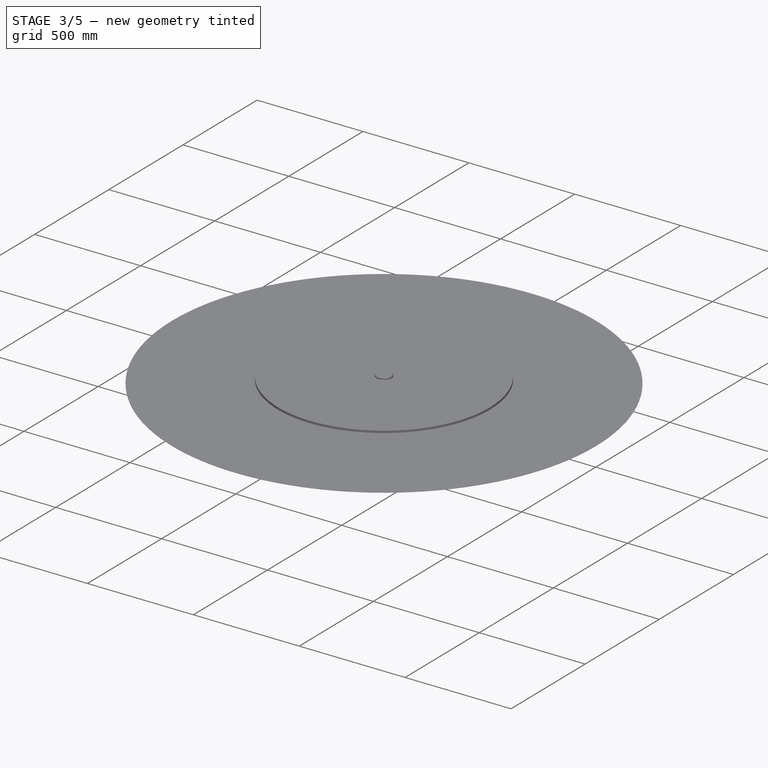
[diagram: stage 3 of 5 — iso view after this stage's code; geometry added in this stage tinted green]
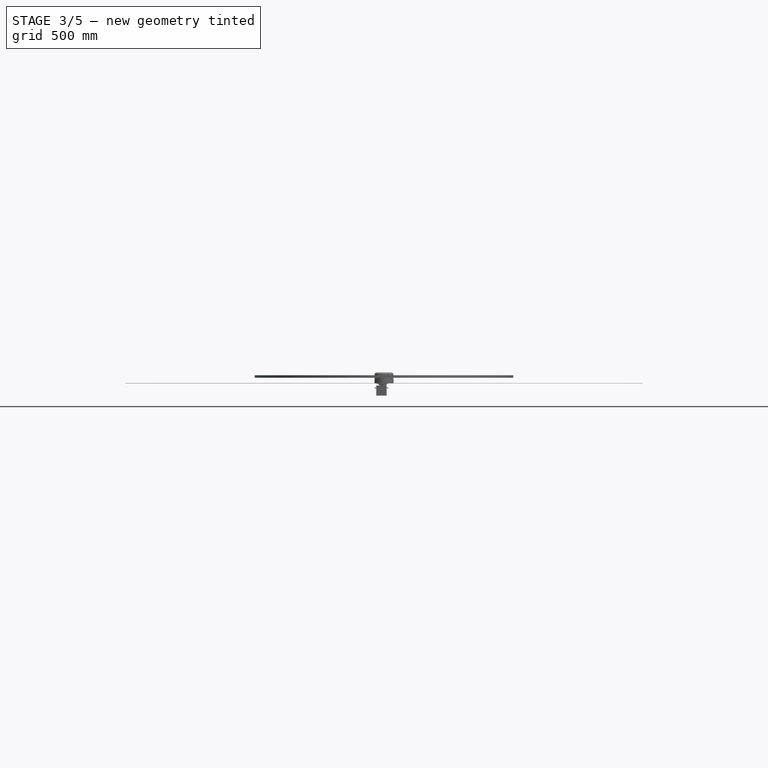
[diagram: stage 3 of 5 — front view after this stage's code; geometry added in this stage tinted green]
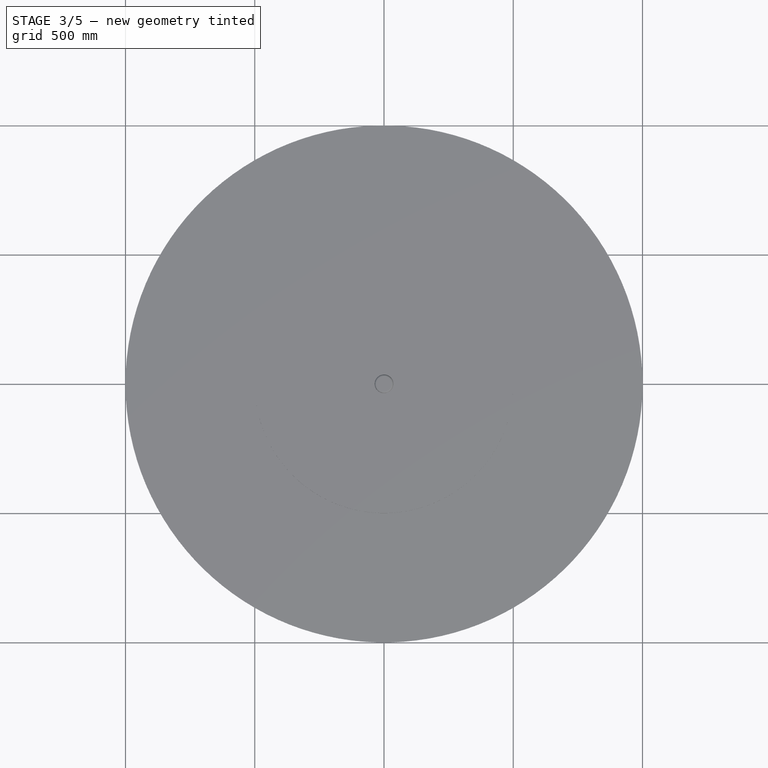
[diagram: stage 3 of 5 — top view after this stage's code; geometry added in this stage tinted green]
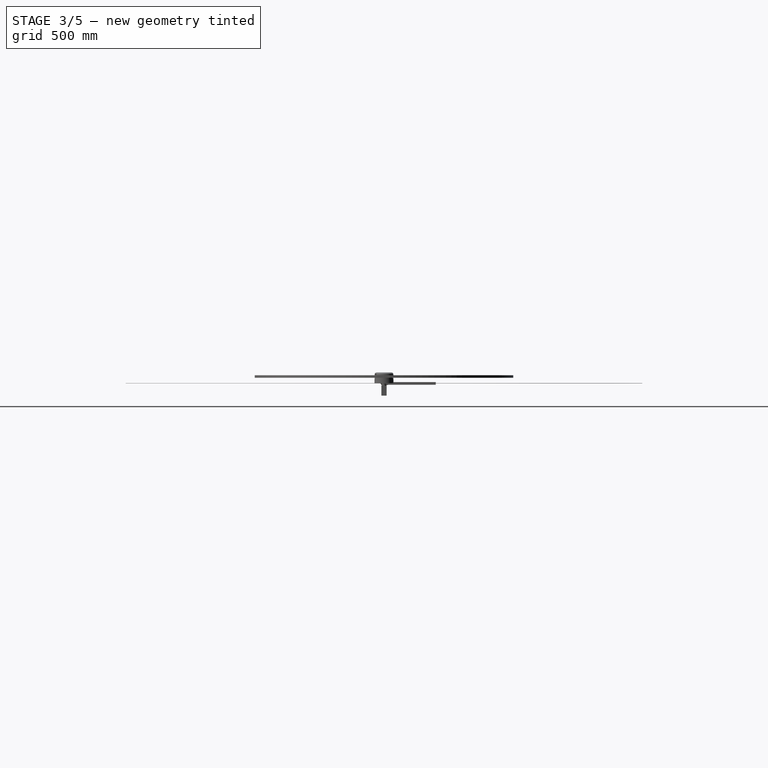
[diagram: stage 3 of 5 — right view after this stage's code; geometry added in this stage tinted green]
FEATURE [PartDesign::Body] Body054  label="CoreMR148"
  AutoGroupSolids = false
  ClaimAllChildren = false
  ExportMode = 0
  FixShape = 1
  Group = -> [Sketch118,Revolution007]
  InvalidShape = false
  Origin = -> Origin081
  SingleSolid = true
  Tip = -> Revolution007
  TreeRank = 0
  ValidateShape = false
  _ExportChildren = -> [Revolution007]
  _GroupVersion = 1
FEATURE [Sketcher::SketchObject] Sketch119
  ArcFitTolerance = 0
  AttachmentSupport = -> [XZ_Plane065]
  ExternalBSplineMaxDegree = 0
  ExternalBSplineTolerance = 0
  FixShape = 1
  FullyConstrained = true
  InternalTolerance = 1e-06
  InvalidShape = false
  MakeInternals = false
  MapMode = 5
  Placement = pos=(0,0,0) rot=(1,0,0;1.5708rad)
  Support = -> [XZ_Plane065]
  TreeRank = 0
  ValidateShape = false
  sketch-geometry (4):
    g0: LineSegment StartX=-6 StartY=4 StartZ=0 EndX=-5 EndY=4 EndZ=0
    g1: LineSegment StartX=-5 StartY=4 StartZ=0 EndX=-5 EndY=0 EndZ=0
    g2: LineSegment StartX=-5 StartY=0 StartZ=0 EndX=-6 EndY=0 EndZ=0
    g3: LineSegment StartX=-6 StartY=0 StartZ=0 EndX=-6 EndY=4 EndZ=0
  constraints (12):
    c: Coincident(g0,g1)
    c: Coincident(g1,g2)
    c: Coincident(g2,g3)
    c: Coincident(g3,g0)
    c: Horizontal(g0)
    c: Horizontal(g2)
    c: Vertical(g1)
    c: Vertical(g3)
    c: PointOnObject(g1,g-1)
    c: DistanceY(g3,g3) = 4
    c: DistanceX(g1) = -5
    c: DistanceX(g2) = -6
FEATURE [PartDesign::Revolution] Revolution008
  AddSubType = 0
  Angle = 360
  Axis = (0,-2e-16,1)
  Base = (0,0,0)
  ClaimChildren = false
  Fit = 0
  FitJoin = 0
  FixShape = 1
  InnerFit = 0
  InnerFitJoin = 0
  InvalidShape = false
  NewSolid = false
  Placement = pos=(0,0,0) rot=(1,0,0;1.5708rad)
  Profile = -> Sketch119
  ReferenceAxis = -> Sketch119 [V_Axis]
  Refine = true
  Suppress = false
  TreeRank = 0
  ValidateShape = false
  _ProfileBasedVersion = 0
FEATURE [PartDesign::Body] Body055  label="Sleeve"
  AutoGroupSolids = false
  ClaimAllChildren = false
  ExportMode = 0
  FixShape = 1
  Group = -> [Sketch119,Revolution008]
  InvalidShape = false
  Origin = -> Origin082
  SingleSolid = true
  Tip = -> Revolution008
  TreeRank = 0
  ValidateShape = false
  _ExportChildren = -> [Revolution008]
  _GroupVersion = 1
FEATURE [App::Part] Part001  label="MR148"
  ClaimAllChildren = false
  ExportMode = 1
  Group = -> [Body054,Body055]
  Origin = -> Origin079
  Placement = pos=(0,0,0) rot=(-1,0,0;1.5708rad)
  TreeRank = 0
  _ExportChildren = -> [Body054,Body055]
  _GroupVersion = 1
FEATURE [Sketcher::SketchObject] Sketch123
  ArcFitTolerance = 0
  AttachmentSupport = -> [XZ_Plane068]
  ExternalBSplineMaxDegree = 0
  ExternalBSplineTolerance = 0
  FixShape = 1
  FullyConstrained = false
  InternalTolerance = 1e-06
  InvalidShape = false
  MakeInternals = false
  MapMode = 5
  Placement = pos=(0,0,0) rot=(1,0,0;1.5708rad)
  Support = -> [XZ_Plane068]
  TreeRank = 0
  ValidateShape = false
  sketch-geometry (17):
    g0: ArcOfCircle CenterX=0 CenterY=0 CenterZ=0 NormalX=0 NormalY=0 NormalZ=1 AngleXU=0 Radius=8 StartAngle=5.67415 EndAngle=10.0338
    g1: ArcOfCircle CenterX=-2e-15 CenterY=1 CenterZ=0 NormalX=0 NormalY=0 NormalZ=1 AngleXU=0 Radius=26 StartAngle=4.4405 EndAngle=4.98428
    g2: ArcOfCircle CenterX=6.42512 CenterY=-22.0462 CenterZ=0 NormalX=0 NormalY=0 NormalZ=1 AngleXU=0 Radius=2.07488 StartAngle=4.98428 EndAngle=6.60035
    g3: ArcOfCircle CenterX=-6.42512 CenterY=-22.0462 CenterZ=0 NormalX=0 NormalY=0 NormalZ=1 AngleXU=0 Radius=2.07488 StartAngle=2.82442 EndAngle=4.4405
    g4: LineSegment [constr] StartX=8.5 StartY=0 StartZ=0 EndX=8.5 EndY=-36.4357 EndZ=0
    g5: GeomPoint [constr] X=0 Y=-25 Z=0
    g6: GeomPoint [constr] X=0 Y=8 Z=0
    g7: Circle CenterX=-5.5 CenterY=-21 CenterZ=0 NormalX=0 NormalY=0 NormalZ=1 AngleXU=0 Radius=1.5
    g8: Circle CenterX=0 CenterY=-21 CenterZ=0 NormalX=0 NormalY=0 NormalZ=1 AngleXU=0 Radius=1.5
    g9: Circle CenterX=5.5 CenterY=-21 CenterZ=0 NormalX=0 NormalY=0 NormalZ=1 AngleXU=0 Radius=1.5
    g10: Circle CenterX=-4 CenterY=-17 CenterZ=0 NormalX=0 NormalY=0 NormalZ=1 AngleXU=0 Radius=1.5
    g11: Circle CenterX=4 CenterY=-17 CenterZ=0 NormalX=0 NormalY=0 NormalZ=1 AngleXU=0 Radius=1.5
    g12: LineSegment StartX=8.39651 StartY=-21.3991 StartZ=0 EndX=5.42128 EndY=-12.3352 EndZ=0
    g13: LineSegment StartX=-8.39651 StartY=-21.3991 StartZ=0 EndX=-5.42128 EndY=-12.3352 EndZ=0
    g14: ArcOfCircle CenterX=-13.7607 CenterY=-9.59779 CenterZ=0 NormalX=0 NormalY=0 NormalZ=1 AngleXU=0 Radius=8.77717 StartAngle=5.96602 EndAngle=6.89222
    g15: ArcOfCircle CenterX=13.7607 CenterY=-9.59779 CenterZ=0 NormalX=0 NormalY=0 NormalZ=1 AngleXU=0 Radius=8.77717 StartAngle=2.53256 EndAngle=3.45876
    g16: LineSegment [constr] StartX=-5 StartY=-9.05974 StartZ=0 EndX=5 EndY=-9.05974 EndZ=0
  constraints (42):
    c: Coincident(g0,g-1)
    c: Diameter(g0) = 16
    c: Symmetric(g1,g1,g-2)
    c: Symmetric(g0,g0,g-2)
    c: Tangent(g3,g1) = -1.5708
    c: Tangent(g2,g1) = -1.5708
    c: Symmetric(g3,g2,g-2)
    c: PointOnObject(g4,g-1)
    c: Vertical(g4)
    c: Tangent(g2,g4)
    c: DistanceX(g4) = 8.5
    c: PointOnObject(g5,g1)
    c: PointOnObject(g6,g0)
    c: PointOnObject(g6,g-2)
    c: PointOnObject(g5,g-2)
    c: DistanceY(g5,g6) = 33
    c: PointOnObject(g8,g-2)
    c: Horizontal(g7,g8)
    c: Symmetric(g10,g11,g-2)
    c: Symmetric(g7,g9,g-2)
    c: DistanceY(g11) = -17
    c: DistanceY(g9) = -21
    c: Diameter(g7) = 3
    c: Equal(g7,g10)
    c: Equal(g7,g8)
    c: Equal(g7,g9)
    c: Equal(g7,g11)
    c: DistanceX(g7,g9) = 11
    c: DistanceX(g10,g11) = 8
    c: Tangent(g13,g3) = 1.5708
    c: Tangent(g12,g2) = -1.5708
    c: Symmetric(g12,g13,g-2)
    c: Tangent(g15,g12) = 1.5708
    c: Tangent(g15,g0) = 1.5708
    c: PointOnObject(g16,g14)
    c: Horizontal(g16)
    c: PointOnObject(g16,g15)
    c: DistanceX(g16,g16) = 10
    c: Tangent(g14,g13) = -1.5708
    c: Tangent(g14,g0) = 1.5708
    c: Distance(g2,g1) = 3
    c: Diameter(g1) = 52
FEATURE [PartDesign::Pad] Pad066
  AddSubType = 0
  AutoTaperInnerAngle = false
  CheckUpToFaceLimits = true
  ClaimChildren = false
  Direction = (1,1,1)
  Fit = 0
  FitJoin = 0
  FixShape = 1
  InnerFit = 0
  InnerFitJoin = 0
  InvalidShape = false
  Length = 4
  Length2 = 100
  Linearize = true
  NewSolid = false
  Placement = pos=(0,0,0) rot=(1,0,0;1.5708rad)
  Profile = -> Sketch123
  Refine = true
  Reversed = true
  Suppress = false
  TaperInnerAngle = 0
  TaperInnerAngleRev = 0
  TreeRank = 0
  Type = 0
  ValidateShape = false
  _ProfileBasedVersion = 1
FEATURE [Sketcher::SketchObject] Sketch124
  ArcFitTolerance = 0
  AttachmentSupport = -> [XZ_Plane068]
  ExternalBSplineMaxDegree = 0
  ExternalBSplineTolerance = 0
  FixShape = 1
  FullyConstrained = true
  InternalTolerance = 1e-06
  InvalidShape = false
  MakeInternals = false
  MapMode = 5
  Placement = pos=(0,0,0) rot=(1,0,0;1.5708rad)
  Support = -> [XZ_Plane068]
  TreeRank = 0
  ValidateShape = false
  sketch-geometry (1):
    g0: Circle CenterX=0 CenterY=0 CenterZ=0 NormalX=0 NormalY=0 NormalZ=1 AngleXU=0 Radius=8
  constraints (2):
    c: Coincident(g0,g-1)
    c: Diameter(g0) = 16
FEATURE [PartDesign::Pad] Pad067
  AddSubType = 0
  AutoTaperInnerAngle = false
  BaseFeature = -> Pad066
  CheckUpToFaceLimits = true
  ClaimChildren = false
  Direction = (1,1,1)
  Fit = 0
  FitJoin = 0
  FixShape = 1
  InnerFit = 0
  InnerFitJoin = 0
  InvalidShape = false
  Length = 10
  Length2 = 100
  Linearize = true
  NewSolid = false
  Placement = pos=(0,0,0) rot=(1,0,0;1.5708rad)
  Profile = -> Sketch124
  Refine = true
  Reversed = true
  Suppress = false
  TaperInnerAngle = 0
  TaperInnerAngleRev = 0
  TreeRank = 0
  Type = 0
  ValidateShape = false
  _ProfileBasedVersion = 1
FEATURE [Sketcher::SketchObject] Sketch125
  ArcFitTolerance = 0
  AttachmentSupport = -> [Pad067]
  ExternalBSplineMaxDegree = 0
  ExternalBSplineTolerance = 0
  FixShape = 1
  FullyConstrained = true
  InternalTolerance = 1e-06
  InvalidShape = false
  MakeInternals = false
  MapMode = 5
  Placement = pos=(0,10,2.2e-15) rot=(-1,0,0;1.5708rad)
  Support = -> [Pad067]
  TreeRank = 0
  ValidateShape = false
  sketch-geometry (1):
    g0: Circle CenterX=0 CenterY=0 CenterZ=0 NormalX=0 NormalY=0 NormalZ=1 AngleXU=0 Radius=3
  constraints (2):
    c: Coincident(g0,g-1)
    c: Diameter(g0) = 6
FEATURE [PartDesign::Pocket] Pocket049
  AddSubType = 1
  AutoTaperInnerAngle = false
  BaseFeature = -> Pad067
  CheckUpToFaceLimits = true
  ClaimChildren = false
  Direction = (1,1,1)
  Fit = 0
  FitJoin = 0
  FixShape = 1
  InnerFit = 0
  InnerFitJoin = 0
  InvalidShape = false
  Length = 3.2
  Length2 = 100
  Linearize = true
  NewSolid = false
  Placement = pos=(0,0,0) rot=(1,0,0;1.5708rad)
  Profile = -> Sketch125
  Refine = true
  Suppress = false
  TaperInnerAngle = 0
  TaperInnerAngleRev = 0
  TreeRank = 0
  Type = 0
  ValidateShape = false
  _ProfileBasedVersion = 1
  _Version = 1
FEATURE [Sketcher::SketchObject] Sketch126
  ArcFitTolerance = 0
  AttachmentSupport = -> [XZ_Plane068]
  ExternalBSplineMaxDegree = 0
  ExternalBSplineTolerance = 0
  FixShape = 1
  FullyConstrained = true
  InternalTolerance = 1e-06
  InvalidShape = false
  MakeInternals = false
  MapMode = 5
  Placement = pos=(0,0,0) rot=(1,0,0;1.5708rad)
  Support = -> [XZ_Plane068]
  TreeRank = 0
  ValidateShape = false
  sketch-geometry (1):
    g0: Circle CenterX=0 CenterY=0 CenterZ=0 NormalX=0 NormalY=0 NormalZ=1 AngleXU=0 Radius=1.5
  constraints (2):
    c: Coincident(g0,g-1)
    c: Diameter(g0) = 3
FEATURE [PartDesign::Pocket] Pocket050
  AddSubType = 1
  AutoTaperInnerAngle = false
  BaseFeature = -> Pocket049
  CheckUpToFaceLimits = true
  ClaimChildren = false
  Direction = (1,1,1)
  Fit = 0
  FitJoin = 0
  FixShape = 1
  InnerFit = 0
  InnerFitJoin = 0
  InvalidShape = false
  Length = 5
  Length2 = 100
  Linearize = true
  NewSolid = false
  Placement = pos=(0,0,0) rot=(1,0,0;1.5708rad)
  Profile = -> Sketch126
  Refine = true
  Suppress = false
  TaperInnerAngle = 0
  TaperInnerAngleRev = 0
  TreeRank = 0
  Type = 1
  ValidateShape = false
  _ProfileBasedVersion = 1
  _Version = 1
FEATURE [Sketcher::SketchObject] Sketch127
  ArcFitTolerance = 0
  AttachmentSupport = -> [XZ_Plane068]
  ExternalBSplineMaxDegree = 0
  ExternalBSplineTolerance = 0
  FixShape = 1
  FullyConstrained = true
  InternalTolerance = 1e-06
  InvalidShape = false
  MakeInternals = false
  MapMode = 5
  Placement = pos=(0,0,0) rot=(1,0,0;1.5708rad)
  Support = -> [XZ_Plane068]
  TreeRank = 0
  ValidateShape = false
  sketch-geometry (1):
    g0: Circle CenterX=0 CenterY=0 CenterZ=0 NormalX=0 NormalY=0 NormalZ=1 AngleXU=0 Radius=3.75
  constraints (2):
    c: Coincident(g0,g-1)
    c: Diameter(g0) = 7.5
FEATURE [PartDesign::Pocket] Pocket051
  AddSubType = 1
  AutoTaperInnerAngle = false
  BaseFeature = -> Pocket050
  CheckUpToFaceLimits = true
  ClaimChildren = false
  Direction = (1,1,1)
  Fit = 0
  FitJoin = 0
  FixShape = 1
  InnerFit = 0
  InnerFitJoin = 0
  InvalidShape = false
  Length = 4
  Length2 = 100
  Linearize = true
  NewSolid = false
  Placement = pos=(0,0,0) rot=(1,0,0;1.5708rad)
  Profile = -> Sketch127
  Refine = true
  Suppress = false
  TaperInnerAngle = 0
  TaperInnerAngleRev = 0
  TreeRank = 0
  Type = 0
  ValidateShape = false
  _ProfileBasedVersion = 1
  _Version = 1
FEATURE [PartDesign::Chamfer] Chamfer040
  AddSubType = 0
  Angle = 45
  Base = -> Pocket051 [Edge24,Edge14]
  BaseFeature = -> Pocket051
  ChamferType = 0
  FixShape = 1
  FlipDirection = false
  InvalidShape = false
  NewSolid = false
  Placement = pos=(0,0,0) rot=(1,0,0;1.5708rad)
  Refine = true
  Size = 0.2
  Size2 = 1
  SupportTransform = false
  Suppress = false
  TreeRank = 0
  UseAllEdges = false
  ValidateShape = false
FEATURE [PartDesign::Chamfer] Chamfer041
  AddSubType = 0
  Angle = 45
  Base = -> Chamfer040 [Edge25]
  BaseFeature = -> Chamfer040
  ChamferType = 0
  FixShape = 1
  FlipDirection = false
  InvalidShape = false
  NewSolid = false
  Placement = pos=(0,0,0) rot=(1,0,0;1.5708rad)
  Refine = true
  Size = 0.2
  Size2 = 1
  SupportTransform = false
  Suppress = false
  TreeRank = 0
  UseAllEdges = false
  ValidateShape = false
FEATURE [PartDesign::Body] Body057  label="PalonnierElastique"
  AutoGroupSolids = false
  ClaimAllChildren = false
  ExportMode = 0
  FixShape = 1
  Group = -> [Sketch123,Pad066,Sketch124,Pad067,Sketch125,Pocket049,Sketch126,Pocket050,Sketch127,Pocket051,Chamfer040,Chamfer041]
  InvalidShape = false
  Origin = -> Origin085
  Placement = pos=(-1.09497e-05,-4.80001,-1.51983e-05) rot=(0,1,0;1.5708rad)
  SingleSolid = true
  Tip = -> Chamfer041
  TreeRank = 0
  ValidateShape = false
  _ExportChildren = -> [Pad066,Pad067,Pocket049,Pocket050,Pocket051,Chamfer040,Chamfer041]
  _GroupVersion = 1
FEATURE [Sketcher::SketchObject] Sketch088
  ArcFitTolerance = 0
  AttachmentSupport = -> [XY_Plane050]
  ExternalBSplineMaxDegree = 0
  ExternalBSplineTolerance = 0
  FixShape = 1
  FullyConstrained = true
  InternalTolerance = 1e-06
  InvalidShape = false
  MakeInternals = false
  MapMode = 5
  Support = -> [XY_Plane050]
  TreeRank = 0
  ValidateShape = false
  sketch-geometry (7):
    g0: Circle CenterX=0 CenterY=0 CenterZ=0 NormalX=0 NormalY=0 NormalZ=1 AngleXU=0 Radius=10
    g1: Circle CenterX=0 CenterY=7 CenterZ=0 NormalX=0 NormalY=0 NormalZ=1 AngleXU=0 Radius=1.5
    g2: Circle CenterX=7 CenterY=0 CenterZ=0 NormalX=0 NormalY=0 NormalZ=1 AngleXU=0 Radius=1.5
    g3: Circle CenterX=0 CenterY=-7 CenterZ=0 NormalX=0 NormalY=0 NormalZ=1 AngleXU=0 Radius=1.5
    g4: Circle CenterX=-7 CenterY=0 CenterZ=0 NormalX=0 NormalY=0 NormalZ=1 AngleXU=0 Radius=1.5
    g5: Circle [constr] CenterX=0 CenterY=0 CenterZ=0 NormalX=0 NormalY=0 NormalZ=1 AngleXU=0 Radius=7
    g6: Circle CenterX=0 CenterY=0 CenterZ=0 NormalX=0 NormalY=0 NormalZ=1 AngleXU=0 Radius=1.5
  constraints (18):
    c: Coincident(g0,g-1)
    c: Diameter(g0) = 20
    c: PointOnObject(g1,g-2)
    c: PointOnObject(g2,g-1)
    c: PointOnObject(g3,g-2)
    c: PointOnObject(g4,g-1)
    c: Equal(g4,g1)
    c: Equal(g1,g2)
    c: Equal(g2,g3)
    c: Diameter(g1) = 3
    c: Coincident(g5,g0)
    c: PointOnObject(g1,g5)
    c: PointOnObject(g2,g5)
    c: PointOnObject(g3,g5)
    c: PointOnObject(g4,g5)
    c: DistanceX(g4,g2) = 14
    c: Coincident(g6,g0)
    c: Equal(g2,g6)
FEATURE [PartDesign::Pad] Pad052
  AddSubType = 0
  AutoTaperInnerAngle = false
  CheckUpToFaceLimits = true
  ClaimChildren = false
  Direction = (1,1,1)
  Fit = 0
  FitJoin = 0
  FixShape = 1
  InnerFit = 0
  InnerFitJoin = 0
  InvalidShape = false
  Length = 2
  Length2 = 100
  Linearize = true
  NewSolid = false
  Profile = -> Sketch088
  Refine = true
  Reversed = true
  Suppress = false
  TaperInnerAngle = 0
  TaperInnerAngleRev = 0
  TreeRank = 0
  Type = 0
  ValidateShape = false
  _ProfileBasedVersion = 1
FEATURE [Sketcher::SketchObject] Sketch089
  ArcFitTolerance = 0
  AttachmentSupport = -> [XY_Plane050]
  ExternalBSplineMaxDegree = 0
  ExternalBSplineTolerance = 0
  FixShape = 1
  FullyConstrained = true
  InternalTolerance = 1e-06
  InvalidShape = false
  MakeInternals = false
  MapMode = 5
  Support = -> [XY_Plane050]
  TreeRank = 0
  ValidateShape = false
  sketch-geometry (2):
    g0: Circle CenterX=0 CenterY=0 CenterZ=0 NormalX=0 NormalY=0 NormalZ=1 AngleXU=0 Radius=4.7
    g1: Circle CenterX=0 CenterY=0 CenterZ=0 NormalX=0 NormalY=0 NormalZ=1 AngleXU=0 Radius=3
  constraints (4):
    c: Coincident(g0,g-1)
    c: Coincident(g1,g0)
    c: Diameter(g0) = 9.4
    c: Diameter(g1) = 6
FEATURE [PartDesign::Pad] Pad051
  AddSubType = 0
  AutoTaperInnerAngle = false
  BaseFeature = -> Pad052
  CheckUpToFaceLimits = true
  ClaimChildren = false
  Direction = (1,1,1)
  Fit = 0
  FitJoin = 0
  FixShape = 1
  InnerFit = 0
  InnerFitJoin = 0
  InvalidShape = false
  Length = 5.4
  Length2 = 100
  Linearize = true
  NewSolid = false
  Profile = -> Sketch089
  Refine = true
  Reversed = true
  Suppress = false
  TaperInnerAngle = 0
  TaperInnerAngleRev = 0
  TreeRank = 0
  Type = 0
  ValidateShape = false
  _ProfileBasedVersion = 1
FEATURE [PartDesign::Body] Body043  label="ServoAxis001"
  AutoGroupSolids = false
  ClaimAllChildren = false
  ExportMode = 0
  FixShape = 1
  Group = -> [Sketch090,Pad053,Chamfer029]
  InvalidShape = false
  Origin = -> Origin064
  SingleSolid = true
  Tip = -> Chamfer029
  TreeRank = 0
  ValidateShape = false
  _ExportChildren = -> [Pad053,Chamfer029]
  _GroupVersion = 1
FEATURE [App::Part] Part015  label="ServoMG996R001"
  ClaimAllChildren = false
  ExportMode = 1
  Group = -> [Body041,Body043]
  Origin = -> Origin061
  Placement = pos=(0,0,0) rot=(1,0,0;1.5708rad)
  TreeRank = 0
  _ExportChildren = -> [Body041,Body043]
  _GroupVersion = 1
FEATURE [Sketcher::SketchObject] Sketch162
  ArcFitTolerance = 0
  AttachmentSupport = -> [XY_Plane096]
  ExternalBSplineMaxDegree = 0
  ExternalBSplineTolerance = 0
  FixShape = 1
  FullyConstrained = true
  InternalTolerance = 1e-06
  InvalidShape = false
  MakeInternals = false
  MapMode = 5
  Support = -> [XY_Plane096]
  TreeRank = 36
  ValidateShape = false
  sketch-geometry (12):
    g0: LineSegment StartX=-17 StartY=2.106e-12 StartZ=0 EndX=-21.7 EndY=5.127e-13 EndZ=0
    g1: LineSegment StartX=-21.7 StartY=5.127e-13 StartZ=0 EndX=-21.7 EndY=-2.4 EndZ=0
    g2: LineSegment StartX=-21.7 StartY=-2.4 StartZ=0 EndX=-17 EndY=-2.4 EndZ=0
    g3: LineSegment StartX=-17 StartY=-2.4 StartZ=0 EndX=-17 EndY=-6.8 EndZ=0
    g4: LineSegment StartX=-17 StartY=-6.8 StartZ=0 EndX=6 EndY=-6.8 EndZ=0
    g5: LineSegment StartX=6 StartY=-6.8 StartZ=0 EndX=6 EndY=-2.4 EndZ=0
    g6: LineSegment StartX=6 StartY=-2.4 StartZ=0 EndX=10.7 EndY=-2.4 EndZ=0
    g7: LineSegment StartX=10.7 StartY=-2.4 StartZ=0 EndX=10.7 EndY=1.124e-12 EndZ=0
    g8: LineSegment StartX=10.7 StartY=1.1239e-12 StartZ=0 EndX=6 EndY=-1.9734e-12 EndZ=0
    g9: LineSegment StartX=6 StartY=-1.9734e-12 StartZ=0 EndX=6 EndY=15.8 EndZ=0
    g10: LineSegment StartX=6 StartY=15.8 StartZ=0 EndX=-17 EndY=15.8 EndZ=0
    g11: LineSegment StartX=-17 StartY=15.8 StartZ=0 EndX=-17 EndY=2.1068e-12 EndZ=0
  constraints (36):
    c: PointOnObject(g0,g-1)
    c: PointOnObject(g0,g-1)
    c: Coincident(g0,g1)
    c: Vertical(g1)
    c: Coincident(g1,g2)
    c: Horizontal(g2)
    c: Coincident(g2,g3)
    c: Vertical(g3)
    c: Coincident(g3,g4)
    c: Horizontal(g4)
    c: Coincident(g4,g5)
    c: Vertical(g5)
    c: Coincident(g5,g6)
    c: Horizontal(g6)
    c: Coincident(g6,g7)
    c: PointOnObject(g7,g-1)
    c: Vertical(g7)
    c: Coincident(g7,g8)
    c: PointOnObject(g8,g-1)
    c: Coincident(g8,g9)
    c: Vertical(g9)
    c: Coincident(g9,g10)
    c: Horizontal(g10)
    c: Coincident(g10,g11)
    c: Coincident(g11,g0)
    c: Vertical(g11)
    c: Equal(g0,g2)
    c: Equal(g2,g6)
    c: Equal(g6,g8)
    c: DistanceX(g4) = 6
    c: DistanceX(g4,g4) = 23
    c: DistanceX(g1,g6) = 32.4
    c: DistanceY(g3,g3) = 4.4
    c: DistanceY(g1,g1) = 2.4
    c: Equal(g7,g1)
    c: DistanceY(g9,g9) = 15.8
FEATURE [PartDesign::Pad] Pad068
  AddSubType = 0
  AlongSketchNormal = false
  AutoTaperInnerAngle = false
  CheckUpToFaceLimits = true
  ClaimChildren = false
  Direction = (0,0,1)
  Fit = 0
  FitJoin = 0
  FixShape = 1
  InnerFit = 0
  InnerFitJoin = 0
  InvalidShape = false
  Length = 12
  Length2 = 100
  Linearize = true
  Midplane = true
  NewSolid = false
  Profile = -> Sketch162
  Refine = true
  Suppress = false
  TaperInnerAngle = 0
  TaperInnerAngleRev = 0
  TreeRank = 37
  Type = 0
  ValidateShape = false
  _ProfileBasedVersion = 1
FEATURE [Sketcher::SketchObject] Sketch163
  ArcFitTolerance = 0
  AttachmentSupport = -> [Pad068]
  ExternalBSplineMaxDegree = 0
  ExternalBSplineTolerance = 0
  FixShape = 1
  FullyConstrained = true
  InternalTolerance = 1e-06
  InvalidShape = false
  MakeInternals = false
  MapMode = 5
  Placement = pos=(0,-6.8,0) rot=(1,0,0;1.5708rad)
  Support = -> [Pad068]
  TreeRank = 38
  ValidateShape = false
  sketch-geometry (4):
    g0: ArcOfCircle CenterX=-5.554e-13 CenterY=-7.838e-13 CenterZ=0 NormalX=0 NormalY=0 NormalZ=1 AngleXU=0 Radius=6 StartAngle=3.57137 EndAngle=8.995
    g1: ArcOfCircle CenterX=-6 CenterY=4.736e-13 CenterZ=0 NormalX=0 NormalY=0 NormalZ=1 AngleXU=0 Radius=2.5 StartAngle=1.5708 EndAngle=4.71239
    g2: LineSegment StartX=-6 StartY=2.5 StartZ=0 EndX=-5.45436 EndY=2.5 EndZ=0
    g3: LineSegment StartX=-6 StartY=-2.5 StartZ=0 EndX=-5.45436 EndY=-2.5 EndZ=0
  constraints (11):
    c: Coincident(g0,g-1)
    c: PointOnObject(g1,g-1)
    c: Coincident(g2,g0)
    c: Coincident(g3,g0)
    c: Horizontal(g3)
    c: Horizontal(g2)
    c: Tangent(g2,g1) = 1.5708
    c: Tangent(g3,g1) = -1.5708
    c: Radius(g0) = 6
    c: DistanceY(g1,g1) = 5
    c: DistanceX(g1,g0) = 6
FEATURE [PartDesign::Pad] Pad069
  AddSubType = 0
  AlongSketchNormal = false
  AutoTaperInnerAngle = false
  BaseFeature = -> Pad068
  CheckUpToFaceLimits = true
  ClaimChildren = false
  Direction = (0,-1,2e-16)
  Fit = 0
  FitJoin = 0
  FixShape = 1
  InnerFit = 0
  InnerFitJoin = 0
  InvalidShape = false
  Length = 4
  Length2 = 100
  Linearize = true
  NewSolid = false
  Profile = -> Sketch163
  Refine = true
  Suppress = false
  TaperInnerAngle = 0
  TaperInnerAngleRev = 0
  TreeRank = 39
  Type = 0
  ValidateShape = false
  _ProfileBasedVersion = 1
FEATURE [Sketcher::SketchObject] Sketch164
  ArcFitTolerance = 0
  AttachmentSupport = -> [XZ_Plane096]
  ExternalBSplineMaxDegree = 0
  ExternalBSplineTolerance = 0
  ExternalGeometry = -> [Pad069]
  FixShape = 1
  FullyConstrained = true
  InternalTolerance = 1e-06
  InvalidShape = false
  MakeInternals = false
  MapMode = 5
  Placement = pos=(0,0,0) rot=(1,0,0;1.5708rad)
  Support = -> [XZ_Plane096]
  TreeRank = 40
  ValidateShape = false
  sketch-geometry (4):
    g0: Circle CenterX=-19.25 CenterY=-8.88e-14 CenterZ=0 NormalX=0 NormalY=0 NormalZ=1 AngleXU=0 Radius=1
    g1: Circle CenterX=8.25 CenterY=8.765e-12 CenterZ=0 NormalX=0 NormalY=0 NormalZ=1 AngleXU=0 Radius=1
    g2: LineSegment [constr] StartX=-21.7 StartY=-6 StartZ=0 EndX=10.7 EndY=6 EndZ=0
    g3: GeomPoint [constr] X=-5.5 Y=5.2304e-12 Z=0
  constraints (8):
    c: PointOnObject(g0,g-1)
    c: DistanceX(g0,g1) = 27.5
    c: Equal(g0,g1)
    c: Diameter(g0) = 2
    c: Coincident(g2,g-3)
    c: Coincident(g2,g-4)
    c: Symmetric(g-4,g-3,g3)
    c: Symmetric(g0,g1,g3)
FEATURE [PartDesign::Pocket] Pocket052
  AddSubType = 1
  AutoTaperInnerAngle = false
  BaseFeature = -> Pad069
  CheckUpToFaceLimits = true
  ClaimChildren = false
  Direction = (1,1,1)
  Fit = 0
  FitJoin = 0
  FixShape = 1
  InnerFit = 0
  InnerFitJoin = 0
  InvalidShape = false
  Length = 5
  Length2 = 100
  Linearize = true
  NewSolid = false
  Profile = -> Sketch164
  Refine = true
  Reversed = true
  Suppress = false
  TaperInnerAngle = 0
  TaperInnerAngleRev = 0
  TreeRank = 41
  Type = 1
  ValidateShape = false
  _ProfileBasedVersion = 1
  _Version = 1
FEATURE [PartDesign::Body] Body076  label="BodyServo90S"
  AutoGroupSolids = false
  ClaimAllChildren = false
  ExportMode = 0
  FixShape = 1
  Group = -> [Sketch162,Pad068,Sketch163,Pad069,Sketch164,Pocket052]
  InvalidShape = false
  Origin = -> Origin
  SingleSolid = true
  Tip = -> Pocket052
  TreeRank = 35
  ValidateShape = false
  _ExportChildren = -> [Pad068,Pad069,Pocket052]
  _GroupVersion = 1
FEATURE [Part::SubShapeBinder] Import  label="Import(Pocket052)"
  BindCopyOnChange = 0
  BindMode = 0
  ClaimChildren = false
  Context = -> Group007 [Part.Body077.Import.]
  EdgeTolerance = 1e-06
  FillStyle = 0
  FixShape = 1
  Fuse = false
  InvalidShape = false
  MakeFace = false
  MergeEdges = true
  OffsetFill = false
  OffsetIntersection = false
  OffsetJoinType = 0
  OffsetOpenResult = false
  Outline = false
  PartialLoad = false
  Relative = true
  SplitEdges = false
  Support = -> [Body076[Pocket052.]]
  TightBound = false
  TreeRank = 52
  ValidateShape = false
  _Version = 8
FEATURE [Sketcher::SketchObject] Sketch165
  ArcFitTolerance = 0
  AttachmentSupport = -> [Import]
  ExternalBSplineMaxDegree = 0
  ExternalBSplineTolerance = 0
  FixShape = 1
  FullyConstrained = true
  InternalTolerance = 1e-06
  InvalidShape = false
  MakeInternals = false
  MapMode = 5
  Placement = pos=(0,-10.8,2.3e-15) rot=(1,0,0;1.5708rad)
  Support = -> [Import]
  TreeRank = 53
  ValidateShape = false
  sketch-geometry (1):
    g0: Circle CenterX=0 CenterY=0 CenterZ=0 NormalX=0 NormalY=0 NormalZ=1 AngleXU=0 Radius=2.25
  constraints (2):
    c: Coincident(g0,g-1)
    c: Diameter(g0) = 4.5
FEATURE [PartDesign::Pad] Pad070
  AddSubType = 0
  AlongSketchNormal = false
  AutoTaperInnerAngle = false
  CheckUpToFaceLimits = true
  ClaimChildren = false
  Direction = (0,-1,2e-16)
  Fit = 0
  FitJoin = 0
  FixShape = 1
  InnerFit = 0
  InnerFitJoin = 0
  InvalidShape = false
  Length = 2.4
  Length2 = 100
  Linearize = true
  NewSolid = false
  Profile = -> Sketch165
  Refine = true
  Suppress = false
  TaperInnerAngle = 0
  TaperInnerAngleRev = 0
  TreeRank = 54
  Type = 0
  ValidateShape = false
  _ProfileBasedVersion = 1
FEATURE [PartDesign::Body] Body077  label="AxleServo90S"
  AutoGroupSolids = false
  ClaimAllChildren = false
  ExportMode = 0
  FixShape = 1
  Group = -> [Import,Sketch165,Pad070]
  InvalidShape = false
  Origin = -> Origin162
  SingleSolid = true
  Tip = -> Pad070
  TreeRank = 51
  ValidateShape = false
  _ExportChildren = -> [Import,Pad070]
  _GroupVersion = 1
FEATURE [Part::SubShapeBinder] Import001  label="Import001(Pocket052)"
  BindCopyOnChange = 0
  BindMode = 0
  ClaimChildren = false
  Context = -> <external ../table_2022.FCStd>#Link005 [Link008.Part031.Link106.Body078.Import001.]
  EdgeTolerance = 1e-06
  FillStyle = 0
  FixShape = 1
  Fuse = false
  InvalidShape = false
  MakeFace = false
  MergeEdges = true
  OffsetFill = false
  OffsetIntersection = false
  OffsetJoinType = 0
  OffsetOpenResult = false
  Outline = false
  PartialLoad = false
  Relative = true
  SplitEdges = false
  Support = -> [Body076[Pocket052.]]
  TightBound = false
  TreeRank = 65
  ValidateShape = false
  _Version = 8
FEATURE [Sketcher::SketchObject] Sketch166
  ArcFitTolerance = 0
  AttachmentSupport = -> [Import001]
  ExternalBSplineMaxDegree = 0
  ExternalBSplineTolerance = 0
  FixShape = 1
  FullyConstrained = true
  InternalTolerance = 1e-06
  InvalidShape = false
  MakeInternals = false
  MapMode = 5
  Placement = pos=(6,0,0) rot=(0.57735,0.57735,0.57735;2.0944rad)
  Support = -> [Import001]
  TreeRank = 74
  ValidateShape = false
  sketch-geometry (3):
    g0: Circle CenterX=10 CenterY=-9.4173e-12 CenterZ=0 NormalX=0 NormalY=0 NormalZ=1 AngleXU=0 Radius=0.5
    g1: Circle CenterX=10 CenterY=1 CenterZ=0 NormalX=0 NormalY=0 NormalZ=1 AngleXU=0 Radius=0.5
    g2: Circle CenterX=10 CenterY=-1 CenterZ=0 NormalX=0 NormalY=0 NormalZ=1 AngleXU=0 Radius=0.5
  constraints (9):
    c: PointOnObject(g0,g-1)
    c: Tangent(g1,g0)
    c: Tangent(g2,g0)
    c: Vertical(g2,g0)
    c: Vertical(g0,g1)
    c: Equal(g1,g0)
    c: Equal(g1,g2)
    c: Diameter(g1) = 1
    c: DistanceX(g0) = 10
FEATURE [PartDesign::Pad] Pad071
  AddSubType = 0
  AlongSketchNormal = false
  AutoTaperInnerAngle = false
  CheckUpToFaceLimits = true
  ClaimChildren = false
  Direction = (1,0,0)
  Fit = 0
  FitJoin = 0
  FixShape = 1
  InnerFit = 0
  InnerFitJoin = 0
  InvalidShape = false
  Length = 10
  Length2 = 100
  Linearize = true
  NewSolid = false
  Profile = -> Sketch166
  Refine = true
  Suppress = false
  TaperInnerAngle = 0
  TaperInnerAngleRev = 0
  TreeRank = 75
  Type = 0
  ValidateShape = false
  _ProfileBasedVersion = 1
FEATURE [PartDesign::Body] Body078  label="Cables001"
  AutoGroupSolids = true
  ClaimAllChildren = false
  ExportMode = 0
  FixShape = 1
  Group = -> [Import001,Sketch166,Pad071]
  InvalidShape = false
  Origin = -> Origin163
  Tip = -> Pad071
  TreeRank = 64
  ValidateShape = false
  _ExportChildren = -> [Import001,Pad071]
  _GroupVersion = 1
FEATURE [App::Part] Part  label="ServoMG-SG90"
  ClaimAllChildren = false
  ExportMode = 1
  Group = -> [Body076,Body077,Body078]
  Origin = -> Origin161
  TreeRank = 25
  _ExportChildren = -> [Body076,Body077,Body078]
  _GroupVersion = 1
FEATURE [App::DocumentObjectGroup] Group007  label="Servomoteur"
  ClaimAllChildren = true
  ExportMode = 1
  Group = -> [Body057,Body042,Part015,Part]
  TreeRank = 0
  _GroupVersion = 1
FEATURE [Sketcher::SketchObject] Sketch169
  ArcFitTolerance = 0
  AttachmentSupport = -> [XZ_Plane100]
  ExternalBSplineMaxDegree = 0
  ExternalBSplineTolerance = 0
  FixShape = 1
  FullyConstrained = true
  InternalTolerance = 1e-06
  InvalidShape = false
  MakeInternals = false
  MapMode = 5
  Placement = pos=(0,0,0) rot=(1,0,0;1.5708rad)
  Support = -> [XZ_Plane100]
  TreeRank = 0
  ValidateShape = false
  sketch-geometry (12):
    g0: LineSegment StartX=-5.5 StartY=1.2718e-12 StartZ=0 EndX=-6.5 EndY=1.052e-12 EndZ=0
    g1: LineSegment StartX=-6.5 StartY=1.052e-12 StartZ=0 EndX=-6.5 EndY=5 EndZ=0
    g2: LineSegment StartX=-6.5 StartY=5 StartZ=0 EndX=-5.5 EndY=5 EndZ=0
    g3: LineSegment StartX=-5.5 StartY=5 StartZ=0 EndX=-5.5 EndY=4.6 EndZ=0
    g4: LineSegment StartX=-5.5 StartY=4.6 StartZ=0 EndX=-2.5 EndY=4.6 EndZ=0
    g5: LineSegment StartX=-2.5 StartY=4.6 StartZ=0 EndX=-2.5 EndY=5 EndZ=0
    g6: LineSegment StartX=-2.5 StartY=5 StartZ=0 EndX=-1.5 EndY=5 EndZ=0
    g7: LineSegment StartX=-1.5 StartY=5 StartZ=0 EndX=-1.5 EndY=0 EndZ=0
    g8: LineSegment StartX=-1.5 StartY=0 StartZ=0 EndX=-2.5 EndY=0 EndZ=0
    g9: LineSegment StartX=-2.5 StartY=0 StartZ=0 EndX=-2.5 EndY=0.4 EndZ=0
    g10: LineSegment StartX=-2.5 StartY=0.4 StartZ=0 EndX=-5.5 EndY=0.4 EndZ=0
    g11: LineSegment StartX=-5.5 StartY=0.4 StartZ=0 EndX=-5.5 EndY=1.2718e-12 EndZ=0
  constraints (36):
    c: PointOnObject(g0,g-1)
    c: PointOnObject(g0,g-1)
    c: Coincident(g0,g1)
    c: Vertical(g1)
    c: Coincident(g1,g2)
    c: Horizontal(g2)
    c: Coincident(g2,g3)
    c: Vertical(g3)
    c: Coincident(g3,g4)
    c: Horizontal(g4)
    c: Coincident(g4,g5)
    c: Vertical(g5)
    c: Coincident(g5,g6)
    c: Horizontal(g6)
    c: Coincident(g6,g7)
    c: PointOnObject(g7,g-1)
    c: Vertical(g7)
    c: Coincident(g7,g8)
    c: PointOnObject(g8,g-1)
    c: Coincident(g8,g9)
    c: Vertical(g9)
    c: Coincident(g9,g10)
    c: Horizontal(g10)
    c: Coincident(g10,g11)
    c: Coincident(g11,g0)
    c: Vertical(g11)
    c: DistanceX(g7) = -1.5
    c: DistanceX(g0) = -6.5
    c: Equal(g8,g0)
    c: Equal(g2,g6)
    c: Equal(g4,g10)
    c: Equal(g3,g11)
    c: DistanceY(g3,g3) = 0.4
    c: DistanceX(g8,g8) = 1
    c: DistanceY(g1,g1) = 5
    c: PointOnObject(g2,g6)
FEATURE [PartDesign::Revolution] Revolution012
  AddSubType = 0
  Angle = 360
  Axis = (0,-2e-16,1)
  Base = (0,0,0)
  ClaimChildren = false
  Fit = 0
  FitJoin = 0
  FixShape = 1
  InnerFit = 0
  InnerFitJoin = 0
  InvalidShape = false
  NewSolid = false
  Placement = pos=(0,0,0) rot=(1,0,0;1.5708rad)
  Profile = -> Sketch169
  ReferenceAxis = -> Sketch169 [V_Axis]
  Refine = true
  Suppress = false
  TreeRank = 0
  ValidateShape = false
  _ProfileBasedVersion = 0
FEATURE [PartDesign::Body] Body080  label="CoreMR149"
  AutoGroupSolids = false
  ClaimAllChildren = false
  ExportMode = 0
  FixShape = 1
  Group = -> [Sketch169,Revolution012]
  InvalidShape = false
  Origin = -> Origin166
  SingleSolid = true
  Tip = -> Revolution012
  TreeRank = 94
  ValidateShape = false
  _ExportChildren = -> [Revolution012]
  _GroupVersion = 1
FEATURE [Sketcher::SketchObject] Sketch170
  ArcFitTolerance = 0
  AttachmentSupport = -> [XZ_Plane101]
  ExternalBSplineMaxDegree = 0
  ExternalBSplineTolerance = 0
  FixShape = 1
  FullyConstrained = true
  InternalTolerance = 1e-06
  InvalidShape = false
  MakeInternals = false
  MapMode = 5
  Placement = pos=(0,0,0) rot=(1,0,0;1.5708rad)
  Support = -> [XZ_Plane101]
  TreeRank = 0
  ValidateShape = false
  sketch-geometry (4):
    g0: LineSegment StartX=-5.5 StartY=5 StartZ=0 EndX=-2.5 EndY=5 EndZ=0
    g1: LineSegment StartX=-2.5 StartY=5 StartZ=0 EndX=-2.5 EndY=0 EndZ=0
    g2: LineSegment StartX=-2.5 StartY=3e-16 StartZ=0 EndX=-5.5 EndY=3e-16 EndZ=0
    g3: LineSegment StartX=-5.5 StartY=3e-16 StartZ=0 EndX=-5.5 EndY=5 EndZ=0
  constraints (12):
    c: Coincident(g0,g1)
    c: Coincident(g1,g2)
    c: Coincident(g2,g3)
    c: Coincident(g3,g0)
    c: Horizontal(g0)
    c: Horizontal(g2)
    c: Vertical(g1)
    c: Vertical(g3)
    c: PointOnObject(g1,g-1)
    c: DistanceY(g3,g3) = 5
    c: DistanceX(g1) = -2.5
    c: DistanceX(g2) = -5.5
FEATURE [PartDesign::Revolution] Revolution013
  AddSubType = 0
  Angle = 360
  Axis = (0,-2e-16,1)
  Base = (0,0,0)
  ClaimChildren = false
  Fit = 0
  FitJoin = 0
  FixShape = 1
  InnerFit = 0
  InnerFitJoin = 0
  InvalidShape = false
  NewSolid = false
  Placement = pos=(0,0,0) rot=(1,0,0;1.5708rad)
  Profile = -> Sketch170
  ReferenceAxis = -> Sketch170 [V_Axis]
  Refine = true
  Suppress = false
  TreeRank = 0
  ValidateShape = false
  _ProfileBasedVersion = 0
FEATURE [PartDesign::Body] Body081  label="Sleeve001"
  AutoGroupSolids = false
  ClaimAllChildren = false
  ExportMode = 0
  FixShape = 1
  Group = -> [Sketch170,Revolution013]
  InvalidShape = false
  Origin = -> Origin167
  SingleSolid = true
  Tip = -> Revolution013
  TreeRank = 95
  ValidateShape = false
  _ExportChildren = -> [Revolution013]
  _GroupVersion = 1
FEATURE [App::Part] Part035  label="633ZZ"
  ClaimAllChildren = false
  ExportMode = 1
  Group = -> [Body080,Body081]
  Origin = -> Origin165
  Placement = pos=(0,0,0) rot=(-1,0,0;1.5708rad)
  TreeRank = 97
  _ExportChildren = -> [Body080,Body081]
  _GroupVersion = 1
FEATURE [Sketcher::SketchObject] Sketch171
  ArcFitTolerance = 0
  AttachmentSupport = -> [XY_Plane102]
  ExternalBSplineMaxDegree = 0
  ExternalBSplineTolerance = 0
  FixShape = 1
  FullyConstrained = true
  InternalTolerance = 1e-06
  InvalidShape = false
  MakeInternals = false
  MapMode = 5
  Support = -> [XY_Plane102]
  TreeRank = 111
  ValidateShape = false
  sketch-geometry (1):
    g0: Circle CenterX=0 CenterY=0 CenterZ=0 NormalX=0 NormalY=0 NormalZ=1 AngleXU=0 Radius=9
  constraints (2):
    c: Coincident(g0,g-1)
    c: Diameter(g0) = 18
FEATURE [PartDesign::Pad] Pad073
  AddSubType = 0
  AlongSketchNormal = false
  AutoTaperInnerAngle = false
  CheckUpToFaceLimits = true
  ClaimChildren = false
  Direction = (0,0,1)
  Fit = 0
  FitJoin = 0
  FixShape = 1
  InnerFit = 0
  InnerFitJoin = 0
  InvalidShape = false
  Length = 9
  Length2 = 100
  Linearize = true
  NewSolid = false
  Profile = -> Sketch171
  Refine = true
  Suppress = false
  TaperInnerAngle = 0
  TaperInnerAngleRev = 0
  TreeRank = 112
  Type = 0
  ValidateShape = false
  _ProfileBasedVersion = 1
FEATURE [PartDesign::Fillet] Fillet041
  AddSubType = 0
  Base = -> Pad073 [Edge3]
  BaseFeature = -> Pad073
  FixShape = 1
  InvalidShape = false
  NewSolid = false
  Radius = 0.4
  Refine = true
  SupportTransform = false
  Suppress = false
  TreeRank = 113
  UseAllEdges = false
  ValidateShape = false
FEATURE [Sketcher::SketchObject] Sketch172
  ArcFitTolerance = 0
  AttachmentSupport = -> [XZ_Plane102]
  ExternalBSplineMaxDegree = 0
  ExternalBSplineTolerance = 0
  FixShape = 1
  FullyConstrained = true
  InternalTolerance = 1e-06
  InvalidShape = false
  MakeInternals = false
  MapMode = 5
  Placement = pos=(0,0,0) rot=(1,0,0;1.5708rad)
  Support = -> [XZ_Plane102]
  TreeRank = 114
  ValidateShape = false
  sketch-geometry (8):
    g0: LineSegment StartX=0 StartY=-2.075e-13 StartZ=0 EndX=7.75 EndY=-2.075e-13 EndZ=0
    g1: LineSegment StartX=7.75 StartY=-2.075e-13 StartZ=0 EndX=7.75 EndY=-3 EndZ=0
    g2: LineSegment StartX=7.75 StartY=-3 StartZ=0 EndX=8.8 EndY=-3 EndZ=0
    g3: LineSegment StartX=8.8 StartY=-3 StartZ=0 EndX=8.8 EndY=-10.5 EndZ=0
    g4: LineSegment StartX=8.8 StartY=-10.5 StartZ=0 EndX=7.75 EndY=-10.5 EndZ=0
    g5: LineSegment StartX=7.75 StartY=-10.5 StartZ=0 EndX=7.75 EndY=-19 EndZ=0
    g6: LineSegment StartX=7.75 StartY=-19 StartZ=0 EndX=0 EndY=-19 EndZ=0
    g7: LineSegment StartX=0 StartY=-19 StartZ=0 EndX=0 EndY=-2.061e-13 EndZ=0
  constraints (23):
    c: Coincident(g-1,g0)
    c: Horizontal(g0)
    c: Coincident(g0,g1)
    c: Vertical(g1)
    c: Coincident(g1,g2)
    c: Horizontal(g2)
    c: Coincident(g2,g3)
    c: Vertical(g3)
    c: Coincident(g3,g4)
    c: Coincident(g4,g5)
    c: Vertical(g5)
    c: Coincident(g5,g6)
    c: PointOnObject(g6,g-2)
    c: Horizontal(g6)
    c: Coincident(g6,g7)
    c: Coincident(g7,g0)
    c: DistanceY(g1,g1) = 3
    c: DistanceX(g2) = 8.8
    c: DistanceX(g1) = 7.75
    c: PointOnObject(g5,g1)
    c: DistanceY(g3,g3) = 7.5
    c: Horizontal(g4)
    c: DistanceY(g7,g7) = 19
FEATURE [PartDesign::Revolution] Revolution014
  AddSubType = 0
  Angle = 360
  Axis = (0,2e-16,1)
  Base = (0,0,0)
  BaseFeature = -> Fillet041
  ClaimChildren = false
  Fit = 0
  FitJoin = 0
  FixShape = 1
  InnerFit = 0
  InnerFitJoin = 0
  InvalidShape = false
  Linearize = true
  NewSolid = false
  Profile = -> Sketch172
  ReferenceAxis = -> Sketch172 [V_Axis]
  Refine = true
  Reversed = true
  Suppress = false
  TreeRank = 115
  ValidateShape = false
  _ProfileBasedVersion = 1
FEATURE [PartDesign::Body] Body082  label="MainBody"
  AutoGroupSolids = false
  ClaimAllChildren = false
  ExportMode = 0
  FixShape = 1
  Group = -> [Sketch171,Pad073,Fillet041,Sketch172,Revolution014]
  InvalidShape = false
  Origin = -> Origin169
  SingleSolid = true
  Tip = -> Revolution014
  TreeRank = 110
  ValidateShape = false
  _ExportChildren = -> [Pad073,Fillet041,Revolution014]
  _GroupVersion = 1
FEATURE [Part::SubShapeBinder] Import002  label="Import002(Revolution014)"
  BindCopyOnChange = 0
  BindMode = 0
  ClaimChildren = false
  Context = -> Part036 [Body083.Import002.]
  EdgeTolerance = 1e-06
  FillStyle = 0
  FixShape = 1
  Fuse = false
  InvalidShape = false
  MakeFace = false
  MergeEdges = true
  OffsetFill = false
  OffsetIntersection = false
  OffsetJoinType = 0
  OffsetOpenResult = false
  Outline = false
  PartialLoad = false
  Relative = true
  SplitEdges = false
  Support = -> [Body082[Revolution014.]]
  TightBound = false
  TreeRank = 127
  ValidateShape = false
  _Version = 8
FEATURE [Sketcher::SketchObject] Sketch173
  ArcFitTolerance = 0
  AttachmentSupport = -> [Import002]
  ExternalBSplineMaxDegree = 0
  ExternalBSplineTolerance = 0
  FixShape = 1
  FullyConstrained = true
  InternalTolerance = 1e-06
  InvalidShape = false
  MakeInternals = false
  MapMode = 5
  Placement = pos=(0,-4.2e-15,-19) rot=(1,0,0;3.14159rad)
  Support = -> [Import002]
  TreeRank = 126
  ValidateShape = false
  sketch-geometry (5):
    g0: LineSegment StartX=9.5 StartY=9.5 StartZ=0 EndX=-9.5 EndY=9.5 EndZ=0
    g1: LineSegment StartX=-9.5 StartY=9.5 StartZ=0 EndX=-9.5 EndY=-9.5 EndZ=0
    g2: LineSegment StartX=-9.5 StartY=-9.5 StartZ=0 EndX=9.5 EndY=-9.5 EndZ=0
    g3: LineSegment StartX=9.5 StartY=-9.5 StartZ=0 EndX=9.5 EndY=9.5 EndZ=0
    g4: Circle [constr] CenterX=-1.2948e-12 CenterY=-4.7939e-12 CenterZ=0 NormalX=0 NormalY=0 NormalZ=1 AngleXU=0 Radius=13.435
  constraints (14):
    c: Coincident(g0,g1)
    c: Coincident(g1,g2)
    c: Coincident(g2,g3)
    c: Coincident(g3,g0)
    c: Equal(g0,g1)
    c: Equal(g0,g2)
    c: Equal(g0,g3)
    c: PointOnObject(g0,g4)
    c: PointOnObject(g1,g4)
    c: PointOnObject(g2,g4)
    c: PointOnObject(g3,g4)
    c: Coincident(g4,g-1)
    c: Horizontal(g0)
    c: DistanceX(g0,g0) = 19
FEATURE [PartDesign::Pad] Pad074
  AddSubType = 0
  AlongSketchNormal = false
  AutoTaperInnerAngle = false
  CheckUpToFaceLimits = true
  ClaimChildren = false
  Direction = (0,-2e-16,-1)
  Fit = 0
  FitJoin = 0
  FixShape = 1
  InnerFit = 0
  InnerFitJoin = 0
  InvalidShape = false
  Length = 14.5
  Length2 = 100
  Linearize = true
  NewSolid = false
  Profile = -> Sketch173
  Refine = true
  Suppress = false
  TaperInnerAngle = 0
  TaperInnerAngleRev = 0
  TreeRank = 128
  Type = 0
  ValidateShape = false
  _ProfileBasedVersion = 1
FEATURE [PartDesign::Fillet] Fillet042
  AddSubType = 0
  Base = -> Pad074 [Edge11,Edge6]
  BaseFeature = -> Pad074
  FixShape = 1
  InvalidShape = false
  NewSolid = false
  Radius = 1
  Refine = true
  SupportTransform = false
  Suppress = false
  TreeRank = 129
  UseAllEdges = false
  ValidateShape = false
FEATURE [PartDesign::Body] Body083  label="ElectronicBody"
  AutoGroupSolids = false
  ClaimAllChildren = false
  ExportMode = 0
  FixShape = 1
  Group = -> [Sketch173,Import002,Pad074,Fillet042]
  InvalidShape = false
  Origin = -> Origin170
  SingleSolid = true
  Tip = -> Fillet042
  TreeRank = 125
  ValidateShape = false
  _ExportChildren = -> [Import002,Pad074,Fillet042]
  _GroupVersion = 1
FEATURE [Part::SubShapeBinder] Import003  label="Import003(Fillet042)"
  BindCopyOnChange = 0
  BindMode = 0
  ClaimChildren = false
  Context = -> Part036 [Body084.Import003.]
  EdgeTolerance = 1e-06
  FillStyle = 0
  FixShape = 1
  Fuse = false
  InvalidShape = false
  MakeFace = false
  MergeEdges = true
  OffsetFill = false
  OffsetIntersection = false
  OffsetJoinType = 0
  OffsetOpenResult = false
  Outline = false
  PartialLoad = false
  Relative = true
  SplitEdges = false
  Support = -> [Body083[Fillet042.]]
  TightBound = false
  TreeRank = 141
  ValidateShape = false
  _Version = 8
FEATURE [Sketcher::SketchObject] Sketch174
  ArcFitTolerance = 0
  AttachmentSupport = -> [Import003]
  ExternalBSplineMaxDegree = 0
  ExternalBSplineTolerance = 0
  FixShape = 1
  FullyConstrained = true
  InternalTolerance = 1e-06
  InvalidShape = false
  MakeInternals = false
  MapMode = 5
  Placement = pos=(0,-1.25e-14,-33.5) rot=(1,0,0;3.14159rad)
  Support = -> [Import003]
  TreeRank = 140
  ValidateShape = false
  sketch-geometry (16):
    g0: LineSegment StartX=-7.75 StartY=7.3 StartZ=0 EndX=-7.25 EndY=7.3 EndZ=0
    g1: LineSegment StartX=-7.25 StartY=7.3 StartZ=0 EndX=-7.25 EndY=4.5 EndZ=0
    g2: LineSegment StartX=-7.25 StartY=4.5 StartZ=0 EndX=-7.75 EndY=4.5 EndZ=0
    g3: LineSegment StartX=-7.75 StartY=4.5 StartZ=0 EndX=-7.75 EndY=7.3 EndZ=0
    g4: LineSegment StartX=7.25 StartY=7.3 StartZ=0 EndX=7.75 EndY=7.3 EndZ=0
    g5: LineSegment StartX=7.75 StartY=7.3 StartZ=0 EndX=7.75 EndY=4.5 EndZ=0
    g6: LineSegment StartX=7.75 StartY=4.5 StartZ=0 EndX=7.25 EndY=4.5 EndZ=0
    g7: LineSegment StartX=7.25 StartY=4.5 StartZ=0 EndX=7.25 EndY=7.3 EndZ=0
    g8: LineSegment StartX=7.25 StartY=-4.5 StartZ=0 EndX=7.75 EndY=-4.5 EndZ=0
    g9: LineSegment StartX=7.75 StartY=-4.5 StartZ=0 EndX=7.75 EndY=-7.3 EndZ=0
    g10: LineSegment StartX=7.75 StartY=-7.3 StartZ=0 EndX=7.25 EndY=-7.3 EndZ=0
    g11: LineSegment StartX=7.25 StartY=-7.3 StartZ=0 EndX=7.25 EndY=-4.5 EndZ=0
    g12: LineSegment StartX=-7.75 StartY=-4.5 StartZ=0 EndX=-7.25 EndY=-4.5 EndZ=0
    g13: LineSegment StartX=-7.25 StartY=-4.5 StartZ=0 EndX=-7.25 EndY=-7.3 EndZ=0
    g14: LineSegment StartX=-7.25 StartY=-7.3 StartZ=0 EndX=-7.75 EndY=-7.3 EndZ=0
    g15: LineSegment StartX=-7.75 StartY=-7.3 StartZ=0 EndX=-7.75 EndY=-4.5 EndZ=0
  constraints (46):
    c: Coincident(g0,g1)
    c: Coincident(g1,g2)
    c: Coincident(g2,g3)
    c: Coincident(g3,g0)
    c: Horizontal(g0)
    c: Horizontal(g2)
    c: Vertical(g1)
    c: Vertical(g3)
    c: DistanceX(g1,g-1) = 7.25
    c: DistanceX(g0,g0) = 0.5
    c: DistanceY(g3,g3) = 2.8
    c: DistanceY(g2) = 4.5
    c: Coincident(g4,g5)
    c: Coincident(g5,g6)
    c: Coincident(g6,g7)
    c: Coincident(g7,g4)
    c: Horizontal(g4)
    c: Horizontal(g6)
    c: Vertical(g5)
    c: Vertical(g7)
    c: Coincident(g8,g9)
    c: Coincident(g9,g10)
    c: Coincident(g10,g11)
    c: Coincident(g11,g8)
    c: Horizontal(g8)
    c: Horizontal(g10)
    c: Vertical(g9)
    c: Vertical(g11)
    c: Coincident(g12,g13)
    c: Coincident(g13,g14)
    c: Coincident(g14,g15)
    c: Coincident(g15,g12)
    c: Horizontal(g12)
    c: Horizontal(g14)
    c: Vertical(g13)
    c: Vertical(g15)
    c: Equal(g12,g8)
    c: Equal(g8,g6)
    c: Equal(g6,g2)
    c: Equal(g1,g7)
    c: Equal(g7,g11)
    c: Equal(g11,g13)
    c: Horizontal(g13,g10)
    c: Vertical(g8,g5)
    c: Symmetric(g0,g4,g-2)
    c: Symmetric(g12,g1,g-1)
FEATURE [PartDesign::Pad] Pad075
  AddSubType = 0
  AlongSketchNormal = false
  AutoTaperInnerAngle = false
  CheckUpToFaceLimits = true
  ClaimChildren = false
  Direction = (0,-4e-16,-1)
  Fit = 0
  FitJoin = 0
  FixShape = 1
  InnerFit = 0
  InnerFitJoin = 0
  InvalidShape = false
  Length = 8.5
  Length2 = 100
  Linearize = true
  NewSolid = false
  Profile = -> Sketch174
  Refine = true
  Suppress = false
  TaperInnerAngle = 0
  TaperInnerAngleRev = 0
  TreeRank = 142
  Type = 0
  ValidateShape = false
  _ProfileBasedVersion = 1
FEATURE [PartDesign::Chamfer] Chamfer045
  AddSubType = 0
  Angle = 45
  Base = -> Pad075 [Edge46,Edge40,Edge34,Edge28,Edge16,Edge22,Edge10,Edge4]
  BaseFeature = -> Pad075
  ChamferType = 0
  FixShape = 1
  FlipDirection = false
  InvalidShape = false
  NewSolid = false
  Refine = true
  Size = 0.6
  Size2 = 1
  SupportTransform = false
  Suppress = false
  TreeRank = 143
  UseAllEdges = false
  ValidateShape = false
FEATURE [Sketcher::SketchObject] Sketch175
  ArcFitTolerance = 0
  AttachmentSupport = -> [YZ_Plane104]
  ExternalBSplineMaxDegree = 0
  ExternalBSplineTolerance = 0
  FixShape = 1
  FullyConstrained = false
  InternalTolerance = 1e-06
  InvalidShape = false
  MakeInternals = false
  MapMode = 5
  Placement = pos=(0,0,0) rot=(0.57735,0.57735,0.57735;2.0944rad)
  Support = -> [YZ_Plane104]
  TreeRank = 144
  ValidateShape = false
  sketch-geometry (8):
    g0: ArcOfCircle CenterX=-6 CenterY=-38.7066 CenterZ=0 NormalX=0 NormalY=0 NormalZ=1 AngleXU=0 Radius=0.456793 StartAngle=1.3e-15 EndAngle=3.14159
    g1: ArcOfCircle CenterX=-6 CenterY=-40.4194 CenterZ=0 NormalX=0 NormalY=0 NormalZ=1 AngleXU=0 Radius=0.456793 StartAngle=3.14159 EndAngle=6.28319
    g2: LineSegment StartX=-6.45679 StartY=-38.7066 StartZ=0 EndX=-6.45679 EndY=-40.4194 EndZ=0
    g3: LineSegment StartX=-5.54321 StartY=-40.4194 StartZ=0 EndX=-5.54321 EndY=-38.7066 EndZ=0
    g4: ArcOfCircle CenterX=6 CenterY=-38.7066 CenterZ=0 NormalX=0 NormalY=0 NormalZ=1 AngleXU=0 Radius=0.417287 StartAngle=-5.3e-15 EndAngle=3.14159
    g5: ArcOfCircle CenterX=6 CenterY=-40.4194 CenterZ=0 NormalX=0 NormalY=0 NormalZ=1 AngleXU=0 Radius=0.417287 StartAngle=3.14159 EndAngle=6.28319
    g6: LineSegment StartX=5.58271 StartY=-38.7066 StartZ=0 EndX=5.58271 EndY=-40.4194 EndZ=0
    g7: LineSegment StartX=6.41729 StartY=-40.4194 StartZ=0 EndX=6.41729 EndY=-38.7066 EndZ=0
  constraints (14):
    c: Tangent(g0,g2) = -1.5708
    c: Tangent(g2,g1) = -1.5708
    c: Tangent(g1,g3) = -1.5708
    c: Tangent(g3,g0) = -1.5708
    c: Equal(g0,g1)
    c: Tangent(g4,g6) = -1.5708
    c: Tangent(g6,g5) = -1.5708
    c: Tangent(g5,g7) = -1.5708
    c: Tangent(g7,g4) = -1.5708
    c: Equal(g4,g5)
    c: Symmetric(g4,g0,g-2)
    c: Symmetric(g5,g1,g-2)
    c: Vertical(g1,g0)
    c: DistanceX(g0) = -6
FEATURE [PartDesign::Pocket] Pocket054
  AddSubType = 1
  AutoTaperInnerAngle = false
  BaseFeature = -> Chamfer045
  CheckUpToFaceLimits = true
  ClaimChildren = false
  Direction = (1,1,1)
  Fit = 0
  FitJoin = 0
  FixShape = 1
  InnerFit = 0
  InnerFitJoin = 0
  InvalidShape = false
  Length = 5
  Length2 = 100
  Linearize = true
  Midplane = true
  NewSolid = false
  Profile = -> Sketch175
  Refine = true
  Suppress = false
  TaperInnerAngle = 0
  TaperInnerAngleRev = 0
  TreeRank = 145
  Type = 1
  ValidateShape = false
  _ProfileBasedVersion = 1
  _Version = 1
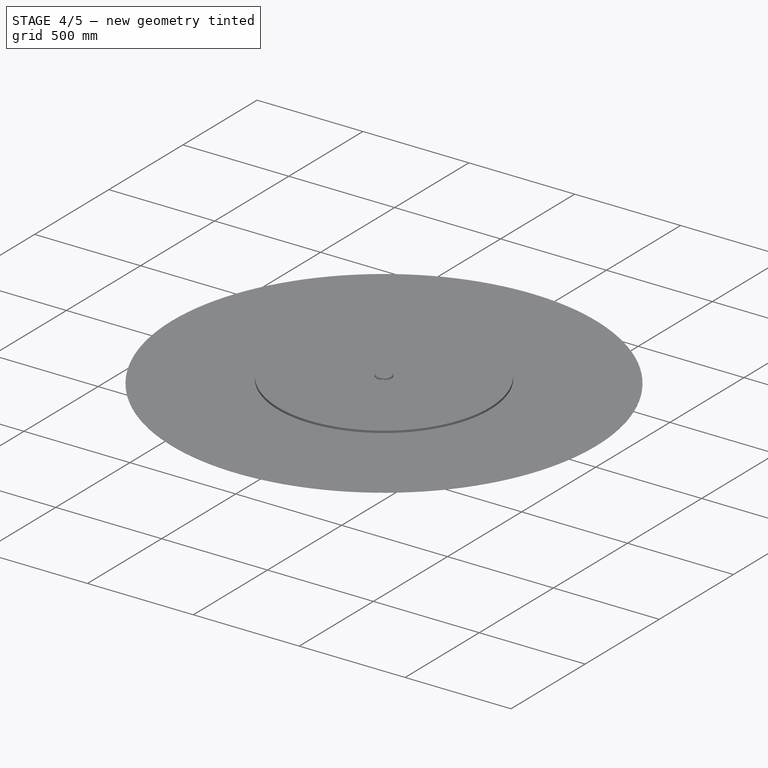
[diagram: stage 4 of 5 — iso view after this stage's code; geometry added in this stage tinted green]
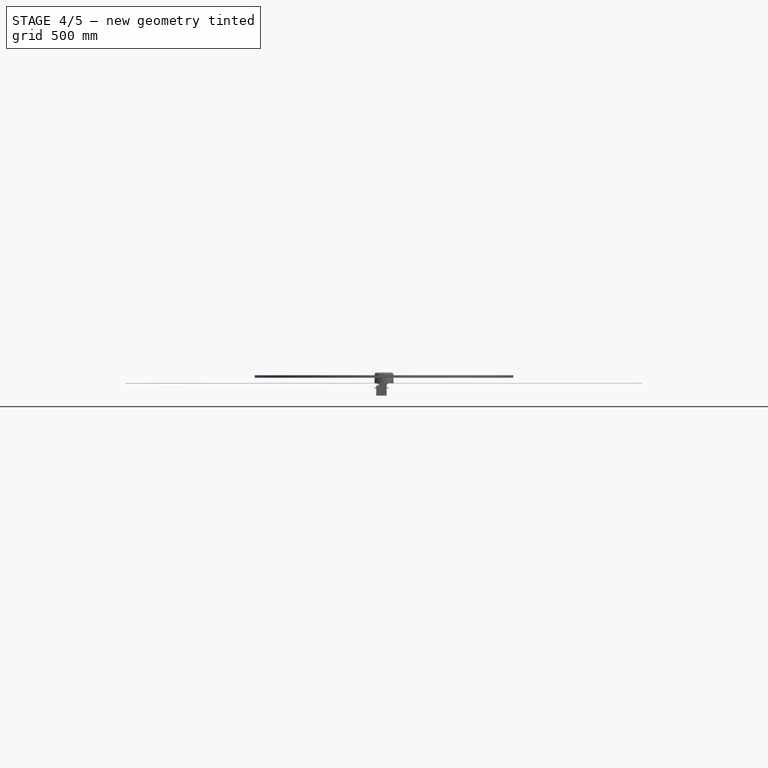
[diagram: stage 4 of 5 — front view after this stage's code; geometry added in this stage tinted green]
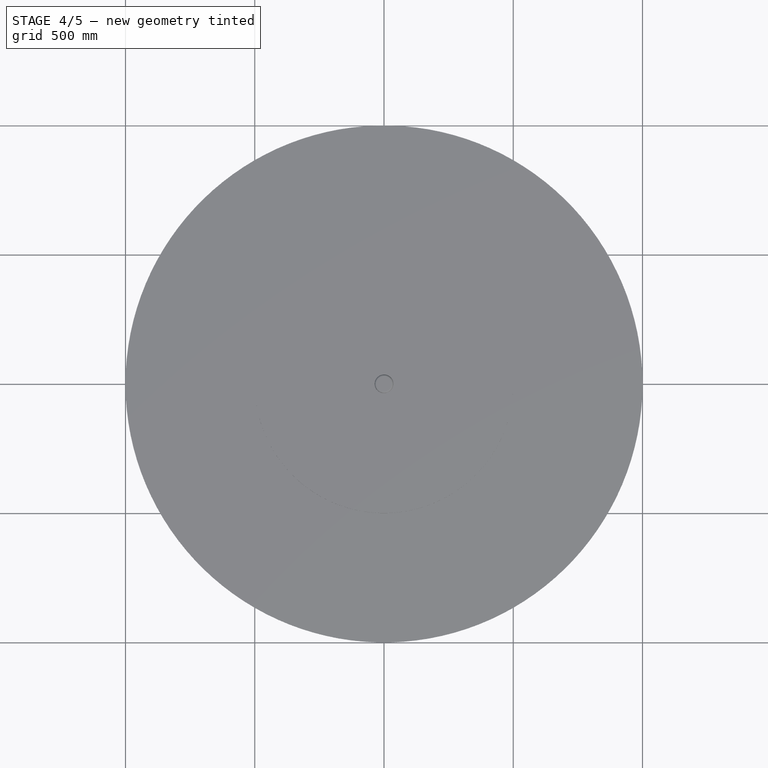
[diagram: stage 4 of 5 — top view after this stage's code; geometry added in this stage tinted green]
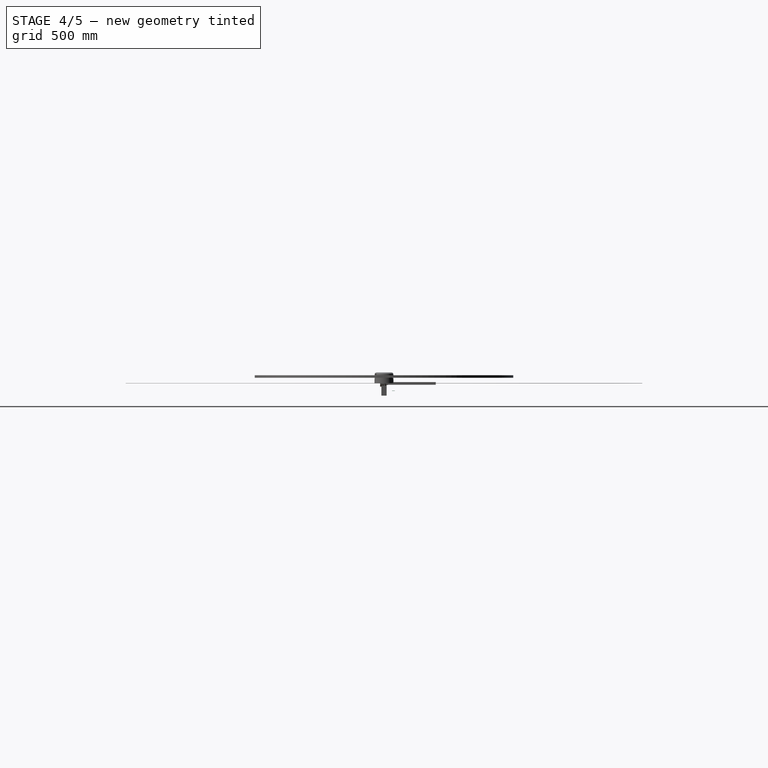
[diagram: stage 4 of 5 — right view after this stage's code; geometry added in this stage tinted green]
FEATURE [App::DocumentObjectGroup] Group004  label="Screws"
  ClaimAllChildren = true
  ExportMode = 1
  Group = -> [Screw,Screw001,Screw002,Screw003]
  TreeRank = 0
  _GroupVersion = 1
FEATURE [App::Link] Link036  label="MKS_SERVO57B"
  AutoLinkLabel = true
  AutoPlacement = true
  LinkPlacement = pos=(0,41,9.095e-13) rot=(-1,0,0;1.5708rad)
  LinkedObject = -> Body
  Placement = pos=(0,41,9.095e-13) rot=(-1,0,0;1.5708rad)
  SyncGroupVisibility = false
  TreeRank = 0
  _LinkVersion = 1
FEATURE [Sketcher::SketchObject] Sketch007
  ArcFitTolerance = 0
  AttachmentSupport = -> [XZ_Plane007]
  ExternalBSplineMaxDegree = 0
  ExternalBSplineTolerance = 0
  FixShape = 1
  FullyConstrained = true
  InternalTolerance = 1e-06
  InvalidShape = false
  MakeInternals = false
  MapMode = 5
  Placement = pos=(0,0,0) rot=(1,0,0;1.5708rad)
  Support = -> [XZ_Plane007]
  TreeRank = 0
  ValidateShape = false
  sketch-geometry (5):
    g0: LineSegment StartX=28.5 StartY=28.5 StartZ=0 EndX=-28.5 EndY=28.5 EndZ=0
    g1: LineSegment StartX=-28.5 StartY=28.5 StartZ=0 EndX=-28.5 EndY=-28.5 EndZ=0
    g2: LineSegment StartX=-28.5 StartY=-28.5 StartZ=0 EndX=28.5 EndY=-28.5 EndZ=0
    g3: LineSegment StartX=28.5 StartY=-28.5 StartZ=0 EndX=28.5 EndY=28.5 EndZ=0
    g4: Circle [constr] CenterX=2.6926e-12 CenterY=-1.717e-13 CenterZ=0 NormalX=0 NormalY=0 NormalZ=1 AngleXU=0 Radius=40.3051
  constraints (14):
    c: Coincident(g0,g1)
    c: Coincident(g1,g2)
    c: Coincident(g2,g3)
    c: Coincident(g3,g0)
    c: Equal(g0,g1)
    c: Equal(g0,g2)
    c: Equal(g0,g3)
    c: PointOnObject(g0,g4)
    c: PointOnObject(g1,g4)
    c: PointOnObject(g2,g4)
    c: PointOnObject(g3,g4)
    c: Coincident(g4,g-1)
    c: Horizontal(g0)
    c: DistanceX(g0,g0) = 57
FEATURE [PartDesign::Pad] Pad005
  AddSubType = 0
  AutoTaperInnerAngle = false
  CheckUpToFaceLimits = true
  ClaimChildren = false
  Direction = (1,1,1)
  Fit = 0
  FitJoin = 0
  FixShape = 1
  InnerFit = 0
  InnerFitJoin = 0
  InvalidShape = false
  Length = 11
  Length2 = 100
  NewSolid = false
  Placement = pos=(0,0,0) rot=(1,0,0;1.5708rad)
  Profile = -> Sketch007
  Refine = true
  Reversed = true
  Suppress = false
  TaperInnerAngle = 0
  TaperInnerAngleRev = 0
  TreeRank = 0
  Type = 0
  UsePipeForDraft = true
  ValidateShape = false
  _ProfileBasedVersion = 0
FEATURE [Sketcher::SketchObject] Sketch008
  ArcFitTolerance = 0
  AttachmentSupport = -> [Pad005]
  ExternalBSplineMaxDegree = 0
  ExternalBSplineTolerance = 0
  ExternalGeometry = -> [Pad005]
  FixShape = 1
  FullyConstrained = true
  InternalTolerance = 1e-06
  InvalidShape = false
  MakeInternals = false
  MapMode = 5
  Placement = pos=(0,11,2.4e-15) rot=(-1,0,0;1.5708rad)
  Support = -> [Pad005]
  TreeRank = 0
  ValidateShape = false
  sketch-geometry (5):
    g0: LineSegment StartX=-28.5 StartY=28.5 StartZ=0 EndX=-28.5 EndY=19.5 EndZ=0
    g1: LineSegment StartX=-28.5 StartY=19.5 StartZ=0 EndX=-23.5 EndY=19.5 EndZ=0
    g2: LineSegment StartX=-28.5 StartY=28.5 StartZ=0 EndX=-19.5 EndY=28.5 EndZ=0
    g3: LineSegment StartX=-19.5 StartY=28.5 StartZ=0 EndX=-19.5 EndY=23.5 EndZ=0
    g4: ArcOfCircle CenterX=-23.5 CenterY=23.5 CenterZ=0 NormalX=0 NormalY=0 NormalZ=1 AngleXU=0 Radius=4 StartAngle=4.71239 EndAngle=6.28319
  constraints (13):
    c: Vertical(g0)
    c: Coincident(g1,g0)
    c: Horizontal(g1)
    c: Coincident(g2,g0)
    c: Coincident(g3,g2)
    c: Vertical(g3)
    c: Horizontal(g2)
    c: Coincident(g0,g-4)
    c: Equal(g2,g0)
    c: Tangent(g4,g3) = 1.5708
    c: Tangent(g4,g1) = -1.5708
    c: DistanceY(g0,g0) = 9
    c: DistanceX(g4) = -23.5
FEATURE [PartDesign::Pocket] Pocket002
  AddSubType = 1
  AutoTaperInnerAngle = false
  BaseFeature = -> Pad005
  CheckUpToFaceLimits = true
  ClaimChildren = false
  Direction = (1,1,1)
  Fit = 0
  FitJoin = 0
  FixShape = 1
  InnerFit = 0
  InnerFitJoin = 0
  InvalidShape = false
  Length = 5
  Length2 = 100
  NewSolid = false
  Placement = pos=(0,0,0) rot=(1,0,0;1.5708rad)
  Profile = -> Sketch008
  Refine = true
  Suppress = false
  TaperInnerAngle = 0
  TaperInnerAngleRev = 0
  TreeRank = 0
  Type = 0
  ValidateShape = false
  _ProfileBasedVersion = 0
  _Version = 0
FEATURE [PartDesign::PolarPattern] PolarPattern007
  AddSubType = 0
  Angle = 360
  Axis = -> Sketch008 [N_Axis]
  BaseFeature = -> Pocket002
  CopyShape = false
  FixShape = 1
  InvalidShape = false
  NewSolid = false
  Occurrences = 4
  OriginalSubs = -> [Pocket002]
  Originals = -> [Pocket002]
  ParallelTransform = true
  Placement = pos=(0,0,0) rot=(1,0,0;1.5708rad)
  Refine = true
  SubTransform = true
  Suppress = false
  TreeRank = 0
  ValidateShape = false
  _Version = 0
FEATURE [Sketcher::SketchObject] Sketch009
  ArcFitTolerance = 0
  AttachmentSupport = -> [XZ_Plane007]
  ExternalBSplineMaxDegree = 0
  ExternalBSplineTolerance = 0
  FixShape = 1
  FullyConstrained = true
  InternalTolerance = 1e-06
  InvalidShape = false
  MakeInternals = false
  MapMode = 5
  Placement = pos=(0,0,0) rot=(1,0,0;1.5708rad)
  Support = -> [XZ_Plane007]
  TreeRank = 0
  ValidateShape = false
  sketch-geometry (2):
    g0: Circle CenterX=23.5 CenterY=23.5 CenterZ=0 NormalX=0 NormalY=0 NormalZ=1 AngleXU=0 Radius=2.55
    g1: LineSegment [constr] StartX=-1.146e-13 StartY=5.53e-14 StartZ=0 EndX=23.5 EndY=23.5 EndZ=0
  constraints (5):
    c: DistanceX(g0) = 23.5
    c: Coincident(g1,g-1)
    c: Coincident(g1,g0)
    c: Angle(g-1,g1) = 0.785398
    c: Diameter(g0) = 5.1
FEATURE [PartDesign::Pocket] Pocket003
  AddSubType = 1
  AutoTaperInnerAngle = false
  BaseFeature = -> PolarPattern007
  CheckUpToFaceLimits = true
  ClaimChildren = false
  Direction = (1,1,1)
  Fit = 0
  FitJoin = 0
  FixShape = 1
  InnerFit = 0
  InnerFitJoin = 0
  InvalidShape = false
  Length = 5
  Length2 = 100
  NewSolid = false
  Placement = pos=(0,0,0) rot=(1,0,0;1.5708rad)
  Profile = -> Sketch009
  Refine = true
  Suppress = false
  TaperInnerAngle = 0
  TaperInnerAngleRev = 0
  TreeRank = 0
  Type = 1
  ValidateShape = false
  _ProfileBasedVersion = 0
  _Version = 0
FEATURE [PartDesign::PolarPattern] PolarPattern008
  AddSubType = 0
  Angle = 360
  Axis = -> Sketch009 [N_Axis]
  BaseFeature = -> Pocket003
  CopyShape = false
  FixShape = 1
  InvalidShape = false
  NewSolid = false
  Occurrences = 4
  OriginalSubs = -> [Pocket003]
  Originals = -> [Pocket003]
  ParallelTransform = true
  Placement = pos=(0,0,0) rot=(1,0,0;1.5708rad)
  Refine = true
  SubTransform = true
  Suppress = false
  TreeRank = 0
  ValidateShape = false
  _Version = 0
FEATURE [Sketcher::SketchObject] Sketch010
  ArcFitTolerance = 0
  AttachmentSupport = -> [XZ_Plane007]
  ExternalBSplineMaxDegree = 0
  ExternalBSplineTolerance = 0
  FixShape = 1
  FullyConstrained = true
  InternalTolerance = 1e-06
  InvalidShape = false
  MakeInternals = false
  MapMode = 5
  Placement = pos=(0,0,0) rot=(1,0,0;1.5708rad)
  Support = -> [XZ_Plane007]
  TreeRank = 0
  ValidateShape = false
  sketch-geometry (1):
    g0: Circle CenterX=0 CenterY=0 CenterZ=0 NormalX=0 NormalY=0 NormalZ=1 AngleXU=0 Radius=19
  constraints (2):
    c: Coincident(g0,g-1)
    c: Diameter(g0) = 38
FEATURE [PartDesign::Pad] Pad006
  AddSubType = 0
  AutoTaperInnerAngle = false
  BaseFeature = -> PolarPattern008
  CheckUpToFaceLimits = true
  ClaimChildren = false
  Direction = (1,1,1)
  Fit = 0
  FitJoin = 0
  FixShape = 1
  InnerFit = 0
  InnerFitJoin = 0
  InvalidShape = false
  Length = 1.6
  Length2 = 100
  NewSolid = false
  Placement = pos=(0,0,0) rot=(1,0,0;1.5708rad)
  Profile = -> Sketch010
  Refine = true
  Suppress = false
  TaperInnerAngle = 0
  TaperInnerAngleRev = 0
  TreeRank = 0
  Type = 0
  UsePipeForDraft = true
  ValidateShape = false
  _ProfileBasedVersion = 0
FEATURE [Sketcher::SketchObject] Sketch011
  ArcFitTolerance = 0
  AttachmentSupport = -> [XZ_Plane007]
  ExternalBSplineMaxDegree = 0
  ExternalBSplineTolerance = 0
  FixShape = 1
  FullyConstrained = true
  InternalTolerance = 1e-06
  InvalidShape = false
  MakeInternals = false
  MapMode = 5
  Placement = pos=(0,0,0) rot=(1,0,0;1.5708rad)
  Support = -> [XZ_Plane007]
  TreeRank = 0
  ValidateShape = false
  sketch-geometry (1):
    g0: Circle CenterX=0 CenterY=0 CenterZ=0 NormalX=0 NormalY=0 NormalZ=1 AngleXU=0 Radius=5
  constraints (2):
    c: Coincident(g0,g-1)
    c: Diameter(g0) = 10
FEATURE [PartDesign::Pocket] Pocket004
  AddSubType = 1
  AutoTaperInnerAngle = false
  BaseFeature = -> Pad006
  CheckUpToFaceLimits = true
  ClaimChildren = false
  Direction = (1,1,1)
  Fit = 0
  FitJoin = 0
  FixShape = 1
  InnerFit = 0
  InnerFitJoin = 0
  InvalidShape = false
  Length = 5
  Length2 = 100
  NewSolid = false
  Placement = pos=(0,0,0) rot=(1,0,0;1.5708rad)
  Profile = -> Sketch011
  Refine = true
  Reversed = true
  Suppress = false
  TaperInnerAngle = 0
  TaperInnerAngleRev = 0
  TreeRank = 0
  Type = 1
  ValidateShape = false
  _ProfileBasedVersion = 0
  _Version = 0
FEATURE [PartDesign::Fillet] Fillet
  AddSubType = 0
  Base = -> Pocket004 [Edge2,Edge8,Edge51,Edge17]
  BaseFeature = -> Pocket004
  FixShape = 1
  InvalidShape = false
  NewSolid = false
  Placement = pos=(0,0,0) rot=(1,0,0;1.5708rad)
  Radius = 3
  Refine = true
  SupportTransform = false
  Suppress = false
  TreeRank = 0
  UseAllEdges = false
  ValidateShape = false
FEATURE [Sketcher::SketchObject] Sketch012
  ArcFitTolerance = 0
  AttachmentSupport = -> [XZ_Plane007]
  ExternalBSplineMaxDegree = 0
  ExternalBSplineTolerance = 0
  ExternalGeometry = -> [Fillet]
  FixShape = 1
  FullyConstrained = true
  InternalTolerance = 1e-06
  InvalidShape = false
  MakeInternals = false
  MapMode = 5
  Placement = pos=(0,0,0) rot=(1,0,0;1.5708rad)
  Support = -> [XZ_Plane007]
  TreeRank = 0
  ValidateShape = false
  sketch-geometry (5):
    g0: ArcOfCircle CenterX=16.4 CenterY=28.5 CenterZ=0 NormalX=0 NormalY=0 NormalZ=1 AngleXU=0 Radius=3.1 StartAngle=0 EndAngle=3.14159
    g1: ArcOfCircle CenterX=16.4 CenterY=25.4 CenterZ=0 NormalX=0 NormalY=0 NormalZ=1 AngleXU=0 Radius=3.1 StartAngle=3.14159 EndAngle=6.28319
    g2: LineSegment StartX=13.3 StartY=28.5 StartZ=0 EndX=13.3 EndY=25.4 EndZ=0
    g3: LineSegment StartX=19.5 StartY=28.5 StartZ=0 EndX=19.5 EndY=25.4 EndZ=0
    g4: Circle [constr] CenterX=16.4 CenterY=25.4 CenterZ=0 NormalX=0 NormalY=0 NormalZ=1 AngleXU=0 Radius=3.1
  constraints (12):
    c: Tangent(g0,g3) = 1.5708
    c: Tangent(g0,g2) = -1.5708
    c: Tangent(g2,g1) = -1.5708
    c: Tangent(g3,g1) = 1.5708
    c: Vertical(g2)
    c: Equal(g0,g1)
    c: PointOnObject(g0,g-3)
    c: Coincident(g4,g1)
    c: PointOnObject(g1,g4)
    c: PointOnObject(g0,g4)
    c: Diameter(g1) = 6.2
    c: DistanceX(g-1,g1) = 16.4
FEATURE [PartDesign::Pocket] Pocket005
  AddSubType = 1
  AutoTaperInnerAngle = false
  BaseFeature = -> Fillet
  CheckUpToFaceLimits = true
  ClaimChildren = false
  Direction = (1,1,1)
  Fit = 0
  FitJoin = 0
  FixShape = 1
  InnerFit = 0
  InnerFitJoin = 0
  InvalidShape = false
  Length = 2.5
  Length2 = 100
  NewSolid = false
  Placement = pos=(0,0,0) rot=(1,0,0;1.5708rad)
  Profile = -> Sketch012
  Refine = true
  Suppress = false
  TaperInnerAngle = 0
  TaperInnerAngleRev = 0
  TreeRank = 0
  Type = 0
  ValidateShape = false
  _ProfileBasedVersion = 0
  _Version = 0
FEATURE [PartDesign::PolarPattern] PolarPattern009
  AddSubType = 0
  Angle = 360
  Axis = -> Sketch012 [N_Axis]
  BaseFeature = -> Pocket005
  CopyShape = false
  FixShape = 1
  InvalidShape = false
  NewSolid = false
  Occurrences = 4
  OriginalSubs = -> [Pocket005]
  Originals = -> [Pocket005]
  ParallelTransform = true
  Placement = pos=(0,0,0) rot=(1,0,0;1.5708rad)
  Refine = true
  SubTransform = true
  Suppress = false
  TreeRank = 0
  ValidateShape = false
  _Version = 0
FEATURE [Sketcher::SketchObject] Sketch013
  ArcFitTolerance = 0
  AttachmentSupport = -> [XZ_Plane007]
  ExternalBSplineMaxDegree = 0
  ExternalBSplineTolerance = 0
  ExternalGeometry = -> [PolarPattern009]
  FixShape = 1
  FullyConstrained = true
  InternalTolerance = 1e-06
  InvalidShape = false
  MakeInternals = false
  MapMode = 5
  Placement = pos=(0,0,0) rot=(1,0,0;1.5708rad)
  Support = -> [XZ_Plane007]
  TreeRank = 0
  ValidateShape = false
  sketch-geometry (1):
    g0: Circle CenterX=16.4 CenterY=25.4 CenterZ=0 NormalX=0 NormalY=0 NormalZ=1 AngleXU=0 Radius=1.6
  constraints (2):
    c: Coincident(g0,g-3)
    c: Diameter(g0) = 3.2
FEATURE [PartDesign::Pocket] Pocket006
  AddSubType = 1
  AutoTaperInnerAngle = false
  BaseFeature = -> PolarPattern009
  CheckUpToFaceLimits = true
  ClaimChildren = false
  Direction = (1,1,1)
  Fit = 0
  FitJoin = 0
  FixShape = 1
  InnerFit = 0
  InnerFitJoin = 0
  InvalidShape = false
  Length = 5
  Length2 = 100
  NewSolid = false
  Placement = pos=(0,0,0) rot=(1,0,0;1.5708rad)
  Profile = -> Sketch013
  Refine = true
  Suppress = false
  TaperInnerAngle = 0
  TaperInnerAngleRev = 0
  TreeRank = 0
  Type = 1
  ValidateShape = false
  _ProfileBasedVersion = 0
  _Version = 0
FEATURE [PartDesign::PolarPattern] PolarPattern010
  AddSubType = 0
  Angle = 360
  Axis = -> Sketch013 [N_Axis]
  BaseFeature = -> Pocket006
  CopyShape = false
  FixShape = 1
  InvalidShape = false
  NewSolid = false
  Occurrences = 4
  OriginalSubs = -> [Pocket006]
  Originals = -> [Pocket006]
  ParallelTransform = true
  Placement = pos=(0,0,0) rot=(1,0,0;1.5708rad)
  Refine = true
  SubTransform = true
  Suppress = false
  TreeRank = 0
  ValidateShape = false
  _Version = 0
FEATURE [PartDesign::Fillet] Fillet001
  AddSubType = 0
  Base = -> PolarPattern010 [Edge10,Edge113,Edge8,Edge87,Edge114,Edge100,Edge86,Edge101,Edge97,Edge95,Edge81,Edge83,Edge2,Edge4,Edge110,Edge112]
  BaseFeature = -> PolarPattern010
  FixShape = 1
  InvalidShape = false
  NewSolid = false
  Placement = pos=(0,0,0) rot=(1,0,0;1.5708rad)
  Radius = 3
  Refine = true
  SupportTransform = false
  Suppress = false
  TreeRank = 0
  UseAllEdges = false
  ValidateShape = false
FEATURE [PartDesign::Body] Core  label="FrontPanel"
  AutoGroupSolids = false
  ClaimAllChildren = false
  ExportMode = 0
  FixShape = 1
  Group = -> [Sketch007,Pad005,Sketch008,Pocket002,PolarPattern007,Sketch009,Pocket003,PolarPattern008,Sketch010,Pad006,Sketch011,Pocket004,Fillet,Sketch012,Pocket005,PolarPattern009,Sketch013,Pocket006,PolarPattern010,Fillet001]
  InvalidShape = false
  Origin = -> Origin010
  SingleSolid = true
  Tip = -> Fillet001
  TreeRank = 0
  ValidateShape = false
  _ExportChildren = -> [Pad005,Pocket002,PolarPattern007,Pocket003,PolarPattern008,Pad006,Pocket004,Fillet,Pocket005,PolarPattern009,Pocket006,PolarPattern010,Fillet001]
  _GroupVersion = 1
FEATURE [PartDesign::ShapeBinder] ShapeBinder
  FixShape = 1
  InvalidShape = false
  Placement = pos=(0,0,0) rot=(1,0,0;1.5708rad)
  Support = -> [Fillet001]
  TraceSupport = false
  TreeRank = 0
  ValidateShape = false
FEATURE [PartDesign::Pad] Pad007
  AddSubType = 0
  AutoTaperInnerAngle = false
  CheckUpToFaceLimits = true
  ClaimChildren = false
  Direction = (1,1,1)
  Fit = 0
  FitJoin = 0
  FixShape = 1
  InnerFit = 0
  InnerFitJoin = 0
  InvalidShape = false
  Length = 20
  Length2 = 100
  NewSolid = false
  Placement = pos=(0,0,0) rot=(1,0,0;1.5708rad)
  Profile = -> ShapeBinder
  Refine = true
  Suppress = false
  TaperInnerAngle = 0
  TaperInnerAngleRev = 0
  TreeRank = 0
  Type = 0
  UsePipeForDraft = true
  ValidateShape = false
  _ProfileBasedVersion = 0
FEATURE [PartDesign::Body] Body006  label="MiddleCore"
  AutoGroupSolids = false
  ClaimAllChildren = false
  ExportMode = 0
  FixShape = 1
  Group = -> [ShapeBinder,Pad007]
  InvalidShape = false
  Origin = -> Origin011
  SingleSolid = true
  Tip = -> Pad007
  TreeRank = 0
  ValidateShape = false
  _ExportChildren = -> [Pad007]
  _GroupVersion = 1
FEATURE [PartDesign::ShapeBinder] ShapeBinder001
  FixShape = 1
  InvalidShape = false
  Placement = pos=(0,20,4.4e-15) rot=(1,0,0;1.5708rad)
  Support = -> [Pad007]
  TraceSupport = false
  TreeRank = 0
  ValidateShape = false
FEATURE [PartDesign::Pad] Pad008
  AddSubType = 0
  AutoTaperInnerAngle = false
  CheckUpToFaceLimits = true
  ClaimChildren = false
  Direction = (1,1,1)
  Fit = 0
  FitJoin = 0
  FixShape = 1
  InnerFit = 0
  InnerFitJoin = 0
  InvalidShape = false
  Length = 11
  Length2 = 100
  NewSolid = false
  Placement = pos=(0,20,4.4e-15) rot=(1,0,0;1.5708rad)
  Profile = -> ShapeBinder001
  Refine = true
  Suppress = false
  TaperInnerAngle = 0
  TaperInnerAngleRev = 0
  TreeRank = 0
  Type = 0
  UsePipeForDraft = true
  ValidateShape = false
  _ProfileBasedVersion = 0
FEATURE [Sketcher::SketchObject] Sketch014
  ArcFitTolerance = 0
  AttachmentSupport = -> [XZ_Plane009]
  ExternalBSplineMaxDegree = 0
  ExternalBSplineTolerance = 0
  FixShape = 1
  FullyConstrained = true
  InternalTolerance = 1e-06
  InvalidShape = false
  MakeInternals = false
  MapMode = 5
  Placement = pos=(0,0,0) rot=(1,0,0;1.5708rad)
  Support = -> [XZ_Plane009]
  TreeRank = 0
  ValidateShape = false
  sketch-geometry (1):
    g0: Circle CenterX=0 CenterY=0 CenterZ=0 NormalX=0 NormalY=0 NormalZ=1 AngleXU=0 Radius=5
  constraints (2):
    c: Coincident(g0,g-1)
    c: Diameter(g0) = 10
FEATURE [PartDesign::Pocket] Pocket007
  AddSubType = 1
  AutoTaperInnerAngle = false
  BaseFeature = -> Pad008
  CheckUpToFaceLimits = true
  ClaimChildren = false
  Direction = (1,1,1)
  Fit = 0
  FitJoin = 0
  FixShape = 1
  InnerFit = 0
  InnerFitJoin = 0
  InvalidShape = false
  Length = 5
  Length2 = 100
  NewSolid = false
  Placement = pos=(0,20,4.4e-15) rot=(1,0,0;1.5708rad)
  Profile = -> Sketch014
  Refine = true
  Suppress = false
  TaperInnerAngle = 0
  TaperInnerAngleRev = 0
  TreeRank = 0
  Type = 1
  ValidateShape = false
  _ProfileBasedVersion = 0
  _Version = 0
FEATURE [PartDesign::Fillet] Fillet002
  AddSubType = 0
  Base = -> Pocket007 [Edge51,Edge61]
  BaseFeature = -> Pocket007
  FixShape = 1
  InvalidShape = false
  NewSolid = false
  Placement = pos=(0,20,4.4e-15) rot=(1,0,0;1.5708rad)
  Radius = 0.5
  Refine = true
  SupportTransform = false
  Suppress = false
  TreeRank = 0
  UseAllEdges = false
  ValidateShape = false
FEATURE [PartDesign::Body] Body008  label="Axle"
  AutoGroupSolids = false
  ClaimAllChildren = false
  ExportMode = 0
  FixShape = 1
  Group = -> [Sketch015,Pad009,Sketch016,Pocket008,Chamfer]
  InvalidShape = false
  Origin = -> Origin013
  SingleSolid = true
  Tip = -> Chamfer
  TreeRank = 0
  ValidateShape = false
  _ExportChildren = -> [Pad009,Pocket008,Chamfer]
  _GroupVersion = 1
FEATURE [PartDesign::ShapeBinder] ShapeBinder002
  FixShape = 1
  InvalidShape = false
  Placement = pos=(0,20,4.4e-15) rot=(1,0,0;1.5708rad)
  Support = -> [Fillet002]
  TraceSupport = false
  TreeRank = 0
  ValidateShape = false
FEATURE [Sketcher::SketchObject] Sketch017
  ArcFitTolerance = 0
  AttachmentSupport = -> [ShapeBinder002]
  ExternalBSplineMaxDegree = 0
  ExternalBSplineTolerance = 0
  ExternalGeometry = -> [ShapeBinder002]
  FixShape = 1
  FullyConstrained = true
  InternalTolerance = 1e-06
  InvalidShape = false
  MakeInternals = false
  MapMode = 5
  Placement = pos=(-2.7551e-12,20,-28.5) rot=(1,0,0;3.14159rad)
  Support = -> [ShapeBinder002]
  TreeRank = 0
  ValidateShape = false
  sketch-geometry (5):
    g0: LineSegment StartX=-6 StartY=-11 StartZ=0 EndX=6 EndY=-11 EndZ=0
    g1: LineSegment StartX=6 StartY=-11 StartZ=0 EndX=6 EndY=-21.5 EndZ=0
    g2: LineSegment StartX=6 StartY=-21.5 StartZ=0 EndX=-6 EndY=-21.5 EndZ=0
    g3: LineSegment StartX=-6 StartY=-21.5 StartZ=0 EndX=-6 EndY=-11 EndZ=0
    g4: Circle CenterX=4.8501e-12 CenterY=-16.25 CenterZ=0 NormalX=0 NormalY=0 NormalZ=1 AngleXU=0 Radius=2.5
  constraints (13):
    c: Coincident(g0,g1)
    c: Coincident(g1,g2)
    c: Coincident(g2,g3)
    c: Coincident(g3,g0)
    c: Horizontal(g2)
    c: Vertical(g1)
    c: Vertical(g3)
    c: Symmetric(g0,g0,g-2)
    c: PointOnObject(g2,g-4)
    c: PointOnObject(g0,g-3)
    c: DistanceX(g2,g2) = 12
    c: Symmetric(g2,g0,g4)
    c: Diameter(g4) = 5
FEATURE [PartDesign::Pad] Pad010
  AddSubType = 0
  AutoTaperInnerAngle = false
  CheckUpToFaceLimits = true
  ClaimChildren = false
  Direction = (1,1,1)
  Fit = 0
  FitJoin = 0
  FixShape = 1
  InnerFit = 0
  InnerFitJoin = 0
  InvalidShape = false
  Length = 0.8
  Length2 = 100
  NewSolid = false
  Placement = pos=(0,20,4.4e-15) rot=(1,0,0;1.5708rad)
  Profile = -> Sketch017
  Refine = true
  Suppress = false
  TaperInnerAngle = 0
  TaperInnerAngleRev = 0
  TreeRank = 0
  Type = 0
  UsePipeForDraft = true
  ValidateShape = false
  _ProfileBasedVersion = 0
FEATURE [PartDesign::Fillet] Fillet003
  AddSubType = 0
  Base = -> Pad010 [Edge5,Edge2,Edge8,Edge1]
  BaseFeature = -> Pad010
  FixShape = 1
  InvalidShape = false
  NewSolid = false
  Placement = pos=(0,20,4.4e-15) rot=(1,0,0;1.5708rad)
  Radius = 1
  Refine = true
  SupportTransform = false
  Suppress = false
  TreeRank = 0
  UseAllEdges = false
  ValidateShape = false
FEATURE [PartDesign::Body] Body010  label="Cables"
  AutoGroupSolids = false
  ClaimAllChildren = false
  ExportMode = 0
  FixShape = 1
  Group = -> [ShapeBinder003,Sketch018,DatumLine,Pad011,PolarPattern011]
  InvalidShape = false
  Origin = -> Origin006
  SingleSolid = true
  Tip = -> PolarPattern011
  TreeRank = 0
  ValidateShape = false
  _ExportChildren = -> [ShapeBinder003,DatumLine,Pad011,PolarPattern011]
  _GroupVersion = 1
FEATURE [Sketcher::SketchObject] Sketch020
  ArcFitTolerance = 0
  AttachmentSupport = -> [XY_Plane013]
  ExternalBSplineMaxDegree = 0
  ExternalBSplineTolerance = 0
  FixShape = 1
  FullyConstrained = true
  InternalTolerance = 1e-06
  InvalidShape = false
  MakeInternals = false
  MapMode = 5
  Support = -> [XY_Plane013]
  TreeRank = 0
  ValidateShape = false
  sketch-geometry (4):
    g0: LineSegment StartX=3 StartY=0 StartZ=0 EndX=12.5 EndY=0 EndZ=0
    g1: LineSegment StartX=12.5 StartY=0 StartZ=0 EndX=12.5 EndY=-15 EndZ=0
    g2: LineSegment StartX=12.5 StartY=-15 StartZ=0 EndX=3 EndY=-15 EndZ=0
    g3: LineSegment StartX=3 StartY=-15 StartZ=0 EndX=3 EndY=0 EndZ=0
  constraints (12):
    c: PointOnObject(g0,g-1)
    c: PointOnObject(g0,g-1)
    c: Vertical(g1)
    c: Coincident(g1,g2)
    c: Horizontal(g2)
    c: Coincident(g2,g3)
    c: Coincident(g3,g0)
    c: Vertical(g3)
    c: DistanceX(g0) = 3
    c: DistanceY(g2) = -15
    c: DistanceX(g1) = 12.5
    c: Coincident(g0,g1)
FEATURE [PartDesign::Revolution] Revolution
  AddSubType = 0
  Angle = 360
  Axis = (0,1,0)
  Base = (0,0,0)
  ClaimChildren = false
  Fit = 0
  FitJoin = 0
  FixShape = 1
  InnerFit = 0
  InnerFitJoin = 0
  InvalidShape = false
  NewSolid = false
  Profile = -> Sketch020
  ReferenceAxis = -> Sketch020 [V_Axis]
  Refine = true
  Reversed = true
  Suppress = false
  TreeRank = 0
  ValidateShape = false
  _ProfileBasedVersion = 0
FEATURE [PartDesign::Body] Body011  label="Poulie_T5_14T_10mm"
  AutoGroupSolids = false
  ClaimAllChildren = false
  ExportMode = 0
  FixShape = 1
  Group = -> [Sketch020,Revolution]
  InvalidShape = false
  Origin = -> Origin017
  Placement = pos=(0,-3,0) rot=(0,0,1;0rad)
  SingleSolid = true
  Tip = -> Revolution
  TreeRank = 0
  ValidateShape = false
  _ExportChildren = -> [Revolution]
  _GroupVersion = 1
FEATURE [App::Part] _3HS16_0884S  label="23HS16_0884S_equiped"
  ClaimAllChildren = false
  ExportMode = 1
  Group = -> [Core,Body006,Body007,Body008,Body009,Body010,Group004,Screw002,Screw,Screw003,Screw001,Link036,Body011]
  Origin = -> Origin009
  TreeRank = 0
  _ExportChildren = -> [Core,Body006,Body007,Body008,Body009,Body010,Group004,Link036,Body011]
  _GroupVersion = 1
FEATURE [App::DocumentObjectGroup] Group005  label="Moteur"
  ClaimAllChildren = true
  ExportMode = 1
  Group = -> [Body,_3HS16_0884S]
  TreeRank = 0
  _GroupVersion = 1
FEATURE [Sketcher::SketchObject] Sketch116
  ArcFitTolerance = 0
  AttachmentSupport = -> [XY_Plane062]
  ExternalBSplineMaxDegree = 0
  ExternalBSplineTolerance = 0
  FixShape = 1
  FullyConstrained = true
  InternalTolerance = 1e-06
  InvalidShape = false
  MakeInternals = false
  MapMode = 5
  Support = -> [XY_Plane062]
  TreeRank = 0
  ValidateShape = false
  sketch-geometry (10):
    g0: LineSegment StartX=-6.8 StartY=0 StartZ=0 EndX=-6.8 EndY=0.8 EndZ=0
    g1: LineSegment StartX=-6.8 StartY=0.8 StartZ=0 EndX=-5.4 EndY=0.8 EndZ=0
    g2: LineSegment StartX=-5.4 StartY=0.8 StartZ=0 EndX=-5.4 EndY=-2.7 EndZ=0
    g3: LineSegment StartX=-5.4 StartY=-2.7 StartZ=0 EndX=-6 EndY=-2.7 EndZ=0
    g4: LineSegment StartX=-6 StartY=-2.7 StartZ=0 EndX=-6 EndY=0 EndZ=0
    g5: LineSegment StartX=-6 StartY=0 StartZ=0 EndX=-6.8 EndY=0 EndZ=0
    g6: LineSegment StartX=-4.6 StartY=0.8 StartZ=0 EndX=-4 EndY=0.8 EndZ=0
    g7: LineSegment StartX=-4 StartY=0.8 StartZ=0 EndX=-4 EndY=-2.7 EndZ=0
    g8: LineSegment StartX=-4 StartY=-2.7 StartZ=0 EndX=-4.6 EndY=-2.7 EndZ=0
    g9: LineSegment StartX=-4.6 StartY=-2.7 StartZ=0 EndX=-4.6 EndY=0.8 EndZ=0
  constraints (30):
    c: Vertical(g0)
    c: Coincident(g0,g1)
    c: Horizontal(g1)
    c: Coincident(g1,g2)
    c: Vertical(g2)
    c: Coincident(g2,g3)
    c: Horizontal(g3)
    c: Coincident(g3,g4)
    c: Vertical(g4)
    c: Coincident(g4,g5)
    c: Coincident(g5,g0)
    c: Horizontal(g5)
    c: Coincident(g6,g7)
    c: Coincident(g7,g8)
    c: Coincident(g8,g9)
    c: Coincident(g9,g6)
    c: Horizontal(g6)
    c: Horizontal(g8)
    c: Vertical(g7)
    c: Vertical(g9)
    c: PointOnObject(g6,g1)
    c: PointOnObject(g4,g-1)
    c: DistanceY(g2,g2) = 3.5
    c: PointOnObject(g8,g3)
    c: DistanceX(g3) = -6
    c: DistanceX(g6) = -4
    c: Equal(g3,g6)
    c: DistanceX(g6,g6) = 0.6
    c: DistanceX(g0) = -6.8
    c: DistanceY(g0,g0) = 0.8
FEATURE [PartDesign::Revolution] Revolution005
  AddSubType = 0
  Angle = 360
  Axis = (0,1,0)
  Base = (0,0,0)
  ClaimChildren = false
  Fit = 0
  FitJoin = 0
  FixShape = 1
  InnerFit = 0
  InnerFitJoin = 0
  InvalidShape = false
  NewSolid = false
  Profile = -> Sketch116
  ReferenceAxis = -> Sketch116 [V_Axis]
  Refine = true
  Suppress = false
  TreeRank = 0
  ValidateShape = false
  _ProfileBasedVersion = 1
FEATURE [PartDesign::Body] Body052  label="CoreMF128"
  AutoGroupSolids = false
  ClaimAllChildren = false
  ExportMode = 0
  FixShape = 1
  Group = -> [Sketch116,Revolution005]
  InvalidShape = false
  Origin = -> Origin016
  Tip = -> Revolution005
  TreeRank = 0
  ValidateShape = false
  _ExportChildren = -> [Revolution005]
  _GroupVersion = 1
FEATURE [Sketcher::SketchObject] Sketch117
  ArcFitTolerance = 0
  AttachmentSupport = -> [XY_Plane063]
  ExternalBSplineMaxDegree = 0
  ExternalBSplineTolerance = 0
  FixShape = 1
  FullyConstrained = true
  InternalTolerance = 1e-06
  InvalidShape = false
  MakeInternals = false
  MapMode = 5
  Support = -> [XY_Plane063]
  TreeRank = 0
  ValidateShape = false
  sketch-geometry (4):
    g0: LineSegment StartX=-5.5 StartY=0.55 StartZ=0 EndX=-4.5 EndY=0.55 EndZ=0
    g1: LineSegment StartX=-4.5 StartY=0.55 StartZ=0 EndX=-4.5 EndY=-2.45 EndZ=0
    g2: LineSegment StartX=-4.5 StartY=-2.45 StartZ=0 EndX=-5.5 EndY=-2.45 EndZ=0
    g3: LineSegment StartX=-5.5 StartY=-2.45 StartZ=0 EndX=-5.5 EndY=0.55 EndZ=0
  constraints (12):
    c: Coincident(g0,g1)
    c: Coincident(g1,g2)
    c: Coincident(g2,g3)
    c: Coincident(g3,g0)
    c: Horizontal(g0)
    c: Horizontal(g2)
    c: Vertical(g1)
    c: Vertical(g3)
    c: DistanceY(g3,g3) = 3
    c: DistanceX(g0,g0) = 1
    c: DistanceX(g0,g-1) = 4.5
    c: DistanceY(g-1,g0) = 0.55
FEATURE [PartDesign::Revolution] Revolution006
  AddSubType = 0
  Angle = 360
  Axis = (0,1,0)
  Base = (0,0,0)
  ClaimChildren = false
  Fit = 0
  FitJoin = 0
  FixShape = 1
  InnerFit = 0
  InnerFitJoin = 0
  InvalidShape = false
  NewSolid = false
  Profile = -> Sketch117
  ReferenceAxis = -> Sketch117 [V_Axis]
  Refine = true
  Suppress = false
  TreeRank = 0
  ValidateShape = false
  _ProfileBasedVersion = 1
FEATURE [PartDesign::Body] Body053  label="SleeveMF128"
  AutoGroupSolids = false
  ClaimAllChildren = false
  ExportMode = 0
  FixShape = 1
  Group = -> [Sketch117,Revolution006]
  InvalidShape = false
  Origin = -> Origin080
  SingleSolid = true
  Tip = -> Revolution006
  TreeRank = 0
  ValidateShape = false
  _ExportChildren = -> [Revolution006]
  _GroupVersion = 1
FEATURE [App::Part] Part022  label="MF128"
  ClaimAllChildren = false
  ExportMode = 1
  Group = -> [Body052,Body053]
  Origin = -> Origin076
  TreeRank = 0
  _ExportChildren = -> [Body052,Body053]
  _GroupVersion = 1
FEATURE [Sketcher::SketchObject] Sketch160
  ArcFitTolerance = 0
  AttachmentSupport = -> [XY_Plane091]
  ExternalBSplineMaxDegree = 0
  ExternalBSplineTolerance = 0
  FixShape = 1
  FullyConstrained = true
  InternalTolerance = 1e-06
  InvalidShape = false
  MakeInternals = false
  MapMode = 5
  Support = -> [XY_Plane091]
  TreeRank = 0
  ValidateShape = false
  sketch-geometry (10):
    g0: LineSegment StartX=-4.6 StartY=0 StartZ=0 EndX=-4.6 EndY=0.6 EndZ=0
    g1: LineSegment StartX=-4.6 StartY=0.6 StartZ=0 EndX=-3.4 EndY=0.6 EndZ=0
    g2: LineSegment StartX=-3.4 StartY=0.6 StartZ=0 EndX=-3.4 EndY=-2.4 EndZ=0
    g3: LineSegment StartX=-3.4 StartY=-2.4 StartZ=0 EndX=-4 EndY=-2.4 EndZ=0
    g4: LineSegment StartX=-4 StartY=-2.4 StartZ=0 EndX=-4 EndY=0 EndZ=0
    g5: LineSegment StartX=-4 StartY=0 StartZ=0 EndX=-4.6 EndY=0 EndZ=0
    g6: LineSegment StartX=-2.1 StartY=0.6 StartZ=0 EndX=-1.5 EndY=0.6 EndZ=0
    g7: LineSegment StartX=-1.5 StartY=0.6 StartZ=0 EndX=-1.5 EndY=-2.4 EndZ=0
    g8: LineSegment StartX=-1.5 StartY=-2.4 StartZ=0 EndX=-2.1 EndY=-2.4 EndZ=0
    g9: LineSegment StartX=-2.1 StartY=-2.4 StartZ=0 EndX=-2.1 EndY=0.6 EndZ=0
  constraints (30):
    c: Vertical(g0)
    c: Coincident(g0,g1)
    c: Horizontal(g1)
    c: Coincident(g1,g2)
    c: Vertical(g2)
    c: Coincident(g2,g3)
    c: Horizontal(g3)
    c: Coincident(g3,g4)
    c: Vertical(g4)
    c: Coincident(g4,g5)
    c: Coincident(g5,g0)
    c: Horizontal(g5)
    c: Coincident(g6,g7)
    c: Coincident(g7,g8)
    c: Coincident(g8,g9)
    c: Coincident(g9,g6)
    c: Horizontal(g6)
    c: Horizontal(g8)
    c: Vertical(g7)
    c: Vertical(g9)
    c: PointOnObject(g6,g1)
    c: PointOnObject(g4,g-1)
    c: DistanceY(g2,g2) = 3
    c: PointOnObject(g8,g3)
    c: DistanceX(g3) = -4
    c: DistanceX(g6) = -1.5
    c: Equal(g3,g6)
    c: DistanceX(g6,g6) = 0.6
    c: DistanceX(g0) = -4.6
    c: DistanceY(g0,g0) = 0.6
FEATURE [PartDesign::Revolution] Revolution010
  AddSubType = 0
  Angle = 360
  Axis = (0,1,0)
  Base = (0,0,0)
  ClaimChildren = false
  Fit = 0
  FitJoin = 0
  FixShape = 1
  InnerFit = 0
  InnerFitJoin = 0
  InvalidShape = false
  NewSolid = false
  Profile = -> Sketch160
  ReferenceAxis = -> Sketch160 [V_Axis]
  Refine = true
  Suppress = false
  TreeRank = 0
  ValidateShape = false
  _ProfileBasedVersion = 1
FEATURE [PartDesign::Body] Body074  label="CoreMF83"
  AutoGroupSolids = false
  ClaimAllChildren = false
  ExportMode = 0
  FixShape = 1
  Group = -> [Sketch160,Revolution010]
  InvalidShape = false
  Origin = -> Origin158
  Placement = pos=(0,2.84e-14,0) rot=(0,0,1;0rad)
  Tip = -> Revolution010
  TreeRank = 0
  ValidateShape = false
  _ExportChildren = -> [Revolution010]
  _GroupVersion = 1
FEATURE [Sketcher::SketchObject] Sketch161
  ArcFitTolerance = 0
  AttachmentSupport = -> [XY_Plane092]
  ExternalBSplineMaxDegree = 0
  ExternalBSplineTolerance = 0
  FixShape = 1
  FullyConstrained = true
  InternalTolerance = 1e-06
  InvalidShape = false
  MakeInternals = false
  MapMode = 5
  Support = -> [XY_Plane092]
  TreeRank = 0
  ValidateShape = false
  sketch-geometry (4):
    g0: LineSegment StartX=-3.4 StartY=0.5 StartZ=0 EndX=-2.1 EndY=0.5 EndZ=0
    g1: LineSegment StartX=-2.1 StartY=0.5 StartZ=0 EndX=-2.1 EndY=-2.3 EndZ=0
    g2: LineSegment StartX=-2.1 StartY=-2.3 StartZ=0 EndX=-3.4 EndY=-2.3 EndZ=0
    g3: LineSegment StartX=-3.4 StartY=-2.3 StartZ=0 EndX=-3.4 EndY=0.5 EndZ=0
  constraints (12):
    c: Coincident(g0,g1)
    c: Coincident(g1,g2)
    c: Coincident(g2,g3)
    c: Coincident(g3,g0)
    c: Horizontal(g0)
    c: Horizontal(g2)
    c: Vertical(g1)
    c: Vertical(g3)
    c: DistanceY(g3,g3) = 2.8
    c: DistanceX(g0,g0) = 1.3
    c: DistanceX(g0,g-1) = 2.1
    c: DistanceY(g-1,g0) = 0.5
FEATURE [PartDesign::Revolution] Revolution011
  AddSubType = 0
  Angle = 360
  Axis = (1e-16,1,-1e-16)
  Base = (0,0,0)
  ClaimChildren = false
  Fit = 0
  FitJoin = 0
  FixShape = 1
  InnerFit = 0
  InnerFitJoin = 0
  InvalidShape = false
  NewSolid = false
  Profile = -> Sketch161
  ReferenceAxis = -> Y_Axis092
  Refine = true
  Suppress = false
  TreeRank = 0
  ValidateShape = false
  _ProfileBasedVersion = 1
FEATURE [PartDesign::Body] Body075  label="SleeveMF83"
  AutoGroupSolids = false
  ClaimAllChildren = false
  ExportMode = 0
  FixShape = 1
  Group = -> [Sketch161,Revolution011]
  InvalidShape = false
  Origin = -> Origin159
  Placement = pos=(0,2.84e-14,0) rot=(0,0,1;0rad)
  SingleSolid = true
  Tip = -> Revolution011
  TreeRank = 0
  ValidateShape = false
  _ExportChildren = -> [Revolution011]
  _GroupVersion = 1
FEATURE [App::Part] Part034  label="MF83"
  ClaimAllChildren = false
  ExportMode = 1
  Group = -> [Body074,Body075]
  Origin = -> Origin160
  TreeRank = 0
  _ExportChildren = -> [Body074,Body075]
  _GroupVersion = 1
FEATURE [Sketcher::SketchObject] Sketch118
  ArcFitTolerance = 0
  AttachmentSupport = -> [XZ_Plane064]
  ExternalBSplineMaxDegree = 0
  ExternalBSplineTolerance = 0
  FixShape = 1
  FullyConstrained = true
  InternalTolerance = 1e-06
  InvalidShape = false
  MakeInternals = false
  MapMode = 5
  Placement = pos=(0,0,0) rot=(1,0,0;1.5708rad)
  Support = -> [XZ_Plane064]
  TreeRank = 0
  ValidateShape = false
  sketch-geometry (12):
    g0: LineSegment StartX=-6 StartY=2.67e-14 StartZ=0 EndX=-7 EndY=-1.177e-13 EndZ=0
    g1: LineSegment StartX=-7 StartY=-1.177e-13 StartZ=0 EndX=-7 EndY=4 EndZ=0
    g2: LineSegment StartX=-7 StartY=4 StartZ=0 EndX=-6 EndY=4 EndZ=0
    g3: LineSegment StartX=-6 StartY=4 StartZ=0 EndX=-6 EndY=3.6 EndZ=0
    g4: LineSegment StartX=-6 StartY=3.6 StartZ=0 EndX=-5 EndY=3.6 EndZ=0
    g5: LineSegment StartX=-5 StartY=3.6 StartZ=0 EndX=-5 EndY=4 EndZ=0
    g6: LineSegment StartX=-5 StartY=4 StartZ=0 EndX=-4 EndY=4 EndZ=0
    g7: LineSegment StartX=-4 StartY=4 StartZ=0 EndX=-4 EndY=0 EndZ=0
    g8: LineSegment StartX=-4 StartY=0 StartZ=0 EndX=-5 EndY=0 EndZ=0
    g9: LineSegment StartX=-5 StartY=0 StartZ=0 EndX=-5 EndY=0.4 EndZ=0
    g10: LineSegment StartX=-5 StartY=0.4 StartZ=0 EndX=-6 EndY=0.4 EndZ=0
    g11: LineSegment StartX=-6 StartY=0.4 StartZ=0 EndX=-6 EndY=2.67e-14 EndZ=0
  constraints (36):
    c: PointOnObject(g0,g-1)
    c: PointOnObject(g0,g-1)
    c: Coincident(g0,g1)
    c: Vertical(g1)
    c: Coincident(g1,g2)
    c: Horizontal(g2)
    c: Coincident(g2,g3)
    c: Vertical(g3)
    c: Coincident(g3,g4)
    c: Horizontal(g4)
    c: Coincident(g4,g5)
    c: Vertical(g5)
    c: Coincident(g5,g6)
    c: Horizontal(g6)
    c: Coincident(g6,g7)
    c: PointOnObject(g7,g-1)
    c: Vertical(g7)
    c: Coincident(g7,g8)
    c: PointOnObject(g8,g-1)
    c: Coincident(g8,g9)
    c: Vertical(g9)
    c: Coincident(g9,g10)
    c: Horizontal(g10)
    c: Coincident(g10,g11)
    c: Coincident(g11,g0)
    c: Vertical(g11)
    c: DistanceX(g7) = -4
    c: DistanceX(g0) = -7
    c: Equal(g8,g0)
    c: Equal(g2,g6)
    c: Equal(g4,g10)
    c: Equal(g3,g11)
    c: DistanceY(g3,g3) = 0.4
    c: DistanceX(g8,g8) = 1
    c: DistanceY(g1,g1) = 4
    c: PointOnObject(g2,g6)
FEATURE [PartDesign::Revolution] Revolution007
  AddSubType = 0
  Angle = 360
  Axis = (0,-2e-16,1)
  Base = (0,0,0)
  ClaimChildren = false
  Fit = 0
  FitJoin = 0
  FixShape = 1
  InnerFit = 0
  InnerFitJoin = 0
  InvalidShape = false
  NewSolid = false
  Placement = pos=(0,0,0) rot=(1,0,0;1.5708rad)
  Profile = -> Sketch118
  ReferenceAxis = -> Sketch118 [V_Axis]
  Refine = true
  Suppress = false
  TreeRank = 0
  ValidateShape = false
  _ProfileBasedVersion = 0
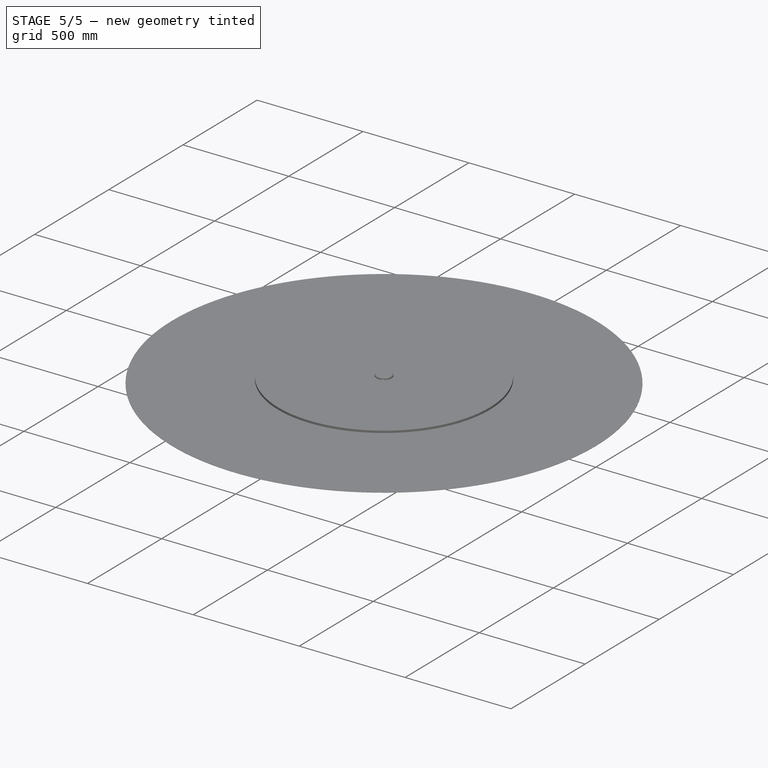
[diagram: stage 5 of 5 — iso view after this stage's code; geometry added in this stage tinted green]
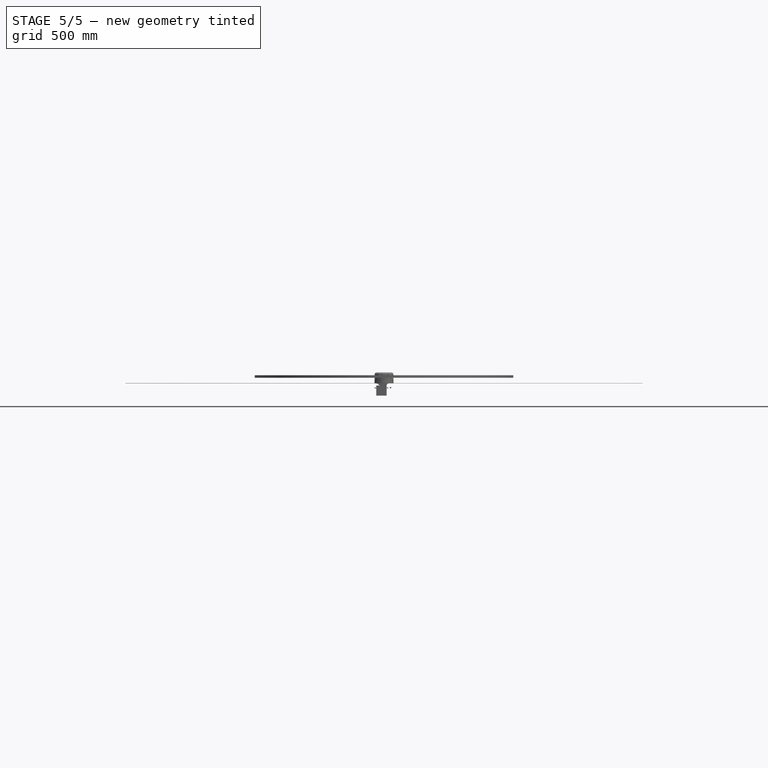
[diagram: stage 5 of 5 — front view after this stage's code; geometry added in this stage tinted green]
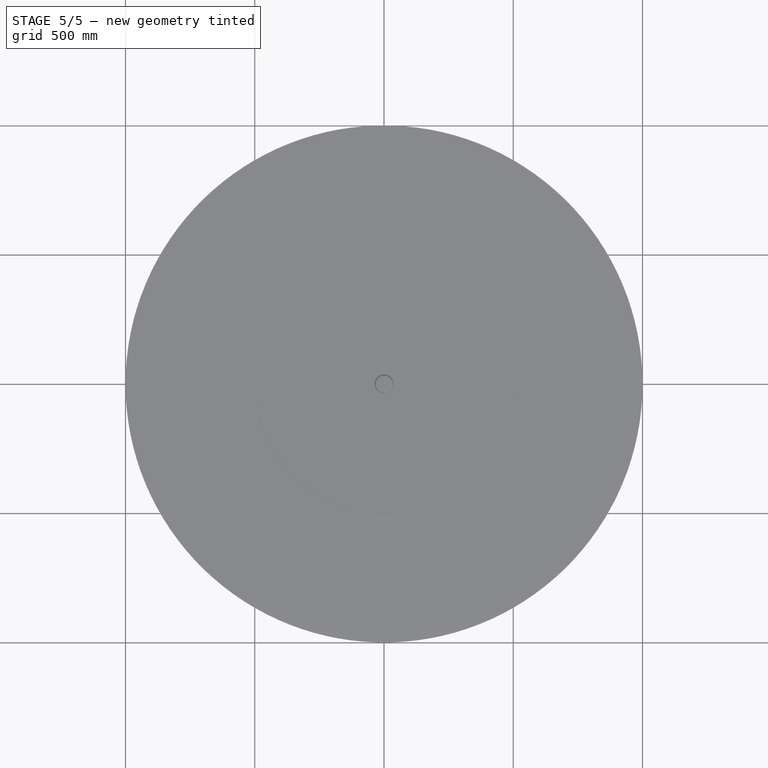
[diagram: stage 5 of 5 — top view after this stage's code; geometry added in this stage tinted green]
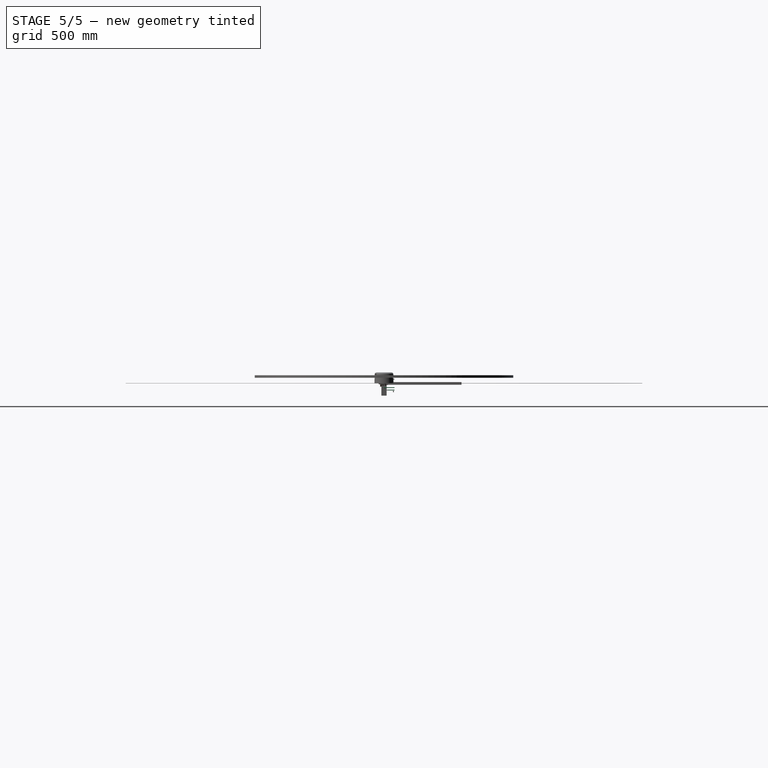
[diagram: stage 5 of 5 — right view after this stage's code; geometry added in this stage tinted green]
FEATURE [Sketcher::SketchObject] Sketch004
  ArcFitTolerance = 0
  AttachmentSupport = -> [XZ_Plane002]
  ExternalBSplineMaxDegree = 0
  ExternalBSplineTolerance = 0
  FixShape = 1
  FullyConstrained = true
  InternalTolerance = 1e-06
  InvalidShape = false
  MakeInternals = false
  MapMode = 5
  Placement = pos=(0,0,0) rot=(1,0,0;1.5708rad)
  Support = -> [XZ_Plane002]
  TreeRank = 0
  ValidateShape = false
  sketch-geometry (14):
    g0: ArcOfCircle CenterX=0 CenterY=0 CenterZ=0 NormalX=0 NormalY=0 NormalZ=1 AngleXU=0 Radius=1.25 StartAngle=0 EndAngle=1.5708
    g1: LineSegment StartX=1e-16 StartY=1.25 StartZ=0 EndX=0 EndY=2 EndZ=0
    g2: LineSegment StartX=0 StartY=2 StartZ=0 EndX=1 EndY=2 EndZ=0
    g3: LineSegment [constr] StartX=0 StartY=0 StartZ=0 EndX=5 EndY=5 EndZ=0
    g4: LineSegment StartX=1 StartY=2 StartZ=0 EndX=3.3 EndY=4 EndZ=0
    g5: LineSegment StartX=3.3 StartY=4 StartZ=0 EndX=1.5 EndY=4 EndZ=0
    g6: LineSegment StartX=1.5 StartY=4 StartZ=0 EndX=1.5 EndY=5 EndZ=0
    g7: LineSegment StartX=1.5 StartY=5 StartZ=0 EndX=5 EndY=5 EndZ=0
    g8: LineSegment StartX=5 StartY=5 StartZ=0 EndX=5 EndY=1.5 EndZ=0
    g9: LineSegment StartX=5 StartY=1.5 StartZ=0 EndX=4 EndY=1.5 EndZ=0
    g10: LineSegment StartX=4 StartY=1.5 StartZ=0 EndX=4 EndY=3.3 EndZ=0
    g11: LineSegment StartX=4 StartY=3.3 StartZ=0 EndX=2 EndY=1 EndZ=0
    g12: LineSegment StartX=2 StartY=1 StartZ=0 EndX=2 EndY=0 EndZ=0
    g13: LineSegment StartX=2 StartY=0 StartZ=0 EndX=1.25 EndY=0 EndZ=0
  constraints (41):
    c: Coincident(g0,g-1)
    c: PointOnObject(g0,g-1)
    c: PointOnObject(g0,g-2)
    c: Coincident(g1,g0)
    c: PointOnObject(g1,g-2)
    c: Coincident(g2,g1)
    c: Horizontal(g2)
    c: Coincident(g3,g0)
    c: Angle(g-1,g3) = 0.785398
    c: DistanceX(g3) = 5
    c: Diameter(g0) = 2.5
    c: DistanceX(g2) = 1
    c: Coincident(g4,g2)
    c: Coincident(g5,g4)
    c: Horizontal(g5)
    c: Coincident(g6,g5)
    c: Vertical(g6)
    c: Coincident(g7,g6)
    c: Coincident(g7,g3)
    c: Coincident(g8,g7)
    c: Vertical(g8)
    c: Coincident(g9,g8)
    c: Coincident(g10,g9)
    c: Vertical(g10)
    c: Coincident(g11,g10)
    c: Coincident(g12,g11)
    c: PointOnObject(g12,g-1)
    c: Vertical(g12)
    c: Coincident(g13,g12)
    c: Coincident(g13,g0)
    c: Equal(g12,g2)
    c: Equal(g13,g1)
    c: Horizontal(g7)
    c: Horizontal(g9)
    c: Equal(g6,g9)
    c: Equal(g11,g4)
    c: Equal(g5,g10)
    c: DistanceY(g2,g6) = 3
    c: DistanceX(g6) = 1.5
    c: DistanceY(g6,g6) = 1
    c: DistanceX(g5,g5) = 1.8
FEATURE [PartDesign::Pad] Pad002
  AddSubType = 0
  AutoTaperInnerAngle = false
  CheckUpToFaceLimits = true
  ClaimChildren = false
  Direction = (1,1,1)
  Fit = 0
  FitJoin = 0
  FixShape = 1
  InnerFit = 0
  InnerFitJoin = 0
  InvalidShape = false
  Length = 100
  Length2 = 100
  NewSolid = false
  Placement = pos=(0,0,0) rot=(1,0,0;1.5708rad)
  Profile = -> Sketch004
  Refine = true
  Reversed = true
  Suppress = false
  TaperInnerAngle = 0
  TaperInnerAngleRev = 0
  TreeRank = 0
  Type = 0
  ValidateShape = false
  _ProfileBasedVersion = 0
FEATURE [PartDesign::PolarPattern] PolarPattern004
  AddSubType = 0
  Angle = 360
  Axis = -> Y_Axis002
  BaseFeature = -> Pad002
  CopyShape = false
  FixShape = 1
  InvalidShape = false
  NewSolid = false
  Occurrences = 4
  OriginalSubs = -> [Pad002]
  Originals = -> [Pad002]
  ParallelTransform = true
  Placement = pos=(0,0,0) rot=(1,0,0;1.5708rad)
  Refine = true
  SubTransform = true
  Suppress = false
  TreeRank = 0
  ValidateShape = false
  _Version = 0
FEATURE [PartDesign::CoordinateSystem] Local_CS
  AttacherType = Attacher::AttachEngine3D
  AttachmentSupport = -> [PolarPattern004]
  FixShape = 1
  InvalidShape = false
  Placement = pos=(4.44e-14,100,0) rot=(1,0,0;1.5708rad)
  Support = -> [PolarPattern004]
  TreeRank = 0
  ValidateShape = false
FEATURE [PartDesign::Body] Body002  label="MB_100"
  AutoGroupSolids = false
  ClaimAllChildren = false
  ExportMode = 0
  FixShape = 1
  Group = -> [Sketch004,Pad002,PolarPattern004,Local_CS]
  InvalidShape = false
  Origin = -> Origin002
  SingleSolid = true
  Tip = -> PolarPattern004
  TreeRank = 0
  ValidateShape = false
  _ExportChildren = -> [Pad002,PolarPattern004,Local_CS]
  _GroupVersion = 1
FEATURE [Sketcher::SketchObject] Sketch005
  ArcFitTolerance = 0
  AttachmentSupport = -> [XZ_Plane003]
  ExternalBSplineMaxDegree = 0
  ExternalBSplineTolerance = 0
  FixShape = 1
  FullyConstrained = true
  InternalTolerance = 1e-06
  InvalidShape = false
  MakeInternals = false
  MapMode = 5
  Placement = pos=(0,0,0) rot=(1,0,0;1.5708rad)
  Support = -> [XZ_Plane003]
  TreeRank = 0
  ValidateShape = false
  sketch-geometry (14):
    g0: ArcOfCircle CenterX=0 CenterY=0 CenterZ=0 NormalX=0 NormalY=0 NormalZ=1 AngleXU=0 Radius=1.25 StartAngle=0 EndAngle=1.5708
    g1: LineSegment StartX=1e-16 StartY=1.25 StartZ=0 EndX=0 EndY=2 EndZ=0
    g2: LineSegment StartX=0 StartY=2 StartZ=0 EndX=1 EndY=2 EndZ=0
    g3: LineSegment [constr] StartX=0 StartY=0 StartZ=0 EndX=5 EndY=5 EndZ=0
    g4: LineSegment StartX=1 StartY=2 StartZ=0 EndX=3.3 EndY=4 EndZ=0
    g5: LineSegment StartX=3.3 StartY=4 StartZ=0 EndX=1.5 EndY=4 EndZ=0
    g6: LineSegment StartX=1.5 StartY=4 StartZ=0 EndX=1.5 EndY=5 EndZ=0
    g7: LineSegment StartX=1.5 StartY=5 StartZ=0 EndX=5 EndY=5 EndZ=0
    g8: LineSegment StartX=5 StartY=5 StartZ=0 EndX=5 EndY=1.5 EndZ=0
    g9: LineSegment StartX=5 StartY=1.5 StartZ=0 EndX=4 EndY=1.5 EndZ=0
    g10: LineSegment StartX=4 StartY=1.5 StartZ=0 EndX=4 EndY=3.3 EndZ=0
    g11: LineSegment StartX=4 StartY=3.3 StartZ=0 EndX=2 EndY=1 EndZ=0
    g12: LineSegment StartX=2 StartY=1 StartZ=0 EndX=2 EndY=0 EndZ=0
    g13: LineSegment StartX=2 StartY=0 StartZ=0 EndX=1.25 EndY=0 EndZ=0
  constraints (41):
    c: Coincident(g0,g-1)
    c: PointOnObject(g0,g-1)
    c: PointOnObject(g0,g-2)
    c: Coincident(g1,g0)
    c: PointOnObject(g1,g-2)
    c: Coincident(g2,g1)
    c: Horizontal(g2)
    c: Coincident(g3,g0)
    c: Angle(g-1,g3) = 0.785398
    c: DistanceX(g3) = 5
    c: Diameter(g0) = 2.5
    c: DistanceX(g2) = 1
    c: Coincident(g4,g2)
    c: Coincident(g5,g4)
    c: Horizontal(g5)
    c: Coincident(g6,g5)
    c: Vertical(g6)
    c: Coincident(g7,g6)
    c: Coincident(g7,g3)
    c: Coincident(g8,g7)
    c: Vertical(g8)
    c: Coincident(g9,g8)
    c: Coincident(g10,g9)
    c: Vertical(g10)
    c: Coincident(g11,g10)
    c: Coincident(g12,g11)
    c: PointOnObject(g12,g-1)
    c: Vertical(g12)
    c: Coincident(g13,g12)
    c: Coincident(g13,g0)
    c: Equal(g12,g2)
    c: Equal(g13,g1)
    c: Horizontal(g7)
    c: Horizontal(g9)
    c: Equal(g6,g9)
    c: Equal(g11,g4)
    c: Equal(g5,g10)
    c: DistanceY(g2,g6) = 3
    c: DistanceX(g6) = 1.5
    c: DistanceY(g6,g6) = 1
    c: DistanceX(g5,g5) = 1.8
FEATURE [PartDesign::Pad] Pad003
  AddSubType = 0
  AutoTaperInnerAngle = false
  CheckUpToFaceLimits = true
  ClaimChildren = false
  Direction = (1,1,1)
  Fit = 0
  FitJoin = 0
  FixShape = 1
  InnerFit = 0
  InnerFitJoin = 0
  InvalidShape = false
  Length = 60
  Length2 = 100
  NewSolid = false
  Placement = pos=(0,0,0) rot=(1,0,0;1.5708rad)
  Profile = -> Sketch005
  Refine = true
  Reversed = true
  Suppress = false
  TaperInnerAngle = 0
  TaperInnerAngleRev = 0
  TreeRank = 0
  Type = 0
  ValidateShape = false
  _ProfileBasedVersion = 0
FEATURE [PartDesign::PolarPattern] PolarPattern005
  AddSubType = 0
  Angle = 360
  AttacherType = Attacher::AttachEngine3D
  Axis = -> Y_Axis003
  BaseFeature = -> Pad003
  CopyShape = false
  FixShape = 1
  InvalidShape = false
  NewSolid = false
  Occurrences = 4
  OriginalSubs = -> [Pad003]
  Originals = -> [Pad003]
  ParallelTransform = true
  Placement = pos=(0,0,0) rot=(1,0,0;1.5708rad)
  Refine = true
  SubTransform = true
  Suppress = false
  TreeRank = 0
  ValidateShape = false
  _Version = 0
FEATURE [PartDesign::CoordinateSystem] Local_CS001
  AttacherType = Attacher::AttachEngine3D
  AttachmentSupport = -> [PolarPattern005]
  FixShape = 1
  InvalidShape = false
  MapMode = 11
  Placement = pos=(2.66e-14,60,-1.33e-14) rot=(1,0,0;1.5708rad)
  Support = -> [PolarPattern005]
  TreeRank = 0
  ValidateShape = false
FEATURE [PartDesign::Body] Body003  label="MB_60"
  AutoGroupSolids = false
  ClaimAllChildren = false
  ExportMode = 0
  FixShape = 1
  Group = -> [Sketch005,Pad003,PolarPattern005,Local_CS001]
  InvalidShape = false
  Origin = -> Origin003
  SingleSolid = true
  Tip = -> PolarPattern005
  TreeRank = 0
  ValidateShape = false
  _ExportChildren = -> [Pad003,PolarPattern005,Local_CS001]
  _GroupVersion = 1
FEATURE [Sketcher::SketchObject] Sketch001
  ArcFitTolerance = 0
  AttachmentSupport = -> [YZ_Plane001]
  ExternalBSplineMaxDegree = 0
  ExternalBSplineTolerance = 0
  FixShape = 1
  FullyConstrained = true
  InternalTolerance = 1e-06
  InvalidShape = false
  MakeInternals = false
  MapMode = 5
  Placement = pos=(0,0,0) rot=(0.57735,0.57735,0.57735;2.0944rad)
  Support = -> [YZ_Plane001]
  TreeRank = 0
  ValidateShape = false
  sketch-geometry (4):
    g0: LineSegment StartX=-5 StartY=5 StartZ=0 EndX=5 EndY=5 EndZ=0
    g1: LineSegment StartX=5 StartY=5 StartZ=0 EndX=5 EndY=-5 EndZ=0
    g2: LineSegment StartX=5 StartY=-5 StartZ=0 EndX=-5 EndY=-5 EndZ=0
    g3: LineSegment StartX=-5 StartY=-5 StartZ=0 EndX=-5 EndY=5 EndZ=0
  constraints (11):
    c: Coincident(g0,g1)
    c: Coincident(g1,g2)
    c: Coincident(g2,g3)
    c: Coincident(g3,g0)
    c: Horizontal(g0)
    c: Horizontal(g2)
    c: Vertical(g1)
    c: Vertical(g3)
    c: Symmetric(g1,g0,g-1)
    c: Equal(g0,g3)
    c: DistanceX(g0,g0) = 10
FEATURE [PartDesign::Pad] Pad001
  AddSubType = 0
  AutoTaperInnerAngle = false
  CheckUpToFaceLimits = true
  ClaimChildren = false
  Direction = (1,1,1)
  Fit = 0
  FitJoin = 0
  FixShape = 1
  InnerFit = 0
  InnerFitJoin = 0
  InvalidShape = false
  Length = 10
  Length2 = 100
  Midplane = true
  NewSolid = false
  Placement = pos=(0,0,0) rot=(0.57735,0.57735,0.57735;2.0944rad)
  Profile = -> Sketch001
  Refine = true
  Suppress = false
  TaperInnerAngle = 0
  TaperInnerAngleRev = 0
  TreeRank = 0
  Type = 0
  ValidateShape = false
  _ProfileBasedVersion = 0
FEATURE [Sketcher::SketchObject] Sketch002
  ArcFitTolerance = 0
  AttachmentSupport = -> [YZ_Plane001]
  ExternalBSplineMaxDegree = 0
  ExternalBSplineTolerance = 0
  FixShape = 1
  FullyConstrained = true
  InternalTolerance = 1e-06
  InvalidShape = false
  MakeInternals = false
  MapMode = 5
  Placement = pos=(0,0,0) rot=(0.57735,0.57735,0.57735;2.0944rad)
  Support = -> [YZ_Plane001]
  TreeRank = 0
  ValidateShape = false
  sketch-geometry (1):
    g0: Circle CenterX=0 CenterY=0 CenterZ=0 NormalX=0 NormalY=0 NormalZ=1 AngleXU=0 Radius=1.5
  constraints (2):
    c: Coincident(g0,g-1)
    c: Diameter(g0) = 3
FEATURE [PartDesign::Pocket] Pocket
  AddSubType = 1
  AutoTaperInnerAngle = false
  BaseFeature = -> Pad001
  CheckUpToFaceLimits = true
  ClaimChildren = false
  Direction = (1,1,1)
  Fit = 0
  FitJoin = 0
  FixShape = 1
  InnerFit = 0
  InnerFitJoin = 0
  InvalidShape = false
  Length = 5
  Length2 = 100
  Midplane = true
  NewSolid = false
  Placement = pos=(0,0,0) rot=(0.57735,0.57735,0.57735;2.0944rad)
  Profile = -> Sketch002
  Refine = true
  Suppress = false
  TaperInnerAngle = 0
  TaperInnerAngleRev = 0
  TreeRank = 0
  Type = 1
  ValidateShape = false
  _ProfileBasedVersion = 0
  _Version = 0
FEATURE [PartDesign::PolarPattern] PolarPattern
  AddSubType = 0
  Angle = 90
  Axis = -> Z_Axis001
  CopyShape = false
  FixShape = 1
  InvalidShape = false
  NewSolid = false
  Occurrences = 2
  ParallelTransform = true
  Placement = pos=(0,0,0) rot=(0.57735,0.57735,0.57735;2.0944rad)
  Refine = true
  SubTransform = true
  Suppress = false
  TreeRank = 0
  ValidateShape = false
  _Version = 0
FEATURE [PartDesign::PolarPattern] PolarPattern001
  AddSubType = 0
  Angle = 90
  Axis = -> Y_Axis001
  CopyShape = false
  FixShape = 1
  InvalidShape = false
  NewSolid = false
  Occurrences = 2
  ParallelTransform = true
  Placement = pos=(0,0,0) rot=(0.57735,0.57735,0.57735;2.0944rad)
  Refine = true
  SubTransform = true
  Suppress = false
  TreeRank = 0
  ValidateShape = false
  _Version = 0
FEATURE [PartDesign::MultiTransform] MultiTransform
  AddSubType = 0
  BaseFeature = -> Pocket
  CopyShape = false
  FixShape = 1
  InvalidShape = false
  NewSolid = false
  OriginalSubs = -> [Pocket]
  Originals = -> [Pocket]
  ParallelTransform = true
  Placement = pos=(0,0,0) rot=(0.57735,0.57735,0.57735;2.0944rad)
  Refine = true
  SubTransform = true
  Suppress = false
  Transformations = -> [PolarPattern,PolarPattern001]
  TreeRank = 0
  ValidateShape = false
  _Version = 0
FEATURE [PartDesign::Plane] DatumPlane
  AttachmentOffset = pos=(0,0,5) rot=(0,0,1;0rad)
  AttachmentSupport = -> [YZ_Plane001]
  FixShape = 1
  InvalidShape = false
  Length = 10
  MapMode = 5
  MinimumLength = 10
  MinimumWidth = 10
  Placement = pos=(5,-1.1e-15,1.1e-15) rot=(0.57735,0.57735,0.57735;2.0944rad)
  ResizeMode = 0
  Support = -> [YZ_Plane001]
  TreeRank = 0
  ValidateShape = false
  Width = 10
FEATURE [Sketcher::SketchObject] Sketch003
  ArcFitTolerance = 0
  AttachmentSupport = -> [DatumPlane]
  ExternalBSplineMaxDegree = 0
  ExternalBSplineTolerance = 0
  FixShape = 1
  FullyConstrained = true
  InternalTolerance = 1e-06
  InvalidShape = false
  MakeInternals = false
  MapMode = 5
  Placement = pos=(5,-1.1e-15,1.1e-15) rot=(0.57735,0.57735,0.57735;2.0944rad)
  Support = -> [DatumPlane]
  TreeRank = 0
  ValidateShape = false
  sketch-geometry (1):
    g0: Circle CenterX=0 CenterY=0 CenterZ=0 NormalX=0 NormalY=0 NormalZ=1 AngleXU=0 Radius=3
  constraints (2):
    c: Coincident(g0,g-1)
    c: Diameter(g0) = 6
FEATURE [PartDesign::Pocket] Pocket001
  AddSubType = 1
  AutoTaperInnerAngle = false
  BaseFeature = -> MultiTransform
  CheckUpToFaceLimits = true
  ClaimChildren = false
  Direction = (1,1,1)
  Fit = 0
  FitJoin = 0
  FixShape = 1
  InnerFit = 0
  InnerFitJoin = 0
  InvalidShape = false
  Length = 8
  Length2 = 100
  NewSolid = false
  Placement = pos=(0,0,0) rot=(0.57735,0.57735,0.57735;2.0944rad)
  Profile = -> Sketch003
  Refine = true
  Suppress = false
  TaperInnerAngle = 0
  TaperInnerAngleRev = 0
  TreeRank = 0
  Type = 0
  ValidateShape = false
  _ProfileBasedVersion = 0
  _Version = 0
FEATURE [PartDesign::PolarPattern] PolarPattern002
  AddSubType = 0
  Angle = 90
  Axis = -> Y_Axis001
  CopyShape = false
  FixShape = 1
  InvalidShape = false
  NewSolid = false
  Occurrences = 2
  ParallelTransform = true
  Placement = pos=(0,0,0) rot=(0.57735,0.57735,0.57735;2.0944rad)
  Refine = true
  SubTransform = true
  Suppress = false
  TreeRank = 0
  ValidateShape = false
  _Version = 0
FEATURE [PartDesign::PolarPattern] PolarPattern003
  AddSubType = 0
  Angle = 90
  Axis = -> Z_Axis001
  CopyShape = false
  FixShape = 1
  InvalidShape = false
  NewSolid = false
  Occurrences = 2
  ParallelTransform = true
  Placement = pos=(0,0,0) rot=(0.57735,0.57735,0.57735;2.0944rad)
  Refine = true
  SubTransform = true
  Suppress = false
  TreeRank = 0
  ValidateShape = false
  _Version = 0
FEATURE [PartDesign::MultiTransform] MultiTransform001
  AddSubType = 0
  BaseFeature = -> Pocket001
  CopyShape = false
  FixShape = 1
  InvalidShape = false
  NewSolid = false
  OriginalSubs = -> [Pocket001]
  Originals = -> [Pocket001]
  ParallelTransform = true
  Placement = pos=(0,0,0) rot=(0.57735,0.57735,0.57735;2.0944rad)
  Refine = true
  SubTransform = true
  Suppress = false
  Transformations = -> [PolarPattern002,PolarPattern003]
  TreeRank = 0
  ValidateShape = false
  _Version = 0
FEATURE [PartDesign::Body] Body001  label="Corner"
  AutoGroupSolids = false
  ClaimAllChildren = false
  ExportMode = 0
  FixShape = 1
  Group = -> [Sketch001,Pad001,Sketch002,Pocket,MultiTransform,PolarPattern,PolarPattern001,DatumPlane,Sketch003,Pocket001,MultiTransform001,PolarPattern002,PolarPattern003]
  InvalidShape = false
  Origin = -> Origin001
  SingleSolid = true
  Tip = -> MultiTransform001
  TreeRank = 0
  ValidateShape = false
  _ExportChildren = -> [Pad001,Pocket,MultiTransform,DatumPlane,Pocket001,MultiTransform001]
  _GroupVersion = 1
FEATURE [Sketcher::SketchObject] Sketch006
  ArcFitTolerance = 0
  AttachmentSupport = -> [XZ_Plane004]
  ExternalBSplineMaxDegree = 0
  ExternalBSplineTolerance = 0
  FixShape = 1
  FullyConstrained = true
  InternalTolerance = 1e-06
  InvalidShape = false
  MakeInternals = false
  MapMode = 5
  Placement = pos=(0,0,0) rot=(1,0,0;1.5708rad)
  Support = -> [XZ_Plane004]
  TreeRank = 0
  ValidateShape = false
  sketch-geometry (14):
    g0: ArcOfCircle CenterX=0 CenterY=0 CenterZ=0 NormalX=0 NormalY=0 NormalZ=1 AngleXU=0 Radius=1.25 StartAngle=0 EndAngle=1.5708
    g1: LineSegment StartX=1e-16 StartY=1.25 StartZ=0 EndX=0 EndY=2 EndZ=0
    g2: LineSegment StartX=0 StartY=2 StartZ=0 EndX=1 EndY=2 EndZ=0
    g3: LineSegment [constr] StartX=0 StartY=0 StartZ=0 EndX=5 EndY=5 EndZ=0
    g4: LineSegment StartX=1 StartY=2 StartZ=0 EndX=3.3 EndY=4 EndZ=0
    g5: LineSegment StartX=3.3 StartY=4 StartZ=0 EndX=1.5 EndY=4 EndZ=0
    g6: LineSegment StartX=1.5 StartY=4 StartZ=0 EndX=1.5 EndY=5 EndZ=0
    g7: LineSegment StartX=1.5 StartY=5 StartZ=0 EndX=5 EndY=5 EndZ=0
    g8: LineSegment StartX=5 StartY=5 StartZ=0 EndX=5 EndY=1.5 EndZ=0
    g9: LineSegment StartX=5 StartY=1.5 StartZ=0 EndX=4 EndY=1.5 EndZ=0
    g10: LineSegment StartX=4 StartY=1.5 StartZ=0 EndX=4 EndY=3.3 EndZ=0
    g11: LineSegment StartX=4 StartY=3.3 StartZ=0 EndX=2 EndY=1 EndZ=0
    g12: LineSegment StartX=2 StartY=1 StartZ=0 EndX=2 EndY=0 EndZ=0
    g13: LineSegment StartX=2 StartY=0 StartZ=0 EndX=1.25 EndY=0 EndZ=0
  constraints (41):
    c: Coincident(g0,g-1)
    c: PointOnObject(g0,g-1)
    c: PointOnObject(g0,g-2)
    c: Coincident(g1,g0)
    c: PointOnObject(g1,g-2)
    c: Coincident(g2,g1)
    c: Horizontal(g2)
    c: Coincident(g3,g0)
    c: Angle(g-1,g3) = 0.785398
    c: DistanceX(g3) = 5
    c: Diameter(g0) = 2.5
    c: DistanceX(g2) = 1
    c: Coincident(g4,g2)
    c: Coincident(g5,g4)
    c: Horizontal(g5)
    c: Coincident(g6,g5)
    c: Vertical(g6)
    c: Coincident(g7,g6)
    c: Coincident(g7,g3)
    c: Coincident(g8,g7)
    c: Vertical(g8)
    c: Coincident(g9,g8)
    c: Coincident(g10,g9)
    c: Vertical(g10)
    c: Coincident(g11,g10)
    c: Coincident(g12,g11)
    c: PointOnObject(g12,g-1)
    c: Vertical(g12)
    c: Coincident(g13,g12)
    c: Coincident(g13,g0)
    c: Equal(g12,g2)
    c: Equal(g13,g1)
    c: Horizontal(g7)
    c: Horizontal(g9)
    c: Equal(g6,g9)
    c: Equal(g11,g4)
    c: Equal(g5,g10)
    c: DistanceY(g2,g6) = 3
    c: DistanceX(g6) = 1.5
    c: DistanceY(g6,g6) = 1
    c: DistanceX(g5,g5) = 1.8
FEATURE [PartDesign::Pad] Pad004
  AddSubType = 0
  AutoTaperInnerAngle = false
  CheckUpToFaceLimits = true
  ClaimChildren = false
  Direction = (1,1,1)
  Fit = 0
  FitJoin = 0
  FixShape = 1
  InnerFit = 0
  InnerFitJoin = 0
  InvalidShape = false
  Length = 300
  Length2 = 100
  NewSolid = false
  Placement = pos=(0,0,0) rot=(1,0,0;1.5708rad)
  Profile = -> Sketch006
  Refine = true
  Reversed = true
  Suppress = false
  TaperInnerAngle = 0
  TaperInnerAngleRev = 0
  TreeRank = 0
  Type = 0
  ValidateShape = false
  _ProfileBasedVersion = 0
FEATURE [PartDesign::PolarPattern] PolarPattern006
  AddSubType = 0
  Angle = 360
  Axis = -> Y_Axis004
  BaseFeature = -> Pad004
  CopyShape = false
  FixShape = 1
  InvalidShape = false
  NewSolid = false
  Occurrences = 4
  OriginalSubs = -> [Pad004]
  Originals = -> [Pad004]
  ParallelTransform = true
  Placement = pos=(0,0,0) rot=(1,0,0;1.5708rad)
  Refine = true
  SubTransform = true
  Suppress = false
  TreeRank = 0
  ValidateShape = false
  _Version = 0
FEATURE [PartDesign::CoordinateSystem] Local_CS002
  AttacherType = Attacher::AttachEngine3D
  AttachmentSupport = -> [PolarPattern006]
  FixShape = 1
  InvalidShape = false
  MapMode = 11
  Placement = pos=(1.332e-13,300,-6.66e-14) rot=(1,0,0;1.5708rad)
  Support = -> [PolarPattern006]
  TreeRank = 0
  ValidateShape = false
FEATURE [PartDesign::Body] Body004  label="MB_300"
  AutoGroupSolids = false
  ClaimAllChildren = false
  ExportMode = 0
  FixShape = 1
  Group = -> [Sketch006,Pad004,PolarPattern006,Local_CS002]
  InvalidShape = false
  Origin = -> Origin004
  SingleSolid = true
  Tip = -> PolarPattern006
  TreeRank = 0
  ValidateShape = false
  _ExportChildren = -> [Pad004,PolarPattern006,Local_CS002]
  _GroupVersion = 1
FEATURE [Sketcher::SketchObject] Sketch
  ArcFitTolerance = 0
  AttachmentSupport = -> [XY_Plane]
  ExternalBSplineMaxDegree = 0
  ExternalBSplineTolerance = 0
  FixShape = 1
  FullyConstrained = true
  InternalTolerance = 1e-06
  InvalidShape = false
  MakeInternals = false
  MapMode = 5
  Support = -> [XY_Plane]
  TreeRank = 0
  ValidateShape = false
  sketch-geometry (8):
    g0: LineSegment StartX=-28 StartY=0 StartZ=0 EndX=-28 EndY=18.5 EndZ=0
    g1: LineSegment StartX=-28 StartY=18.5 StartZ=0 EndX=-18.5 EndY=18.5 EndZ=0
    g2: LineSegment StartX=-18.5 StartY=18.5 StartZ=0 EndX=-18.5 EndY=28 EndZ=0
    g3: LineSegment StartX=-18.5 StartY=28 StartZ=0 EndX=0 EndY=28 EndZ=0
    g4: LineSegment StartX=0 StartY=28 StartZ=0 EndX=0 EndY=0 EndZ=0
    g5: LineSegment StartX=0 StartY=0 StartZ=0 EndX=-28 EndY=0 EndZ=0
    g6: Circle CenterX=-16 CenterY=25.5 CenterZ=0 NormalX=0 NormalY=0 NormalZ=1 AngleXU=0 Radius=1.55
    g7: Circle CenterX=-25.5 CenterY=16 CenterZ=0 NormalX=0 NormalY=0 NormalZ=1 AngleXU=0 Radius=1.55
  constraints (23):
    c: PointOnObject(g0,g-1)
    c: Vertical(g0)
    c: Coincident(g0,g1)
    c: Coincident(g1,g2)
    c: Vertical(g2)
    c: Coincident(g2,g3)
    c: PointOnObject(g3,g-2)
    c: Horizontal(g3)
    c: Coincident(g3,g4)
    c: Coincident(g4,g-1)
    c: Coincident(g4,g5)
    c: Coincident(g5,g0)
    c: Horizontal(g1)
    c: Equal(g2,g1)
    c: DistanceX(g5,g5) = 28
    c: Equal(g4,g5)
    c: DistanceX(g1,g1) = 9.5
    c: Equal(g7,g6)
    c: Diameter(g6) = 3.1
    c: DistanceX(g6) = -16
    c: DistanceY(g6) = 25.5
    c: DistanceX(g7) = -25.5
    c: DistanceY(g7) = 16
FEATURE [PartDesign::Pad] Pad
  AddSubType = 0
  AutoTaperInnerAngle = false
  CheckUpToFaceLimits = true
  ClaimChildren = false
  Direction = (1,1,1)
  Fit = 0
  FitJoin = 0
  FixShape = 1
  InnerFit = 0
  InnerFitJoin = 0
  InvalidShape = false
  Length = 20
  Length2 = 100
  NewSolid = false
  Profile = -> Sketch
  Refine = true
  Suppress = false
  TaperInnerAngle = 0
  TaperInnerAngleRev = 0
  TreeRank = 0
  Type = 0
  ValidateShape = false
  _ProfileBasedVersion = 0
FEATURE [PartDesign::PolarPattern] PolarPattern012
  AddSubType = 0
  Angle = 360
  Axis = -> Sketch [N_Axis]
  BaseFeature = -> Pad
  CopyShape = false
  FixShape = 1
  InvalidShape = false
  NewSolid = false
  Occurrences = 4
  OriginalSubs = -> [Pad]
  Originals = -> [Pad]
  ParallelTransform = true
  Refine = true
  SubTransform = true
  Suppress = false
  TreeRank = 0
  ValidateShape = false
  _Version = 0
FEATURE [PartDesign::Fillet] Fillet004
  AddSubType = 0
  Base = -> PolarPattern012 [Edge2,Edge38,Edge11,Edge33]
  BaseFeature = -> PolarPattern012
  FixShape = 1
  InvalidShape = false
  NewSolid = false
  Radius = 4
  Refine = true
  SupportTransform = false
  Suppress = false
  TreeRank = 0
  UseAllEdges = false
  ValidateShape = false
FEATURE [PartDesign::Fillet] Fillet005
  AddSubType = 0
  Base = -> Fillet004 [Edge30,Edge58,Edge60,Edge63,Edge61,Edge55,Edge53,Edge3]
  BaseFeature = -> Fillet004
  FixShape = 1
  InvalidShape = false
  NewSolid = false
  Radius = 2.5
  Refine = true
  SupportTransform = false
  Suppress = false
  TreeRank = 0
  UseAllEdges = false
  ValidateShape = false
FEATURE [Sketcher::SketchObject] Sketch019
  ArcFitTolerance = 0
  AttachmentSupport = -> [XZ_Plane]
  ExternalBSplineMaxDegree = 0
  ExternalBSplineTolerance = 0
  FixShape = 1
  FullyConstrained = true
  InternalTolerance = 1e-06
  InvalidShape = false
  MakeInternals = false
  MapMode = 5
  Placement = pos=(0,0,0) rot=(1,0,0;1.5708rad)
  Support = -> [XZ_Plane]
  TreeRank = 0
  ValidateShape = false
  sketch-geometry (4):
    g0: LineSegment StartX=-7 StartY=10 StartZ=0 EndX=11 EndY=10 EndZ=0
    g1: LineSegment StartX=11 StartY=10 StartZ=0 EndX=11 EndY=3.5 EndZ=0
    g2: LineSegment StartX=11 StartY=3.5 StartZ=0 EndX=-7 EndY=3.5 EndZ=0
    g3: LineSegment StartX=-7 StartY=3.5 StartZ=0 EndX=-7 EndY=10 EndZ=0
  constraints (12):
    c: Coincident(g0,g1)
    c: Coincident(g1,g2)
    c: Coincident(g2,g3)
    c: Coincident(g3,g0)
    c: Horizontal(g0)
    c: Horizontal(g2)
    c: Vertical(g1)
    c: Vertical(g3)
    c: DistanceY(g1,g1) = 6.5
    c: DistanceX(g0,g0) = 18
    c: DistanceX(g0) = -7
    c: DistanceY(g0) = 10
FEATURE [PartDesign::Pad] Pad012
  AddSubType = 0
  AutoTaperInnerAngle = false
  BaseFeature = -> Fillet005
  CheckUpToFaceLimits = true
  ClaimChildren = false
  Direction = (1,1,1)
  Fit = 0
  FitJoin = 0
  FixShape = 1
  InnerFit = 0
  InnerFitJoin = 0
  InvalidShape = false
  Length = 31.5
  Length2 = 100
  NewSolid = false
  Profile = -> Sketch019
  Refine = true
  Suppress = false
  TaperInnerAngle = 0
  TaperInnerAngleRev = 0
  TreeRank = 0
  Type = 0
  ValidateShape = false
  _ProfileBasedVersion = 0
FEATURE [PartDesign::Body] Body  label="MKS_SERVO57B_"
  AutoGroupSolids = false
  ClaimAllChildren = false
  ExportMode = 0
  FixShape = 1
  Group = -> [Sketch,Pad,PolarPattern012,Fillet004,Fillet005,Sketch019,Pad012]
  InvalidShape = false
  Origin = -> Origin015
  SingleSolid = true
  Tip = -> Pad012
  TreeRank = 0
  ValidateShape = false
  _ExportChildren = -> [Pad,PolarPattern012,Fillet004,Fillet005,Pad012]
  _GroupVersion = 1
FEATURE [Part::FeaturePython] Screw002  label="M3x38-Screw026"  # Fasteners workbench fastener (typed FeaturePython)
  FixShape = 1
  InvalidShape = false
  Placement = pos=(25.4,2.5,-16.4) rot=(1,0,0;1.5708rad)
  TreeRank = 0
  ValidateShape = false
  baseObject = -> Core [Edge207]
  diameter = 4
  invert = false
  leftHanded = false
  length = 11
  lengthCustom = 38
  matchOuter = false
  offset = 0
  thread = false
  type = 33
FEATURE [Part::FeaturePython] Screw  label="M3x38-Screw"  # Fasteners workbench fastener (typed FeaturePython)
  FixShape = 1
  InvalidShape = false
  Placement = pos=(-25.4,2.5,16.4) rot=(1,0,0;1.5708rad)
  TreeRank = 0
  ValidateShape = false
  baseObject = -> Core [?Edge149]
  diameter = 4
  invert = false
  leftHanded = false
  length = 11
  lengthCustom = 38
  matchOuter = false
  offset = 0
  thread = false
  type = 33
FEATURE [Part::FeaturePython] Screw003  label="M3x38-Screw027"  # Fasteners workbench fastener (typed FeaturePython)
  FixShape = 1
  InvalidShape = false
  Placement = pos=(16.4,2.5,25.4) rot=(1,0,0;1.5708rad)
  TreeRank = 0
  ValidateShape = false
  baseObject = -> Core [Edge183]
  diameter = 4
  invert = false
  leftHanded = false
  length = 11
  lengthCustom = 38
  matchOuter = false
  offset = 0
  thread = false
  type = 33
FEATURE [Part::FeaturePython] Screw001  label="M3x38-Screw025"  # Fasteners workbench fastener (typed FeaturePython)
  FixShape = 1
  InvalidShape = false
  Placement = pos=(-16.4,2.5,-25.4) rot=(1,0,0;1.5708rad)
  TreeRank = 0
  ValidateShape = false
  baseObject = -> Core [?Edge147]
  diameter = 4
  invert = false
  leftHanded = false
  length = 11
  lengthCustom = 38
  matchOuter = false
  offset = 0
  thread = false
  type = 33
FEATURE [PartDesign::Body] Body007  label="RearPanel"
  AutoGroupSolids = false
  ClaimAllChildren = false
  ExportMode = 0
  FixShape = 1
  Group = -> [ShapeBinder001,Pad008,Sketch014,Pocket007,Fillet002]
  InvalidShape = false
  Origin = -> Origin012
  SingleSolid = true
  Tip = -> Fillet002
  TreeRank = 0
  ValidateShape = false
  _ExportChildren = -> [Pad008,Pocket007,Fillet002]
  _GroupVersion = 1
FEATURE [Sketcher::SketchObject] Sketch015
  ArcFitTolerance = 0
  AttachmentSupport = -> [XZ_Plane010]
  ExternalBSplineMaxDegree = 0
  ExternalBSplineTolerance = 0
  FixShape = 1
  FullyConstrained = true
  InternalTolerance = 1e-06
  InvalidShape = false
  MakeInternals = false
  MapMode = 5
  Placement = pos=(0,0,0) rot=(1,0,0;1.5708rad)
  Support = -> [XZ_Plane010]
  TreeRank = 0
  ValidateShape = false
  sketch-geometry (1):
    g0: Circle CenterX=0 CenterY=0 CenterZ=0 NormalX=0 NormalY=0 NormalZ=1 AngleXU=0 Radius=3.175
  constraints (2):
    c: Coincident(g0,g-1)
    c: Diameter(g0) = 6.35
FEATURE [PartDesign::Pad] Pad009
  AddSubType = 0
  AutoTaperInnerAngle = false
  CheckUpToFaceLimits = true
  ClaimChildren = false
  Direction = (1,1,1)
  Fit = 0
  FitJoin = 0
  FixShape = 1
  InnerFit = 0
  InnerFitJoin = 0
  InvalidShape = false
  Length = 20.6
  Length2 = 100
  NewSolid = false
  Placement = pos=(0,0,0) rot=(1,0,0;1.5708rad)
  Profile = -> Sketch015
  Refine = true
  Suppress = false
  TaperInnerAngle = 0
  TaperInnerAngleRev = 0
  TreeRank = 0
  Type = 0
  UsePipeForDraft = true
  ValidateShape = false
  _ProfileBasedVersion = 0
FEATURE [Sketcher::SketchObject] Sketch016
  ArcFitTolerance = 0
  AttachmentSupport = -> [XY_Plane010]
  ExternalBSplineMaxDegree = 0
  ExternalBSplineTolerance = 0
  ExternalGeometry = -> [Pad009]
  FixShape = 1
  FullyConstrained = true
  InternalTolerance = 1e-06
  InvalidShape = false
  MakeInternals = false
  MapMode = 5
  Support = -> [XY_Plane010]
  TreeRank = 0
  ValidateShape = false
  sketch-geometry (4):
    g0: LineSegment StartX=3.175 StartY=-20.6 StartZ=0 EndX=2.675 EndY=-20.6 EndZ=0
    g1: LineSegment StartX=2.675 StartY=-20.6 StartZ=0 EndX=2.675 EndY=-5.6 EndZ=0
    g2: LineSegment StartX=2.675 StartY=-5.6 StartZ=0 EndX=3.175 EndY=-5.6 EndZ=0
    g3: LineSegment StartX=3.175 StartY=-5.6 StartZ=0 EndX=3.175 EndY=-20.6 EndZ=0
  constraints (11):
    c: Coincident(g0,g1)
    c: Coincident(g1,g2)
    c: Coincident(g2,g3)
    c: Coincident(g3,g0)
    c: Horizontal(g0)
    c: Horizontal(g2)
    c: Vertical(g1)
    c: Vertical(g3)
    c: Coincident(g0,g-3)
    c: DistanceX(g-3,g0) = 5.85
    c: DistanceY(g3,g3) = 15
FEATURE [PartDesign::Pocket] Pocket008
  AddSubType = 1
  AutoTaperInnerAngle = false
  BaseFeature = -> Pad009
  CheckUpToFaceLimits = true
  ClaimChildren = false
  Direction = (1,1,1)
  Fit = 0
  FitJoin = 0
  FixShape = 1
  InnerFit = 0
  InnerFitJoin = 0
  InvalidShape = false
  Length = 5
  Length2 = 100
  Midplane = true
  NewSolid = false
  Placement = pos=(0,0,0) rot=(1,0,0;1.5708rad)
  Profile = -> Sketch016
  Refine = true
  Suppress = false
  TaperInnerAngle = 0
  TaperInnerAngleRev = 0
  TreeRank = 0
  Type = 1
  ValidateShape = false
  _ProfileBasedVersion = 0
  _Version = 0
FEATURE [PartDesign::Chamfer] Chamfer
  AddSubType = 0
  Angle = 45
  Base = -> Pocket008 [Edge5]
  BaseFeature = -> Pocket008
  ChamferType = 0
  FixShape = 1
  FlipDirection = false
  InvalidShape = false
  NewSolid = false
  Placement = pos=(0,0,0) rot=(1,0,0;1.5708rad)
  Refine = true
  Size = 0.4
  Size2 = 1
  SupportTransform = false
  Suppress = false
  TreeRank = 0
  UseAllEdges = false
  ValidateShape = false
FEATURE [PartDesign::Body] Body009  label="ProtectCable"
  AutoGroupSolids = false
  ClaimAllChildren = false
  ExportMode = 0
  FixShape = 1
  Group = -> [ShapeBinder002,Sketch017,Pad010,Fillet003]
  InvalidShape = false
  Origin = -> Origin014
  SingleSolid = true
  Tip = -> Fillet003
  TreeRank = 0
  ValidateShape = false
  _ExportChildren = -> [ShapeBinder002,Pad010,Fillet003]
  _GroupVersion = 1
FEATURE [PartDesign::ShapeBinder] ShapeBinder003
  FixShape = 1
  InvalidShape = false
  Support = -> [Fillet003]
  TraceSupport = false
  TreeRank = 0
  ValidateShape = false
FEATURE [Sketcher::SketchObject] Sketch018
  ArcFitTolerance = 0
  AttachmentSupport = -> [ShapeBinder003]
  ExternalBSplineMaxDegree = 0
  ExternalBSplineTolerance = 0
  ExternalGeometry = -> [ShapeBinder003]
  FixShape = 1
  FullyConstrained = true
  InternalTolerance = 1e-06
  InvalidShape = false
  MakeInternals = false
  MapMode = 5
  Placement = pos=(-2.7591e-12,9.4e-15,-28.5) rot=(0,0,1;0rad)
  Support = -> [ShapeBinder003]
  TreeRank = 0
  ValidateShape = false
  sketch-geometry (5):
    g0: Circle [constr] CenterX=4.9993e-12 CenterY=36.25 CenterZ=0 NormalX=0 NormalY=0 NormalZ=1 AngleXU=0 Radius=0.35
    g1: Circle CenterX=-6.77e-14 CenterY=37.5 CenterZ=0 NormalX=0 NormalY=0 NormalZ=1 AngleXU=0 Radius=0.9
    g2: Circle [constr] CenterX=1.25 CenterY=36.25 CenterZ=0 NormalX=0 NormalY=0 NormalZ=1 AngleXU=0 Radius=0.9
    g3: Circle [constr] CenterX=-1.25 CenterY=36.25 CenterZ=0 NormalX=0 NormalY=0 NormalZ=1 AngleXU=0 Radius=0.9
    g4: Circle [constr] CenterX=8.325e-13 CenterY=35 CenterZ=0 NormalX=0 NormalY=0 NormalZ=1 AngleXU=0 Radius=0.9
  constraints (13):
    c: Coincident(g0,g-3)
    c: PointOnObject(g1,g-2)
    c: Tangent(g1,g0)
    c: Tangent(g2,g0)
    c: Tangent(g3,g0)
    c: PointOnObject(g4,g-2)
    c: Tangent(g4,g0)
    c: Equal(g4,g2)
    c: Equal(g3,g1)
    c: Symmetric(g2,g3,g-3)
    c: Horizontal(g3,g2)
    c: Diameter(g1) = 1.8
    c: DistanceY(g-3,g1) = 1.25
FEATURE [PartDesign::Line] DatumLine
  AttacherType = Attacher::AttachEngineLine
  AttachmentSupport = -> [ShapeBinder003]
  FixShape = 1
  InvalidShape = false
  Length = 10
  MapMode = 19
  MinimumLength = 10
  Placement = pos=(2.0948e-12,36.25,-28.5) rot=(-1,0,0;3.14159rad)
  ResizeMode = 0
  Support = -> [ShapeBinder003]
  TreeRank = 0
  ValidateShape = false
FEATURE [PartDesign::Pad] Pad011
  AddSubType = 0
  AutoTaperInnerAngle = false
  CheckUpToFaceLimits = true
  ClaimChildren = false
  Direction = (1,1,1)
  Fit = 0
  FitJoin = 0
  FixShape = 1
  InnerFit = 0
  InnerFitJoin = 0
  InvalidShape = false
  Length = 5
  Length2 = 100
  NewSolid = false
  Profile = -> Sketch018
  Refine = true
  Reversed = true
  Suppress = false
  TaperInnerAngle = 0
  TaperInnerAngleRev = 0
  TreeRank = 0
  Type = 0
  UsePipeForDraft = true
  ValidateShape = false
  _ProfileBasedVersion = 0
FEATURE [PartDesign::PolarPattern] PolarPattern011
  AddSubType = 0
  Angle = 360
  Axis = -> DatumLine
  BaseFeature = -> Pad011
  CopyShape = false
  FixShape = 1
  InvalidShape = false
  NewSolid = false
  Occurrences = 4
  OriginalSubs = -> [Pad011]
  Originals = -> [Pad011]
  ParallelTransform = true
  Refine = true
  SubTransform = true
  Suppress = false
  TreeRank = 0
  ValidateShape = false
  _Version = 0
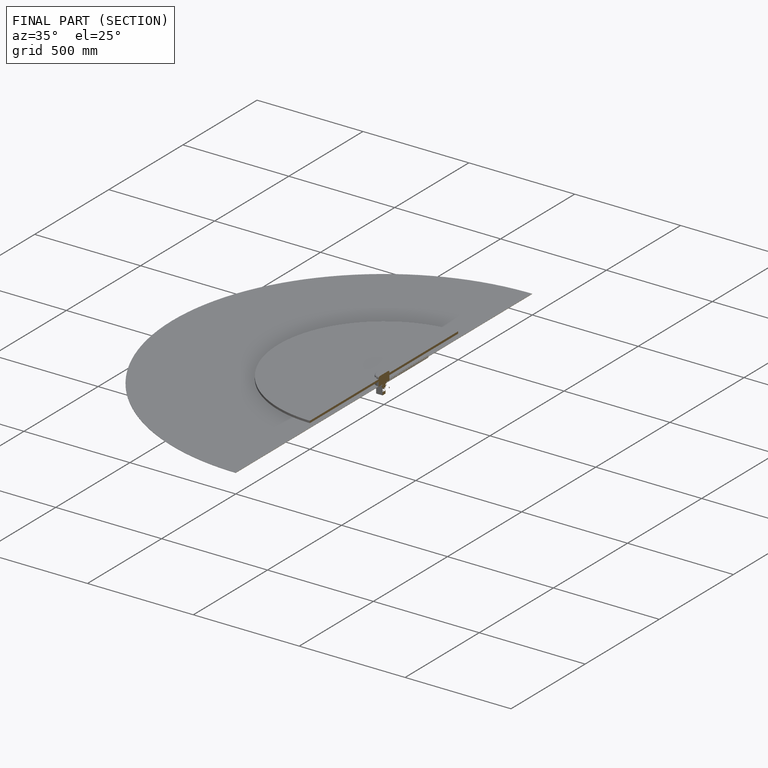
[diagram: finished part — half-section view (interior)]
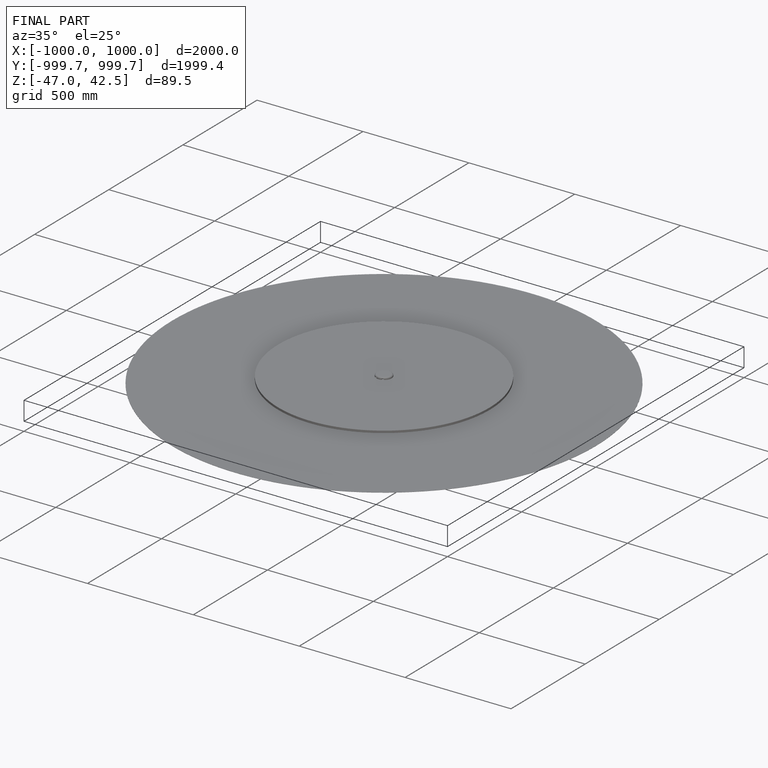
[diagram: finished part — iso view with bounding-box wireframe]
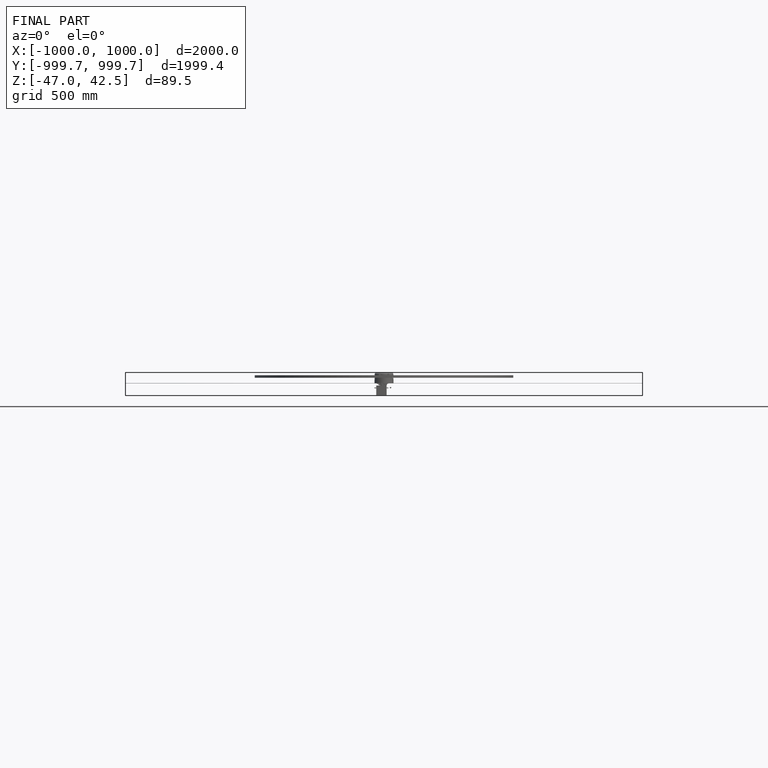
[diagram: finished part — front view with bounding-box wireframe]
